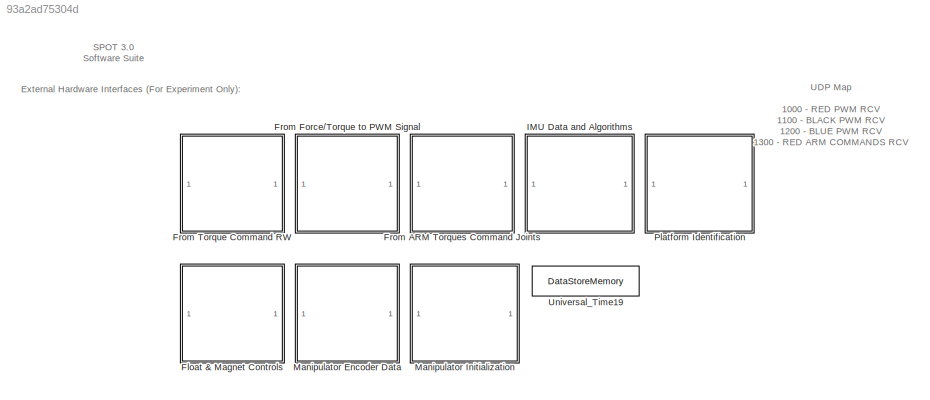
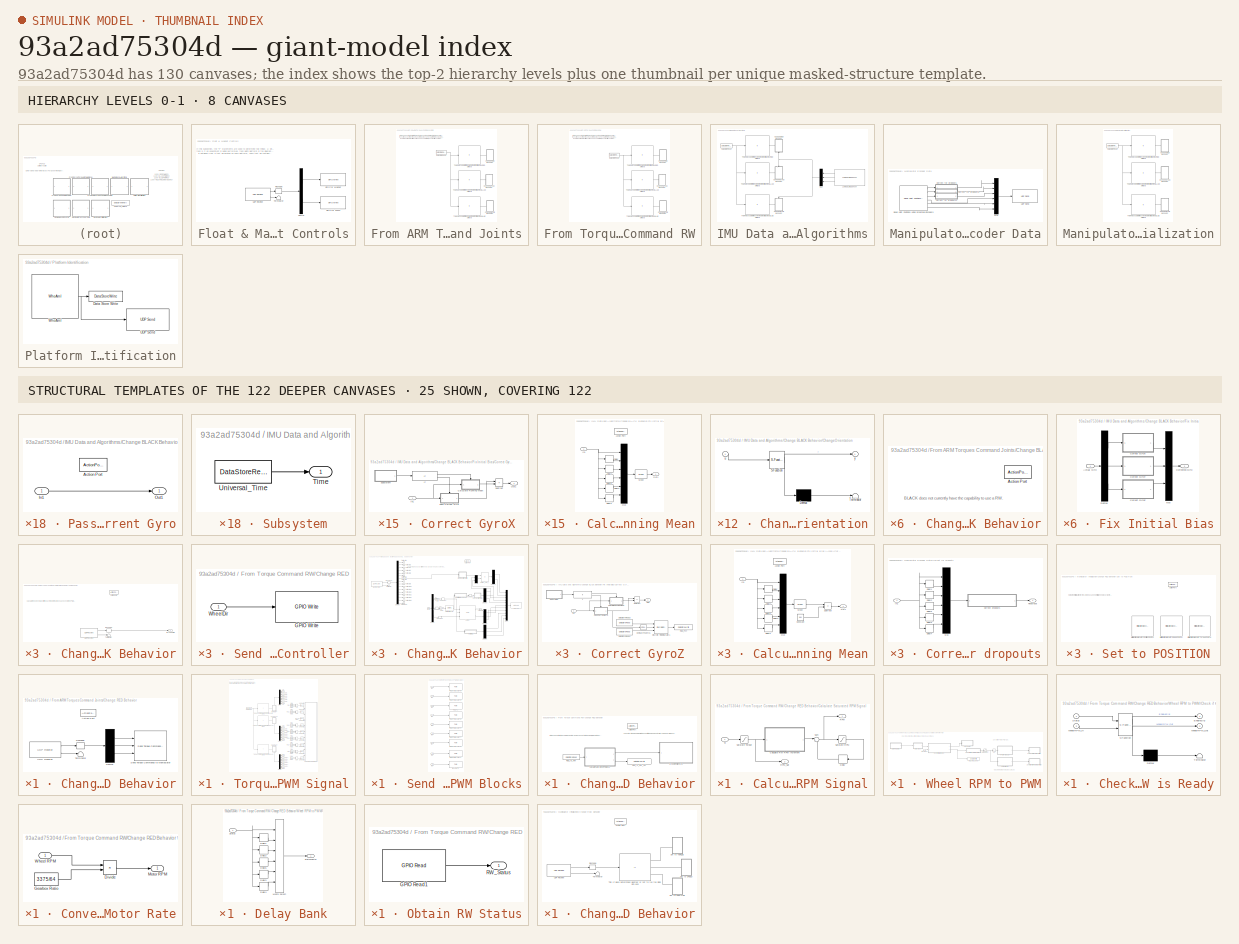
[diagram: thumbnail index - top-2 hierarchy levels (8 canvases) + 25 structural-template representatives of the remaining 122 canvases]
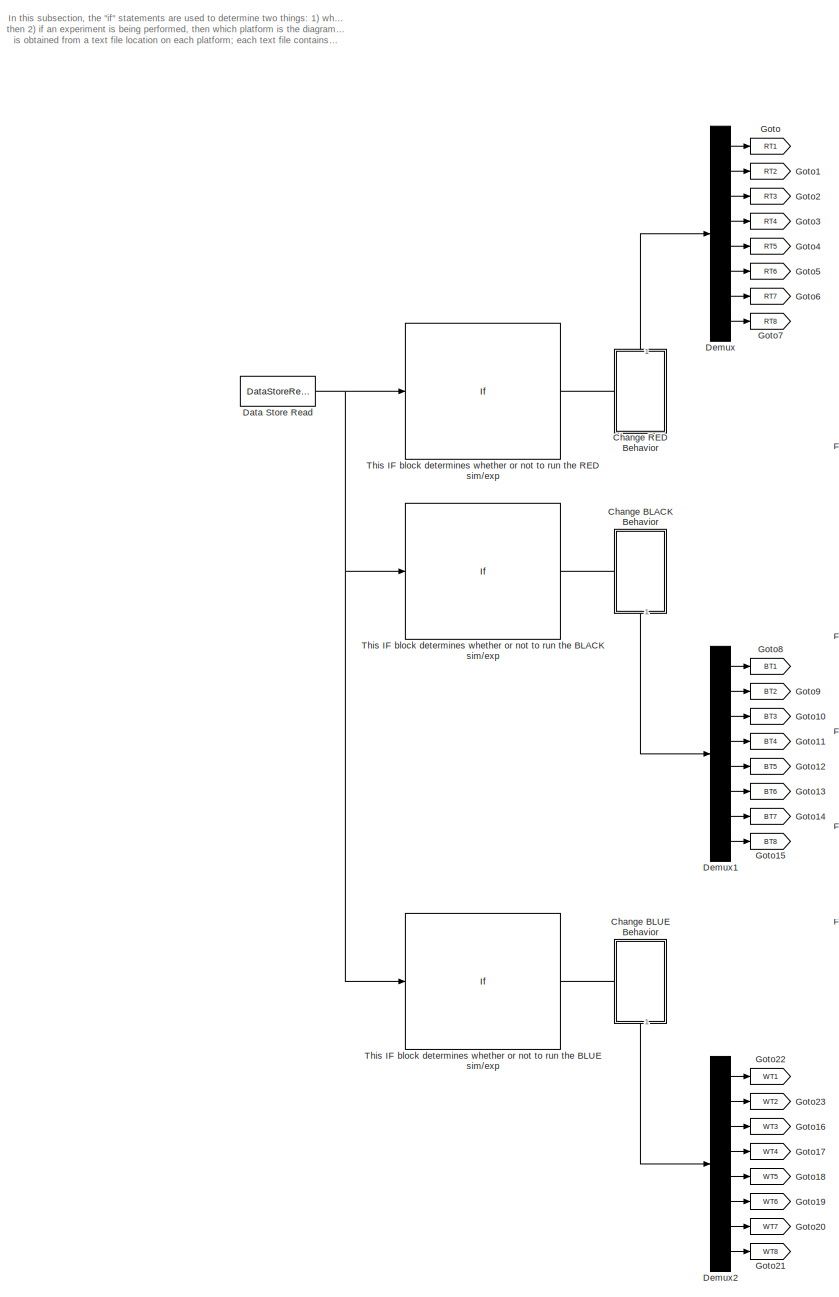
[diagram: From Force/Torque to PWM Signal - part 1/2, left side, full height]
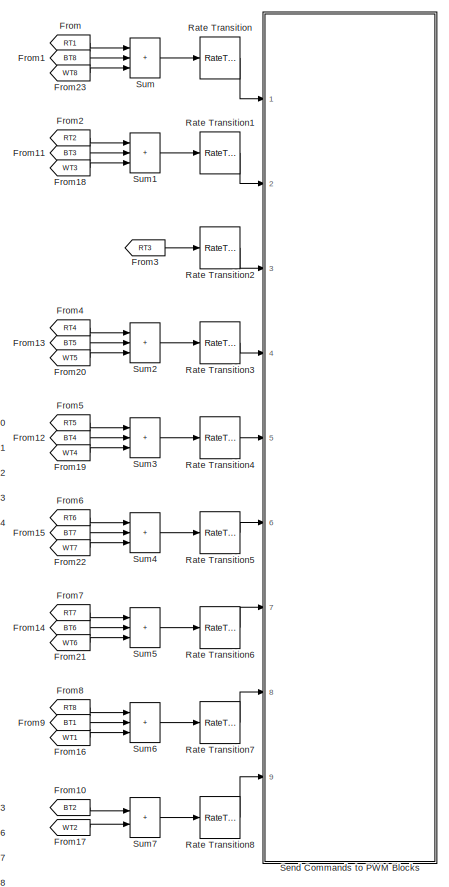
[diagram: From Force/Torque to PWM Signal - part 2/2, middle right region]
MODEL slx_93a2ad75304d
KIND model
CONFIG AbsTol = auto
CONFIG EnableMultiTasking = on
CONFIG FixedStep = baseRate
CONFIG MaxStep = auto
CONFIG MinStep = auto
CONFIG RelTol = 1e-3
CONFIG SampleTimeConstraint = Unconstrained
CONFIG SolverName = FixedStepAuto
CONFIG StartTime = 0.0
CONFIG StopTime = inf
BLOCK [SubSystem] Float & Magnet Controls
  Ports = []
  RequestExecContextInheritance = off
BLOCK [Demux] Float & Magnet Controls/Demux
  Outputs = 2
  Ports = [1, 2]
BLOCK [Reference] Float & Magnet Controls/GPIO for Magnet  REF=embedlinuxBasiclib/GPIO Write
  Ports = [1]
  SourceBlock = embedlinuxBasiclib/GPIO Write
  SourceProductBaseCode = SC_BEAGLEBONE_BLUE,EMBEDDEDLINUX,NVIDIA,RASPPIIO
  SourceType = GPIO Write
BLOCK [Reference] Float & Magnet Controls/GPIO for Pucks  REF=embedlinuxBasiclib/GPIO Write
  Ports = [1]
  SourceBlock = embedlinuxBasiclib/GPIO Write
  SourceProductBaseCode = SC_BEAGLEBONE_BLUE,EMBEDDEDLINUX,NVIDIA,RASPPIIO
  SourceType = GPIO Write
BLOCK [Reshape] Float & Magnet Controls/Reshape
  OutputDimensionality = Customize
  OutputDimensions = [2,1]
  Ports = [1, 1]
BLOCK [Terminator] Float & Magnet Controls/Terminator
BLOCK [Reference] Float & Magnet Controls/UDP Receive  REF=raspberrypiNetworklib/UDP Receive
  Ports = [0, 2]
  SourceBlock = raspberrypiNetworklib/UDP Receive
  SourceProductBaseCode = RASPPI
  SourceType = UDP Receive
BLOCK [SubSystem] From ARM Torques Command Joints
  Ports = []
  RequestExecContextInheritance = off
BLOCK [SubSystem] From ARM Torques Command Joints/Change BLACK Behavior
  NameLocation = right
  Ports = [0, 0, 0, 0, 0, 0, 0, 1]
  RequestExecContextInheritance = off
  TreatAsAtomicUnit = on
BLOCK [ActionPort] From ARM Torques Command Joints/Change BLACK Behavior/Action Port
  ActionPortLabel = if(u1 == 2 )
BLOCK [SubSystem] From ARM Torques Command Joints/Change BLUE Behavior
  NameLocation = right
  Ports = [0, 0, 0, 0, 0, 0, 0, 1]
  RequestExecContextInheritance = off
  TreatAsAtomicUnit = on
BLOCK [ActionPort] From ARM Torques Command Joints/Change BLUE Behavior/Action Port
  ActionPortLabel = if(u1 == 3 )
BLOCK [SubSystem] From ARM Torques Command Joints/Change RED Behavior
  NameLocation = right
  Ports = [0, 0, 0, 0, 0, 0, 0, 1]
  RequestExecContextInheritance = off
  TreatAsAtomicUnit = on
BLOCK [ActionPort] From ARM Torques Command Joints/Change RED Behavior/Action Port
  ActionPortLabel = if(u1 == 1 )
BLOCK [Demux] From ARM Torques Command Joints/Change RED Behavior/Demux
  Outputs = 3
  Ports = [1, 3]
BLOCK [Reshape] From ARM Torques Command Joints/Change RED Behavior/Reshape
  OutputDimensionality = Customize
  OutputDimensions = [3,1]
  Ports = [1, 1]
BLOCK [Reference] From ARM Torques Command Joints/Change RED Behavior/Send Torque Commands to Manipulator  REF=MainLibrary/Dynamixel Functions/Send Torque Commands
to Manipulator
  Ports = [3]
  SourceBlock = MainLibrary/Dynamixel Functions/Send Torque Commands\nto Manipulator
  SourceProductName = SPOT Custom Library
  SourceType = MoveArm_Torque
BLOCK [Terminator] From ARM Torques Command Joints/Change RED Behavior/Terminator
BLOCK [Reference] From ARM Torques Command Joints/Change RED Behavior/UDP Receive  REF=embedlinuxNetworklib/UDP Receive
  Ports = [0, 2]
  SourceBlock = embedlinuxNetworklib/UDP Receive
  SourceProductBaseCode = SC_BEAGLEBONE_BLUE,EMBEDDEDLINUX,NVIDIA,RASPPIIO
  SourceType = UDP Receive
BLOCK [DataStoreRead] From ARM Torques Command Joints/Data Store Read
  DataStoreName = WhoAmI
  IndexOptions = Index vector (dialog)
  Indices = 1
  OutputSizes = 1
  Ports = [0, 1]
BLOCK [If] From ARM Torques Command Joints/This IF block determines whether or not to run the BLACK sim//exp
  IfExpression = u1 == 2
  Ports = [1, 1]
  ShowElse = off
BLOCK [If] From ARM Torques Command Joints/This IF block determines whether or not to run the BLUE sim//exp
  IfExpression = u1 == 3
  Ports = [1, 1]
  ShowElse = off
BLOCK [If] From ARM Torques Command Joints/This IF block determines whether or not to run the RED sim//exp 
  IfExpression = u1 == 1
  Ports = [1, 1]
  ShowElse = off
BLOCK [SubSystem] From Force//Torque to PWM Signal
  Ports = []
  RequestExecContextInheritance = off
  SystemSampleTime = 0.1
BLOCK [SubSystem] From Force//Torque to PWM Signal/Change BLACK Behavior
  NameLocation = right
  Ports = [0, 1, 0, 0, 0, 0, 0, 1]
  RequestExecContextInheritance = off
  TreatAsAtomicUnit = on
BLOCK [ActionPort] From Force//Torque to PWM Signal/Change BLACK Behavior/Action Port
  ActionPortLabel = if(u1 == 2 )
BLOCK [Outport] From Force//Torque to PWM Signal/Change BLACK Behavior/BLACK PWM
  VectorParamsAs1DForOutWhenUnconnected = off
BLOCK [Reshape] From Force//Torque to PWM Signal/Change BLACK Behavior/Reshape
  OutputDimensionality = Customize
  Ports = [1, 1]
BLOCK [Terminator] From Force//Torque to PWM Signal/Change BLACK Behavior/Terminator
BLOCK [Reference] From Force//Torque to PWM Signal/Change BLACK Behavior/UDP Receive  REF=embedlinuxNetworklib/UDP Receive
  Ports = [0, 2]
  SourceBlock = embedlinuxNetworklib/UDP Receive
  SourceProductBaseCode = SC_BEAGLEBONE_BLUE,EMBEDDEDLINUX,NVIDIA,RASPPIIO
  SourceType = UDP Receive
BLOCK [SubSystem] From Force//Torque to PWM Signal/Change BLUE Behavior
  NameLocation = right
  Ports = [0, 1, 0, 0, 0, 0, 0, 1]
  RequestExecContextInheritance = off
  TreatAsAtomicUnit = on
BLOCK [ActionPort] From Force//Torque to PWM Signal/Change BLUE Behavior/Action Port
  ActionPortLabel = if(u1 == 3 )
BLOCK [Outport] From Force//Torque to PWM Signal/Change BLUE Behavior/BLUE PWM
  VectorParamsAs1DForOutWhenUnconnected = off
BLOCK [Reshape] From Force//Torque to PWM Signal/Change BLUE Behavior/Reshape
  OutputDimensionality = Customize
  Ports = [1, 1]
BLOCK [Terminator] From Force//Torque to PWM Signal/Change BLUE Behavior/Terminator
BLOCK [Reference] From Force//Torque to PWM Signal/Change BLUE Behavior/UDP Receive  REF=embedlinuxNetworklib/UDP Receive
  Ports = [0, 2]
  SourceBlock = embedlinuxNetworklib/UDP Receive
  SourceProductBaseCode = SC_BEAGLEBONE_BLUE,EMBEDDEDLINUX,NVIDIA,RASPPIIO
  SourceType = UDP Receive
BLOCK [SubSystem] From Force//Torque to PWM Signal/Change RED Behavior
  NameLocation = right
  Ports = [0, 1, 0, 0, 0, 0, 0, 1]
  RequestExecContextInheritance = off
  TreatAsAtomicUnit = on
BLOCK [ActionPort] From Force//Torque to PWM Signal/Change RED Behavior/Action Port
  ActionPortLabel = if(u1 == 1 )
BLOCK [Outport] From Force//Torque to PWM Signal/Change RED Behavior/RED PWM
  VectorParamsAs1DForOutWhenUnconnected = off
BLOCK [Reshape] From Force//Torque to PWM Signal/Change RED Behavior/Reshape
  OutputDimensionality = Customize
  Ports = [1, 1]
BLOCK [Terminator] From Force//Torque to PWM Signal/Change RED Behavior/Terminator
BLOCK [Reference] From Force//Torque to PWM Signal/Change RED Behavior/UDP Receive  REF=embedlinuxNetworklib/UDP Receive
  Ports = [0, 2]
  SourceBlock = embedlinuxNetworklib/UDP Receive
  SourceProductBaseCode = SC_BEAGLEBONE_BLUE,EMBEDDEDLINUX,NVIDIA,RASPPIIO
  SourceType = UDP Receive
BLOCK [DataStoreRead] From Force//Torque to PWM Signal/Data Store Read
  DataStoreName = WhoAmI
  IndexOptions = Index vector (dialog)
  Indices = 1
  OutputSizes = 1
  Ports = [0, 1]
BLOCK [Demux] From Force//Torque to PWM Signal/Demux
  Outputs = 8
  Ports = [1, 8]
BLOCK [Demux] From Force//Torque to PWM Signal/Demux1
  Outputs = 8
  Ports = [1, 8]
BLOCK [Demux] From Force//Torque to PWM Signal/Demux2
  Outputs = 8
  Ports = [1, 8]
BLOCK [From] From Force//Torque to PWM Signal/From
  GotoTag = RT1
BLOCK [From] From Force//Torque to PWM Signal/From1
  GotoTag = BT8
BLOCK [From] From Force//Torque to PWM Signal/From10
  GotoTag = BT2
BLOCK [From] From Force//Torque to PWM Signal/From11
  GotoTag = BT3
BLOCK [From] From Force//Torque to PWM Signal/From12
  GotoTag = BT4
BLOCK [From] From Force//Torque to PWM Signal/From13
  GotoTag = BT5
BLOCK [From] From Force//Torque to PWM Signal/From14
  GotoTag = BT6
BLOCK [From] From Force//Torque to PWM Signal/From15
  GotoTag = BT7
BLOCK [From] From Force//Torque to PWM Signal/From16
  GotoTag = WT1
BLOCK [From] From Force//Torque to PWM Signal/From17
  GotoTag = WT2
BLOCK [From] From Force//Torque to PWM Signal/From18
  GotoTag = WT3
BLOCK [From] From Force//Torque to PWM Signal/From19
  GotoTag = WT4
BLOCK [From] From Force//Torque to PWM Signal/From2
  GotoTag = RT2
BLOCK [From] From Force//Torque to PWM Signal/From20
  GotoTag = WT5
BLOCK [From] From Force//Torque to PWM Signal/From21
  GotoTag = WT6
BLOCK [From] From Force//Torque to PWM Signal/From22
  GotoTag = WT7
BLOCK [From] From Force//Torque to PWM Signal/From23
  GotoTag = WT8
BLOCK [From] From Force//Torque to PWM Signal/From3
  GotoTag = RT3
BLOCK [From] From Force//Torque to PWM Signal/From4
  GotoTag = RT4
BLOCK [From] From Force//Torque to PWM Signal/From5
  GotoTag = RT5
BLOCK [From] From Force//Torque to PWM Signal/From6
  GotoTag = RT6
BLOCK [From] From Force//Torque to PWM Signal/From7
  GotoTag = RT7
BLOCK [From] From Force//Torque to PWM Signal/From8
  GotoTag = RT8
BLOCK [From] From Force//Torque to PWM Signal/From9
  GotoTag = BT1
BLOCK [Goto] From Force//Torque to PWM Signal/Goto
  GotoTag = RT1
BLOCK [Goto] From Force//Torque to PWM Signal/Goto1
  GotoTag = RT2
BLOCK [Goto] From Force//Torque to PWM Signal/Goto10
  GotoTag = BT3
BLOCK [Goto] From Force//Torque to PWM Signal/Goto11
  GotoTag = BT4
BLOCK [Goto] From Force//Torque to PWM Signal/Goto12
  GotoTag = BT5
BLOCK [Goto] From Force//Torque to PWM Signal/Goto13
  GotoTag = BT6
BLOCK [Goto] From Force//Torque to PWM Signal/Goto14
  GotoTag = BT7
BLOCK [Goto] From Force//Torque to PWM Signal/Goto15
  GotoTag = BT8
BLOCK [Goto] From Force//Torque to PWM Signal/Goto16
  GotoTag = WT3
BLOCK [Goto] From Force//Torque to PWM Signal/Goto17
  GotoTag = WT4
BLOCK [Goto] From Force//Torque to PWM Signal/Goto18
  GotoTag = WT5
BLOCK [Goto] From Force//Torque to PWM Signal/Goto19
  GotoTag = WT6
BLOCK [Goto] From Force//Torque to PWM Signal/Goto2
  GotoTag = RT3
BLOCK [Goto] From Force//Torque to PWM Signal/Goto20
  GotoTag = WT7
BLOCK [Goto] From Force//Torque to PWM Signal/Goto21
  GotoTag = WT8
BLOCK [Goto] From Force//Torque to PWM Signal/Goto22
  GotoTag = WT1
BLOCK [Goto] From Force//Torque to PWM Signal/Goto23
  GotoTag = WT2
BLOCK [Goto] From Force//Torque to PWM Signal/Goto3
  GotoTag = RT4
BLOCK [Goto] From Force//Torque to PWM Signal/Goto4
  GotoTag = RT5
BLOCK [Goto] From Force//Torque to PWM Signal/Goto5
  GotoTag = RT6
BLOCK [Goto] From Force//Torque to PWM Signal/Goto6
  GotoTag = RT7
BLOCK [Goto] From Force//Torque to PWM Signal/Goto7
  GotoTag = RT8
BLOCK [Goto] From Force//Torque to PWM Signal/Goto8
  GotoTag = BT1
BLOCK [Goto] From Force//Torque to PWM Signal/Goto9
  GotoTag = BT2
BLOCK [RateTransition] From Force//Torque to PWM Signal/Rate Transition
  OutPortSampleTime = 0.1
BLOCK [RateTransition] From Force//Torque to PWM Signal/Rate Transition1
  OutPortSampleTime = 0.1
BLOCK [RateTransition] From Force//Torque to PWM Signal/Rate Transition2
  OutPortSampleTime = 0.1
BLOCK [RateTransition] From Force//Torque to PWM Signal/Rate Transition3
  OutPortSampleTime = 0.1
BLOCK [RateTransition] From Force//Torque to PWM Signal/Rate Transition4
  OutPortSampleTime = 0.1
BLOCK [RateTransition] From Force//Torque to PWM Signal/Rate Transition5
  OutPortSampleTime = 0.1
BLOCK [RateTransition] From Force//Torque to PWM Signal/Rate Transition6
  OutPortSampleTime = 0.1
BLOCK [RateTransition] From Force//Torque to PWM Signal/Rate Transition7
  OutPortSampleTime = 0.1
BLOCK [RateTransition] From Force//Torque to PWM Signal/Rate Transition8
  OutPortSampleTime = 0.1
BLOCK [SubSystem] From Force//Torque to PWM Signal/Send Commands to PWM Blocks
  Ports = [9]
  RequestExecContextInheritance = off
  SystemSampleTime = 0.1
  TreatAsAtomicUnit = on
BLOCK [Reference] From Force//Torque to PWM Signal/Send Commands to PWM Blocks/BLACK T2  REF=raspberrypiBasiclib/PWM
  Ports = [1]
  SourceBlock = raspberrypiBasiclib/PWM
  SourceProductBaseCode = RASPPI
  SourceType = raspi.internal.PWMBlock
BLOCK [Inport] From Force//Torque to PWM Signal/Send Commands to PWM Blocks/In1
BLOCK [Inport] From Force//Torque to PWM Signal/Send Commands to PWM Blocks/In2
  Port = 2
BLOCK [Inport] From Force//Torque to PWM Signal/Send Commands to PWM Blocks/In3
  Port = 3
BLOCK [Inport] From Force//Torque to PWM Signal/Send Commands to PWM Blocks/In4
  Port = 4
BLOCK [Inport] From Force//Torque to PWM Signal/Send Commands to PWM Blocks/In5
  Port = 5
BLOCK [Inport] From Force//Torque to PWM Signal/Send Commands to PWM Blocks/In6
  Port = 6
BLOCK [Inport] From Force//Torque to PWM Signal/Send Commands to PWM Blocks/In7
  Port = 7
BLOCK [Inport] From Force//Torque to PWM Signal/Send Commands to PWM Blocks/In8
  Port = 8
BLOCK [Inport] From Force//Torque to PWM Signal/Send Commands to PWM Blocks/In9
  Port = 9
BLOCK [Reference] From Force//Torque to PWM Signal/Send Commands to PWM Blocks/RED T1 - BLACK T8  REF=raspberrypiBasiclib/PWM
  Ports = [1]
  SourceBlock = raspberrypiBasiclib/PWM
  SourceProductBaseCode = RASPPI
  SourceType = raspi.internal.PWMBlock
BLOCK [Reference] From Force//Torque to PWM Signal/Send Commands to PWM Blocks/RED T2 - BLACK T3  REF=raspberrypiBasiclib/PWM
  Ports = [1]
  SourceBlock = raspberrypiBasiclib/PWM
  SourceProductBaseCode = RASPPI
  SourceType = raspi.internal.PWMBlock
BLOCK [Reference] From Force//Torque to PWM Signal/Send Commands to PWM Blocks/RED T3  REF=raspberrypiBasiclib/PWM
  Ports = [1]
  SourceBlock = raspberrypiBasiclib/PWM
  SourceProductBaseCode = RASPPI
  SourceType = raspi.internal.PWMBlock
BLOCK [Reference] From Force//Torque to PWM Signal/Send Commands to PWM Blocks/RED T4 - BLACK T5  REF=raspberrypiBasiclib/PWM
  Ports = [1]
  SourceBlock = raspberrypiBasiclib/PWM
  SourceProductBaseCode = RASPPI
  SourceType = raspi.internal.PWMBlock
BLOCK [Reference] From Force//Torque to PWM Signal/Send Commands to PWM Blocks/RED T5 - BLACK T4  REF=raspberrypiBasiclib/PWM
  Ports = [1]
  SourceBlock = raspberrypiBasiclib/PWM
  SourceProductBaseCode = RASPPI
  SourceType = raspi.internal.PWMBlock
BLOCK [Reference] From Force//Torque to PWM Signal/Send Commands to PWM Blocks/RED T6 - BLACK T7  REF=raspberrypiBasiclib/PWM
  Ports = [1]
  SourceBlock = raspberrypiBasiclib/PWM
  SourceProductBaseCode = RASPPI
  SourceType = raspi.internal.PWMBlock
BLOCK [Reference] From Force//Torque to PWM Signal/Send Commands to PWM Blocks/RED T7 - BLACK T6  REF=raspberrypiBasiclib/PWM
  Ports = [1]
  SourceBlock = raspberrypiBasiclib/PWM
  SourceProductBaseCode = RASPPI
  SourceType = raspi.internal.PWMBlock
BLOCK [Reference] From Force//Torque to PWM Signal/Send Commands to PWM Blocks/RED T8 - BLACK T1  REF=raspberrypiBasiclib/PWM
  Ports = [1]
  SourceBlock = raspberrypiBasiclib/PWM
  SourceProductBaseCode = RASPPI
  SourceType = raspi.internal.PWMBlock
BLOCK [Sum] From Force//Torque to PWM Signal/Sum
  IconShape = rectangular
  Inputs = +++
  Ports = [3, 1]
BLOCK [Sum] From Force//Torque to PWM Signal/Sum1
  IconShape = rectangular
  Inputs = +++
  Ports = [3, 1]
BLOCK [Sum] From Force//Torque to PWM Signal/Sum2
  IconShape = rectangular
  Inputs = +++
  Ports = [3, 1]
BLOCK [Sum] From Force//Torque to PWM Signal/Sum3
  IconShape = rectangular
  Inputs = +++
  Ports = [3, 1]
BLOCK [Sum] From Force//Torque to PWM Signal/Sum4
  IconShape = rectangular
  Inputs = +++
  Ports = [3, 1]
BLOCK [Sum] From Force//Torque to PWM Signal/Sum5
  IconShape = rectangular
  Inputs = +++
  Ports = [3, 1]
BLOCK [Sum] From Force//Torque to PWM Signal/Sum6
  IconShape = rectangular
  Inputs = +++
  Ports = [3, 1]
BLOCK [Sum] From Force//Torque to PWM Signal/Sum7
  IconShape = rectangular
  Ports = [2, 1]
BLOCK [If] From Force//Torque to PWM Signal/This IF block determines whether or not to run the BLACK sim//exp
  IfExpression = u1 == 2
  Ports = [1, 1]
  ShowElse = off
BLOCK [If] From Force//Torque to PWM Signal/This IF block determines whether or not to run the BLUE sim//exp
  IfExpression = u1 == 3
  Ports = [1, 1]
  ShowElse = off
BLOCK [If] From Force//Torque to PWM Signal/This IF block determines whether or not to run the RED sim//exp 
  IfExpression = u1 == 1
  Ports = [1, 1]
  ShowElse = off
BLOCK [SubSystem] From Torque Command RW
  Commented = on
  Ports = []
  RequestExecContextInheritance = off
BLOCK [SubSystem] From Torque Command RW/Change BLACK Behavior
  NameLocation = right
  Ports = [0, 0, 0, 0, 0, 0, 0, 1]
  RequestExecContextInheritance = off
  TreatAsAtomicUnit = on
BLOCK [ActionPort] From Torque Command RW/Change BLACK Behavior/Action Port
  ActionPortLabel = if(u1 == 2 )
BLOCK [SubSystem] From Torque Command RW/Change BLUE Behavior
  NameLocation = right
  Ports = [0, 0, 0, 0, 0, 0, 0, 1]
  RequestExecContextInheritance = off
  TreatAsAtomicUnit = on
BLOCK [ActionPort] From Torque Command RW/Change BLUE Behavior/Action Port
  ActionPortLabel = if(u1 == 3 )
BLOCK [SubSystem] From Torque Command RW/Change RED Behavior
  NameLocation = right
  Ports = [0, 0, 0, 0, 0, 0, 0, 1]
  RequestExecContextInheritance = off
  TreatAsAtomicUnit = on
BLOCK [ActionPort] From Torque Command RW/Change RED Behavior/Action Port
  ActionPortLabel = if(u1 == 1 )
BLOCK [SubSystem] From Torque Command RW/Change RED Behavior/Calculate Saturated RPM Signal
  Ports = [1, 2]
  RequestExecContextInheritance = off
BLOCK [SubSystem] From Torque Command RW/Change RED Behavior/Calculate Saturated RPM Signal/Calculate RW RPM Increment
  ErrorFcn = Stateflow.Translate.translate
  PermitHierarchicalResolution = ExplicitOnly
  Ports = [1, 1]
  RequestExecContextInheritance = off
  SFBlockType = MATLAB Function
  TreatAsAtomicUnit = on
BLOCK [Demux] From Torque Command RW/Change RED Behavior/Calculate Saturated RPM Signal/Calculate RW RPM Increment/ Demux 
  Outputs = 1
  Ports = [1, 1]
BLOCK [S-Function] From Torque Command RW/Change RED Behavior/Calculate Saturated RPM Signal/Calculate RW RPM Increment/ SFunction 
  EnableBusSupport = on
  FunctionName = sf_sfun
  PortCounts = [1 2]
  Ports = [1, 2]
  SFcnIsStateOwnerBlock = off
  SFunctionDeploymentMode = off
  Tag = Stateflow S-Function 68
BLOCK [Terminator] From Torque Command RW/Change RED Behavior/Calculate Saturated RPM Signal/Calculate RW RPM Increment/ Terminator 
BLOCK [Inport] From Torque Command RW/Change RED Behavior/Calculate Saturated RPM Signal/Calculate RW RPM Increment/Tz_Sat
BLOCK [Outport] From Torque Command RW/Change RED Behavior/Calculate Saturated RPM Signal/Calculate RW RPM Increment/dRPM_RW
  VectorParamsAs1DForOutWhenUnconnected = off
BLOCK [Delay] From Torque Command RW/Change RED Behavior/Calculate Saturated RPM Signal/Delay
  DelayLength = 1
  InputPortMap = u0
  Ports = [1, 1]
BLOCK [Outport] From Torque Command RW/Change RED Behavior/Calculate Saturated RPM Signal/RPM
  VectorParamsAs1DForOutWhenUnconnected = off
BLOCK [Outport] From Torque Command RW/Change RED Behavior/Calculate Saturated RPM Signal/RPM_Sat
  Port = 2
  VectorParamsAs1DForOutWhenUnconnected = off
BLOCK [Saturate] From Torque Command RW/Change RED Behavior/Calculate Saturated RPM Signal/Saturate RPM
  LowerLimit = -(7000*64/3375)
  UpperLimit = (7000*64/3375)
BLOCK [Saturate] From Torque Command RW/Change RED Behavior/Calculate Saturated RPM Signal/Saturate Torque
  LowerLimit = -0.1
  UpperLimit = 0.1
BLOCK [Sum] From Torque Command RW/Change RED Behavior/Calculate Saturated RPM Signal/Sum
  Inputs = |++
  Ports = [2, 1]
BLOCK [Inport] From Torque Command RW/Change RED Behavior/Calculate Saturated RPM Signal/Tz
BLOCK [DataStoreRead] From Torque Command RW/Change RED Behavior/RED_Tz_RW
  DataStoreName = RED_Tz_RW
  IndexOptions = Index vector (dialog)
  Indices = 1
  OutputSizes = 1
  Ports = [0, 1]
BLOCK [DataStoreWrite] From Torque Command RW/Change RED Behavior/RED_Tz_RW_Sat
  DataStoreName = RED_Tz_RW_Sat
  IndexOptions = Index vector (dialog)
  Indices = 1
  OutputSizes = 1
  Ports = [1]
BLOCK [SubSystem] From Torque Command RW/Change RED Behavior/Wheel RPM to PWM
  Ports = [1]
  RequestExecContextInheritance = off
BLOCK [Abs] From Torque Command RW/Change RED Behavior/Wheel RPM to PWM/Abs
  SaturateOnIntegerOverflow = off
BLOCK [SubSystem] From Torque Command RW/Change RED Behavior/Wheel RPM to PWM/Check if RW is Ready
  ErrorFcn = Stateflow.Translate.translate
  PermitHierarchicalResolution = ExplicitOnly
  Ports = [2, 2]
  RequestExecContextInheritance = off
  SFBlockType = MATLAB Function
  TreatAsAtomicUnit = on
BLOCK [Demux] From Torque Command RW/Change RED Behavior/Wheel RPM to PWM/Check if RW is Ready/ Demux 
  Outputs = 1
  Ports = [1, 1]
BLOCK [S-Function] From Torque Command RW/Change RED Behavior/Wheel RPM to PWM/Check if RW is Ready/ SFunction 
  EnableBusSupport = on
  FunctionName = sf_sfun
  PortCounts = [2 3]
  Ports = [2, 3]
  SFcnIsStateOwnerBlock = off
  SFunctionDeploymentMode = off
  Tag = Stateflow S-Function 69
BLOCK [Terminator] From Torque Command RW/Change RED Behavior/Wheel RPM to PWM/Check if RW is Ready/ Terminator 
BLOCK [Outport] From Torque Command RW/Change RED Behavior/Wheel RPM to PWM/Check if RW is Ready/EnableSig
  VectorParamsAs1DForOutWhenUnconnected = off
BLOCK [Inport] From Torque Command RW/Change RED Behavior/Wheel RPM to PWM/Check if RW is Ready/Status
BLOCK [Inport] From Torque Command RW/Change RED Behavior/Wheel RPM to PWM/Check if RW is Ready/WheelRPM_In
  Port = 2
BLOCK [Outport] From Torque Command RW/Change RED Behavior/Wheel RPM to PWM/Check if RW is Ready/WheelRPM_Out
  Port = 2
  VectorParamsAs1DForOutWhenUnconnected = off
BLOCK [SubSystem] From Torque Command RW/Change RED Behavior/Wheel RPM to PWM/Convert Wheel Rate to Motor Rate
  Ports = [1, 1]
  RequestExecContextInheritance = off
BLOCK [Product] From Torque Command RW/Change RED Behavior/Wheel RPM to PWM/Convert Wheel Rate to Motor Rate/Divide
  Inputs = **
  Ports = [2, 1]
BLOCK [Constant] From Torque Command RW/Change RED Behavior/Wheel RPM to PWM/Convert Wheel Rate to Motor Rate/Gearbox Ratio
  Value = 3375/64
BLOCK [Outport] From Torque Command RW/Change RED Behavior/Wheel RPM to PWM/Convert Wheel Rate to Motor Rate/Motor RPM
  VectorParamsAs1DForOutWhenUnconnected = off
BLOCK [Inport] From Torque Command RW/Change RED Behavior/Wheel RPM to PWM/Convert Wheel Rate to Motor Rate/Wheel RPM
BLOCK [SubSystem] From Torque Command RW/Change RED Behavior/Wheel RPM to PWM/Delay Bank
  Ports = [1, 1]
  RequestExecContextInheritance = off
BLOCK [Delay] From Torque Command RW/Change RED Behavior/Wheel RPM to PWM/Delay Bank/Delay1
  DelayLength = 1
  InitialCondition = 0
  InputPortMap = u0
  Ports = [1, 1]
BLOCK [Delay] From Torque Command RW/Change RED Behavior/Wheel RPM to PWM/Delay Bank/Delay2
  InitialCondition = 0
  InputPortMap = u0
  Ports = [1, 1]
BLOCK [Delay] From Torque Command RW/Change RED Behavior/Wheel RPM to PWM/Delay Bank/Delay3
  DelayLength = 4
  InitialCondition = 0
  InputPortMap = u0
  Ports = [1, 1]
BLOCK [Delay] From Torque Command RW/Change RED Behavior/Wheel RPM to PWM/Delay Bank/Delay4
  DelayLength = 5
  InitialCondition = 0
  InputPortMap = u0
  Ports = [1, 1]
BLOCK [Delay] From Torque Command RW/Change RED Behavior/Wheel RPM to PWM/Delay Bank/Delay5
  DelayLength = 3
  InitialCondition = 0
  InputPortMap = u0
  Ports = [1, 1]
BLOCK [MinMax] From Torque Command RW/Change RED Behavior/Wheel RPM to PWM/Delay Bank/Mostly zeros?
  Inputs = 6
  Ports = [6, 1]
BLOCK [Inport] From Torque Command RW/Change RED Behavior/Wheel RPM to PWM/Delay Bank/Status
BLOCK [Outport] From Torque Command RW/Change RED Behavior/Wheel RPM to PWM/Delay Bank/StatusVector
  VectorParamsAs1DForOutWhenUnconnected = off
BLOCK [SubSystem] From Torque Command RW/Change RED Behavior/Wheel RPM to PWM/Get RW Direction
  ErrorFcn = Stateflow.Translate.translate
  PermitHierarchicalResolution = ExplicitOnly
  Ports = [1, 1]
  RequestExecContextInheritance = off
  SFBlockType = MATLAB Function
  TreatAsAtomicUnit = on
BLOCK [Demux] From Torque Command RW/Change RED Behavior/Wheel RPM to PWM/Get RW Direction/ Demux 
  Outputs = 1
  Ports = [1, 1]
BLOCK [S-Function] From Torque Command RW/Change RED Behavior/Wheel RPM to PWM/Get RW Direction/ SFunction 
  EnableBusSupport = on
  FunctionName = sf_sfun
  PortCounts = [1 2]
  Ports = [1, 2]
  SFcnIsStateOwnerBlock = off
  SFunctionDeploymentMode = off
  Tag = Stateflow S-Function 70
BLOCK [Terminator] From Torque Command RW/Change RED Behavior/Wheel RPM to PWM/Get RW Direction/ Terminator 
BLOCK [Inport] From Torque Command RW/Change RED Behavior/Wheel RPM to PWM/Get RW Direction/MotorRPM_Sat
BLOCK [Outport] From Torque Command RW/Change RED Behavior/Wheel RPM to PWM/Get RW Direction/WheelDirection
  VectorParamsAs1DForOutWhenUnconnected = off
BLOCK [SubSystem] From Torque Command RW/Change RED Behavior/Wheel RPM to PWM/Obtain RW Status
  Ports = [0, 1]
  RequestExecContextInheritance = off
  TreatAsAtomicUnit = on
BLOCK [Reference] From Torque Command RW/Change RED Behavior/Wheel RPM to PWM/Obtain RW Status/GPIO Read1  REF=embedlinuxBasiclib/GPIO Read
  Ports = [0, 1]
  SourceBlock = embedlinuxBasiclib/GPIO Read
  SourceProductBaseCode = SC_BEAGLEBONE_BLUE,EMBEDDEDLINUX,NVIDIA,RASPPIIO
  SourceType = GPIO Read
BLOCK [Outport] From Torque Command RW/Change RED Behavior/Wheel RPM to PWM/Obtain RW Status/RW_Status
  VectorParamsAs1DForOutWhenUnconnected = off
BLOCK [DataStoreWrite] From Torque Command RW/Change RED Behavior/Wheel RPM to PWM/RED_RW_Speed
  DataStoreName = RED_dRz_RW_Sat
  IndexOptions = Index vector (dialog)
  Indices = 1
  OutputSizes = 1
  Ports = [1]
BLOCK [SubSystem] From Torque Command RW/Change RED Behavior/Wheel RPM to PWM/RPM to PWM Value
  ErrorFcn = Stateflow.Translate.translate
  PermitHierarchicalResolution = ExplicitOnly
  Ports = [1, 1]
  RequestExecContextInheritance = off
  SFBlockType = MATLAB Function
  TreatAsAtomicUnit = on
BLOCK [Demux] From Torque Command RW/Change RED Behavior/Wheel RPM to PWM/RPM to PWM Value/ Demux 
  Outputs = 1
  Ports = [1, 1]
BLOCK [S-Function] From Torque Command RW/Change RED Behavior/Wheel RPM to PWM/RPM to PWM Value/ SFunction 
  EnableBusSupport = on
  FunctionName = sf_sfun
  PortCounts = [1 2]
  Ports = [1, 2]
  SFcnIsStateOwnerBlock = off
  SFunctionDeploymentMode = off
  Tag = Stateflow S-Function 71
BLOCK [Terminator] From Torque Command RW/Change RED Behavior/Wheel RPM to PWM/RPM to PWM Value/ Terminator 
BLOCK [Outport] From Torque Command RW/Change RED Behavior/Wheel RPM to PWM/RPM to PWM Value/MotorPWM
  VectorParamsAs1DForOutWhenUnconnected = off
BLOCK [Inport] From Torque Command RW/Change RED Behavior/Wheel RPM to PWM/RPM to PWM Value/MotorRPM_Sat
BLOCK [Saturate] From Torque Command RW/Change RED Behavior/Wheel RPM to PWM/Saturate Motor
  LowerLimit = -7000
  UpperLimit = 7000
BLOCK [SubSystem] From Torque Command RW/Change RED Behavior/Wheel RPM to PWM/Send Direction to Motor Controller
  Ports = [1]
  RequestExecContextInheritance = off
  TreatAsAtomicUnit = on
BLOCK [Reference] From Torque Command RW/Change RED Behavior/Wheel RPM to PWM/Send Direction to Motor Controller/GPIO Write  REF=embedlinuxBasiclib/GPIO Write
  Ports = [1]
  SourceBlock = embedlinuxBasiclib/GPIO Write
  SourceProductBaseCode = SC_BEAGLEBONE_BLUE,EMBEDDEDLINUX,NVIDIA,RASPPIIO
  SourceType = GPIO Write
BLOCK [Inport] From Torque Command RW/Change RED Behavior/Wheel RPM to PWM/Send Direction to Motor Controller/WheelDir
BLOCK [SubSystem] From Torque Command RW/Change RED Behavior/Wheel RPM to PWM/Send PWM to Motor Controller
  Ports = [1]
  RequestExecContextInheritance = off
  TreatAsAtomicUnit = on
BLOCK [Inport] From Torque Command RW/Change RED Behavior/Wheel RPM to PWM/Send PWM to Motor Controller/MotorPWM
BLOCK [Reference] From Torque Command RW/Change RED Behavior/Wheel RPM to PWM/Send PWM to Motor Controller/PWM1  REF=raspberrypiBasiclib/PWM
  Ports = [1]
  SourceBlock = raspberrypiBasiclib/PWM
  SourceProductBaseCode = RASPPI
  SourceType = raspi.internal.PWMBlock
BLOCK [SubSystem] From Torque Command RW/Change RED Behavior/Wheel RPM to PWM/Turn on Motor
  Ports = [1]
  RequestExecContextInheritance = off
  TreatAsAtomicUnit = on
BLOCK [Inport] From Torque Command RW/Change RED Behavior/Wheel RPM to PWM/Turn on Motor/EnableSig
BLOCK [Reference] From Torque Command RW/Change RED Behavior/Wheel RPM to PWM/Turn on Motor/GPIO Write1  REF=embedlinuxBasiclib/GPIO Write
  Ports = [1]
  SourceBlock = embedlinuxBasiclib/GPIO Write
  SourceProductBaseCode = SC_BEAGLEBONE_BLUE,EMBEDDEDLINUX,NVIDIA,RASPPIIO
  SourceType = GPIO Write
BLOCK [Inport] From Torque Command RW/Change RED Behavior/Wheel RPM to PWM/WheelRPM
BLOCK [DataStoreRead] From Torque Command RW/Data Store Read
  DataStoreName = WhoAmI
  IndexOptions = Index vector (dialog)
  Indices = 1
  OutputSizes = 1
  Ports = [0, 1]
BLOCK [If] From Torque Command RW/This IF block determines whether or not to run the BLACK sim//exp
  IfExpression = u1 == 2
  Ports = [1, 1]
  ShowElse = off
BLOCK [If] From Torque Command RW/This IF block determines whether or not to run the BLUE sim//exp
  IfExpression = u1 == 3
  Ports = [1, 1]
  ShowElse = off
BLOCK [If] From Torque Command RW/This IF block determines whether or not to run the RED sim//exp 
  IfExpression = u1 == 1
  Ports = [1, 1]
  ShowElse = off
BLOCK [SubSystem] IMU Data and Algorithms
  Ports = []
  RequestExecContextInheritance = off
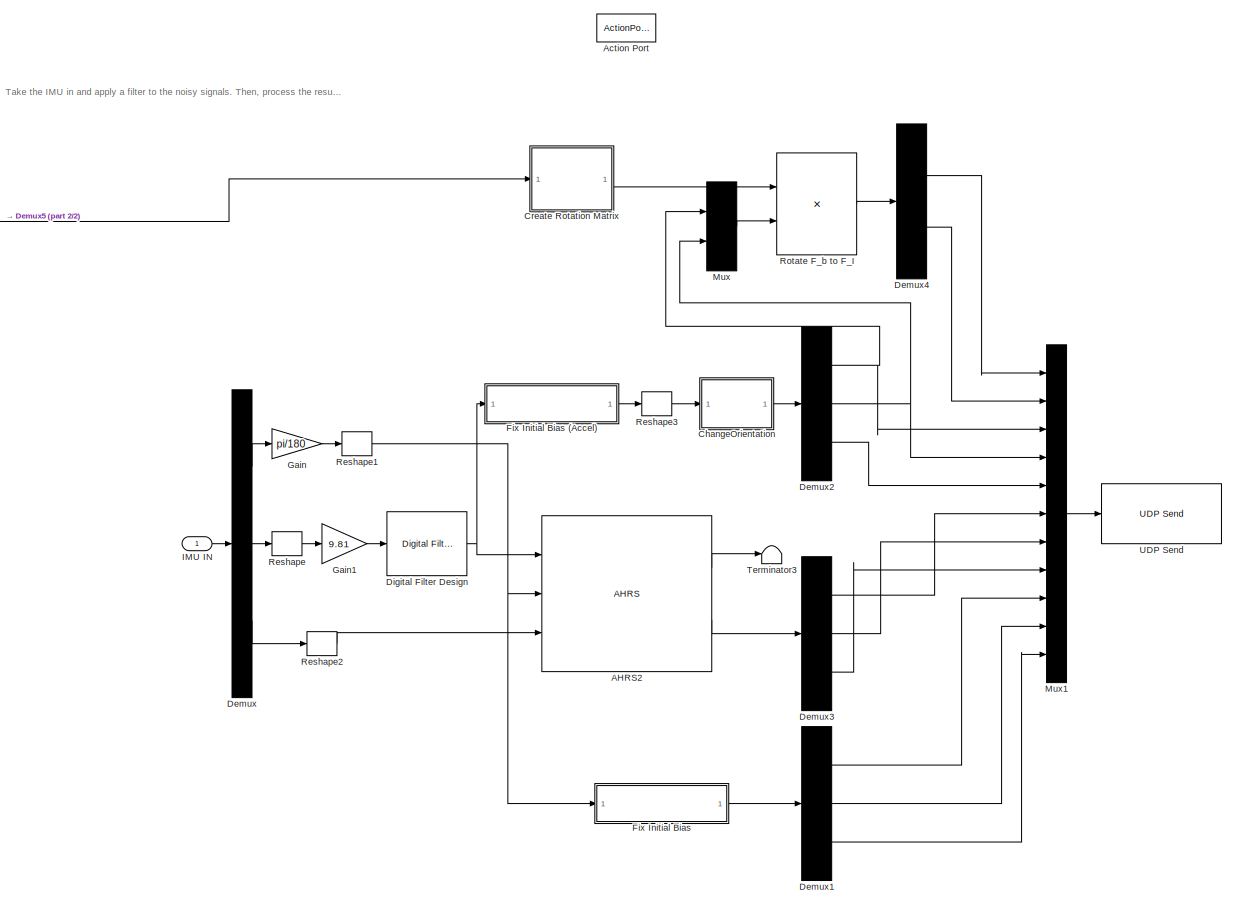
[diagram: IMU Data and Algorithms/Change BLACK Behavior - part 1/2, most of the canvas]
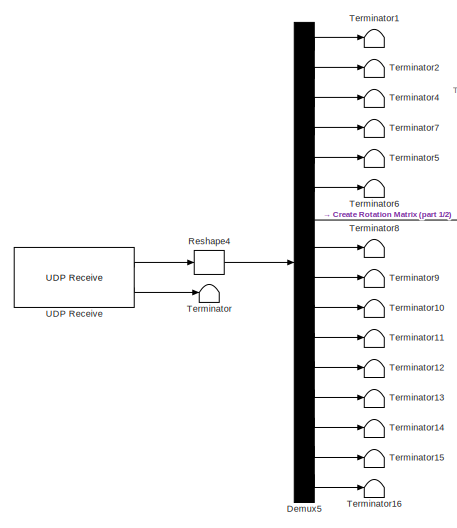
[diagram: IMU Data and Algorithms/Change BLACK Behavior - part 2/2, top left region]
BLOCK [SubSystem] IMU Data and Algorithms/Change BLACK Behavior
  NameLocation = right
  Ports = [1, 0, 0, 0, 0, 0, 0, 1]
  RequestExecContextInheritance = off
  TreatAsAtomicUnit = on
BLOCK [Reference] IMU Data and Algorithms/Change BLACK Behavior/AHRS2  REF=mspfiltlib/AHRS
  Ports = [3, 2]
  SourceBlock = mspfiltlib/AHRS
  SourceProductBaseCode = NV,TF,NV
  SourceType = fusion.simulink.ahrsfilter
BLOCK [ActionPort] IMU Data and Algorithms/Change BLACK Behavior/Action Port
  ActionPortLabel = if(u1 == 2 )
BLOCK [SubSystem] IMU Data and Algorithms/Change BLACK Behavior/ChangeOrientation
  ErrorFcn = Stateflow.Translate.translate
  PermitHierarchicalResolution = ExplicitOnly
  Ports = [1, 1]
  RequestExecContextInheritance = off
  SFBlockType = MATLAB Function
  TreatAsAtomicUnit = on
BLOCK [Demux] IMU Data and Algorithms/Change BLACK Behavior/ChangeOrientation/ Demux 
  Outputs = 1
  Ports = [1, 1]
BLOCK [S-Function] IMU Data and Algorithms/Change BLACK Behavior/ChangeOrientation/ SFunction 
  EnableBusSupport = on
  FunctionName = sf_sfun
  PortCounts = [1 2]
  Ports = [1, 2]
  SFcnIsStateOwnerBlock = off
  SFunctionDeploymentMode = off
  Tag = Stateflow S-Function 78
BLOCK [Terminator] IMU Data and Algorithms/Change BLACK Behavior/ChangeOrientation/ Terminator 
BLOCK [Inport] IMU Data and Algorithms/Change BLACK Behavior/ChangeOrientation/u
BLOCK [Outport] IMU Data and Algorithms/Change BLACK Behavior/ChangeOrientation/y
BLOCK [SubSystem] IMU Data and Algorithms/Change BLACK Behavior/Create Rotation Matrix
  ErrorFcn = Stateflow.Translate.translate
  PermitHierarchicalResolution = ExplicitOnly
  Ports = [1, 1]
  RequestExecContextInheritance = off
  SFBlockType = MATLAB Function
  TreatAsAtomicUnit = on
BLOCK [Demux] IMU Data and Algorithms/Change BLACK Behavior/Create Rotation Matrix/ Demux 
  Outputs = 1
  Ports = [1, 1]
BLOCK [S-Function] IMU Data and Algorithms/Change BLACK Behavior/Create Rotation Matrix/ SFunction 
  EnableBusSupport = on
  FunctionName = sf_sfun
  PortCounts = [1 2]
  Ports = [1, 2]
  SFcnIsStateOwnerBlock = off
  SFunctionDeploymentMode = off
  Tag = Stateflow S-Function 76
BLOCK [Terminator] IMU Data and Algorithms/Change BLACK Behavior/Create Rotation Matrix/ Terminator 
BLOCK [Outport] IMU Data and Algorithms/Change BLACK Behavior/Create Rotation Matrix/C_Ib
  VectorParamsAs1DForOutWhenUnconnected = off
BLOCK [Inport] IMU Data and Algorithms/Change BLACK Behavior/Create Rotation Matrix/Rz
BLOCK [Demux] IMU Data and Algorithms/Change BLACK Behavior/Demux
  Outputs = [3,3,3]
  Ports = [1, 3]
BLOCK [Demux] IMU Data and Algorithms/Change BLACK Behavior/Demux1
  Outputs = 3
  Ports = [1, 3]
BLOCK [Demux] IMU Data and Algorithms/Change BLACK Behavior/Demux2
  Outputs = 3
  Ports = [1, 3]
BLOCK [Demux] IMU Data and Algorithms/Change BLACK Behavior/Demux3
  Outputs = 3
  Ports = [1, 3]
BLOCK [Demux] IMU Data and Algorithms/Change BLACK Behavior/Demux4
  Outputs = 2
  Ports = [1, 2]
BLOCK [Demux] IMU Data and Algorithms/Change BLACK Behavior/Demux5
  Outputs = 16
  Ports = [1, 16]
BLOCK [Reference] IMU Data and Algorithms/Change BLACK Behavior/Digital Filter Design  REF=dsparch4/Digital
Filter Design
  Ports = [1, 1]
  SourceBlock = dsparch4/Digital\nFilter Design
  SourceProductBaseCode = DS
  SourceType = Digital Filter Design
  UserDataPersistent = on
BLOCK [SubSystem] IMU Data and Algorithms/Change BLACK Behavior/Fix Initial Bias
  Ports = [1, 1]
  RequestExecContextInheritance = off
BLOCK [SubSystem] IMU Data and Algorithms/Change BLACK Behavior/Fix Initial Bias (Accel)
  Ports = [1, 1]
  RequestExecContextInheritance = off
BLOCK [Inport] IMU Data and Algorithms/Change BLACK Behavior/Fix Initial Bias (Accel)/Actual Accel
BLOCK [SubSystem] IMU Data and Algorithms/Change BLACK Behavior/Fix Initial Bias (Accel)/Correct AccelX
  Ports = [1, 1]
  RequestExecContextInheritance = off
BLOCK [SubSystem] IMU Data and Algorithms/Change BLACK Behavior/Fix Initial Bias (Accel)/Correct AccelX/Calculate Running Mean
  Ports = [1, 1, 0, 0, 0, 0, 0, 1]
  RequestExecContextInheritance = off
  TreatAsAtomicUnit = on
BLOCK [ActionPort] IMU Data and Algorithms/Change BLACK Behavior/Fix Initial Bias (Accel)/Correct AccelX/Calculate Running Mean/Action Port
  ActionPortLabel = if(u1 < 5)
BLOCK [Delay] IMU Data and Algorithms/Change BLACK Behavior/Fix Initial Bias (Accel)/Correct AccelX/Calculate Running Mean/Delay
  DelayLength = 1
  InputPortMap = u0
  Ports = [1, 1]
BLOCK [Delay] IMU Data and Algorithms/Change BLACK Behavior/Fix Initial Bias (Accel)/Correct AccelX/Calculate Running Mean/Delay1
  InputPortMap = u0
  Ports = [1, 1]
BLOCK [Delay] IMU Data and Algorithms/Change BLACK Behavior/Fix Initial Bias (Accel)/Correct AccelX/Calculate Running Mean/Delay2
  DelayLength = 4
  InputPortMap = u0
  Ports = [1, 1]
BLOCK [Delay] IMU Data and Algorithms/Change BLACK Behavior/Fix Initial Bias (Accel)/Correct AccelX/Calculate Running Mean/Delay3
  DelayLength = 5
  InputPortMap = u0
  Ports = [1, 1]
BLOCK [Delay] IMU Data and Algorithms/Change BLACK Behavior/Fix Initial Bias (Accel)/Correct AccelX/Calculate Running Mean/Delay4
  DelayLength = 3
  InputPortMap = u0
  Ports = [1, 1]
BLOCK [Inport] IMU Data and Algorithms/Change BLACK Behavior/Fix Initial Bias (Accel)/Correct AccelX/Calculate Running Mean/In1
BLOCK [Reference] IMU Data and Algorithms/Change BLACK Behavior/Fix Initial Bias (Accel)/Correct AccelX/Calculate Running Mean/Mean  REF=dspstat3/Mean
  Ports = [1, 1]
  SourceBlock = dspstat3/Mean
  SourceProductBaseCode = DS
  SourceType = Mean
  UserDataPersistent = on
BLOCK [Mux] IMU Data and Algorithms/Change BLACK Behavior/Fix Initial Bias (Accel)/Correct AccelX/Calculate Running Mean/Mux
  DisplayOption = bar
  Inputs = 6
  Ports = [6, 1]
BLOCK [Outport] IMU Data and Algorithms/Change BLACK Behavior/Fix Initial Bias (Accel)/Correct AccelX/Calculate Running Mean/Out1
BLOCK [If] IMU Data and Algorithms/Change BLACK Behavior/Fix Initial Bias (Accel)/Correct AccelX/If
  IfExpression = u1 < 5
  Ports = [1, 2]
BLOCK [Inport] IMU Data and Algorithms/Change BLACK Behavior/Fix Initial Bias (Accel)/Correct AccelX/In1
BLOCK [Outport] IMU Data and Algorithms/Change BLACK Behavior/Fix Initial Bias (Accel)/Correct AccelX/Out1
BLOCK [SubSystem] IMU Data and Algorithms/Change BLACK Behavior/Fix Initial Bias (Accel)/Correct AccelX/Pass Current Accel
  Ports = [1, 1, 0, 0, 0, 0, 0, 1]
  RequestExecContextInheritance = off
  TreatAsAtomicUnit = on
BLOCK [ActionPort] IMU Data and Algorithms/Change BLACK Behavior/Fix Initial Bias (Accel)/Correct AccelX/Pass Current Accel/Action Port
  ActionPortLabel = else
BLOCK [Inport] IMU Data and Algorithms/Change BLACK Behavior/Fix Initial Bias (Accel)/Correct AccelX/Pass Current Accel/In1
BLOCK [Outport] IMU Data and Algorithms/Change BLACK Behavior/Fix Initial Bias (Accel)/Correct AccelX/Pass Current Accel/Out1
BLOCK [SubSystem] IMU Data and Algorithms/Change BLACK Behavior/Fix Initial Bias (Accel)/Correct AccelX/Subsystem
  Ports = [0, 1]
  RequestExecContextInheritance = off
BLOCK [Outport] IMU Data and Algorithms/Change BLACK Behavior/Fix Initial Bias (Accel)/Correct AccelX/Subsystem/Time
  VectorParamsAs1DForOutWhenUnconnected = off
BLOCK [DataStoreRead] IMU Data and Algorithms/Change BLACK Behavior/Fix Initial Bias (Accel)/Correct AccelX/Subsystem/Universal_Time
  DataStoreName = Univ_Time
  IndexOptions = Index vector (dialog)
  Indices = 1
  OutputSizes = 1
  Ports = [0, 1]
BLOCK [Sum] IMU Data and Algorithms/Change BLACK Behavior/Fix Initial Bias (Accel)/Correct AccelX/Subtract
  IconShape = rectangular
  Inputs = +-
  Ports = [2, 1]
BLOCK [SubSystem] IMU Data and Algorithms/Change BLACK Behavior/Fix Initial Bias (Accel)/Correct AccelY
  Ports = [1, 1]
  RequestExecContextInheritance = off
BLOCK [SubSystem] IMU Data and Algorithms/Change BLACK Behavior/Fix Initial Bias (Accel)/Correct AccelY/Calculate Running Mean
  Ports = [1, 1, 0, 0, 0, 0, 0, 1]
  RequestExecContextInheritance = off
  TreatAsAtomicUnit = on
BLOCK [ActionPort] IMU Data and Algorithms/Change BLACK Behavior/Fix Initial Bias (Accel)/Correct AccelY/Calculate Running Mean/Action Port
  ActionPortLabel = if(u1 < 5)
BLOCK [Delay] IMU Data and Algorithms/Change BLACK Behavior/Fix Initial Bias (Accel)/Correct AccelY/Calculate Running Mean/Delay
  DelayLength = 1
  InputPortMap = u0
  Ports = [1, 1]
BLOCK [Delay] IMU Data and Algorithms/Change BLACK Behavior/Fix Initial Bias (Accel)/Correct AccelY/Calculate Running Mean/Delay1
  InputPortMap = u0
  Ports = [1, 1]
BLOCK [Delay] IMU Data and Algorithms/Change BLACK Behavior/Fix Initial Bias (Accel)/Correct AccelY/Calculate Running Mean/Delay2
  DelayLength = 4
  InputPortMap = u0
  Ports = [1, 1]
BLOCK [Delay] IMU Data and Algorithms/Change BLACK Behavior/Fix Initial Bias (Accel)/Correct AccelY/Calculate Running Mean/Delay3
  DelayLength = 5
  InputPortMap = u0
  Ports = [1, 1]
BLOCK [Delay] IMU Data and Algorithms/Change BLACK Behavior/Fix Initial Bias (Accel)/Correct AccelY/Calculate Running Mean/Delay4
  DelayLength = 3
  InputPortMap = u0
  Ports = [1, 1]
BLOCK [Inport] IMU Data and Algorithms/Change BLACK Behavior/Fix Initial Bias (Accel)/Correct AccelY/Calculate Running Mean/In1
BLOCK [Reference] IMU Data and Algorithms/Change BLACK Behavior/Fix Initial Bias (Accel)/Correct AccelY/Calculate Running Mean/Mean  REF=dspstat3/Mean
  Ports = [1, 1]
  SourceBlock = dspstat3/Mean
  SourceProductBaseCode = DS
  SourceType = Mean
  UserDataPersistent = on
BLOCK [Mux] IMU Data and Algorithms/Change BLACK Behavior/Fix Initial Bias (Accel)/Correct AccelY/Calculate Running Mean/Mux
  DisplayOption = bar
  Inputs = 6
  Ports = [6, 1]
BLOCK [Outport] IMU Data and Algorithms/Change BLACK Behavior/Fix Initial Bias (Accel)/Correct AccelY/Calculate Running Mean/Out1
BLOCK [If] IMU Data and Algorithms/Change BLACK Behavior/Fix Initial Bias (Accel)/Correct AccelY/If
  IfExpression = u1 < 5
  Ports = [1, 2]
BLOCK [Inport] IMU Data and Algorithms/Change BLACK Behavior/Fix Initial Bias (Accel)/Correct AccelY/In1
BLOCK [Outport] IMU Data and Algorithms/Change BLACK Behavior/Fix Initial Bias (Accel)/Correct AccelY/Out1
BLOCK [SubSystem] IMU Data and Algorithms/Change BLACK Behavior/Fix Initial Bias (Accel)/Correct AccelY/Pass Current Accel
  Ports = [1, 1, 0, 0, 0, 0, 0, 1]
  RequestExecContextInheritance = off
  TreatAsAtomicUnit = on
BLOCK [ActionPort] IMU Data and Algorithms/Change BLACK Behavior/Fix Initial Bias (Accel)/Correct AccelY/Pass Current Accel/Action Port
  ActionPortLabel = else
BLOCK [Inport] IMU Data and Algorithms/Change BLACK Behavior/Fix Initial Bias (Accel)/Correct AccelY/Pass Current Accel/In1
BLOCK [Outport] IMU Data and Algorithms/Change BLACK Behavior/Fix Initial Bias (Accel)/Correct AccelY/Pass Current Accel/Out1
BLOCK [SubSystem] IMU Data and Algorithms/Change BLACK Behavior/Fix Initial Bias (Accel)/Correct AccelY/Subsystem
  Ports = [0, 1]
  RequestExecContextInheritance = off
BLOCK [Outport] IMU Data and Algorithms/Change BLACK Behavior/Fix Initial Bias (Accel)/Correct AccelY/Subsystem/Time
  VectorParamsAs1DForOutWhenUnconnected = off
BLOCK [DataStoreRead] IMU Data and Algorithms/Change BLACK Behavior/Fix Initial Bias (Accel)/Correct AccelY/Subsystem/Universal_Time
  DataStoreName = Univ_Time
  IndexOptions = Index vector (dialog)
  Indices = 1
  OutputSizes = 1
  Ports = [0, 1]
BLOCK [Sum] IMU Data and Algorithms/Change BLACK Behavior/Fix Initial Bias (Accel)/Correct AccelY/Subtract
  IconShape = rectangular
  Inputs = +-
  Ports = [2, 1]
BLOCK [SubSystem] IMU Data and Algorithms/Change BLACK Behavior/Fix Initial Bias (Accel)/Correct AccelZ
  Ports = [1, 1]
  RequestExecContextInheritance = off
BLOCK [SubSystem] IMU Data and Algorithms/Change BLACK Behavior/Fix Initial Bias (Accel)/Correct AccelZ/Calculate Running Mean
  Ports = [1, 1, 0, 0, 0, 0, 0, 1]
  RequestExecContextInheritance = off
  TreatAsAtomicUnit = on
BLOCK [ActionPort] IMU Data and Algorithms/Change BLACK Behavior/Fix Initial Bias (Accel)/Correct AccelZ/Calculate Running Mean/Action Port
  ActionPortLabel = if(u1 < 5)
BLOCK [Constant] IMU Data and Algorithms/Change BLACK Behavior/Fix Initial Bias (Accel)/Correct AccelZ/Calculate Running Mean/Constant
  Value = 9.81
BLOCK [Delay] IMU Data and Algorithms/Change BLACK Behavior/Fix Initial Bias (Accel)/Correct AccelZ/Calculate Running Mean/Delay
  DelayLength = 1
  InputPortMap = u0
  Ports = [1, 1]
BLOCK [Delay] IMU Data and Algorithms/Change BLACK Behavior/Fix Initial Bias (Accel)/Correct AccelZ/Calculate Running Mean/Delay1
  InputPortMap = u0
  Ports = [1, 1]
BLOCK [Delay] IMU Data and Algorithms/Change BLACK Behavior/Fix Initial Bias (Accel)/Correct AccelZ/Calculate Running Mean/Delay2
  DelayLength = 4
  InputPortMap = u0
  Ports = [1, 1]
BLOCK [Delay] IMU Data and Algorithms/Change BLACK Behavior/Fix Initial Bias (Accel)/Correct AccelZ/Calculate Running Mean/Delay3
  DelayLength = 5
  InputPortMap = u0
  Ports = [1, 1]
BLOCK [Delay] IMU Data and Algorithms/Change BLACK Behavior/Fix Initial Bias (Accel)/Correct AccelZ/Calculate Running Mean/Delay4
  DelayLength = 3
  InputPortMap = u0
  Ports = [1, 1]
BLOCK [Inport] IMU Data and Algorithms/Change BLACK Behavior/Fix Initial Bias (Accel)/Correct AccelZ/Calculate Running Mean/In1
BLOCK [Reference] IMU Data and Algorithms/Change BLACK Behavior/Fix Initial Bias (Accel)/Correct AccelZ/Calculate Running Mean/Mean  REF=dspstat3/Mean
  Ports = [1, 1]
  SourceBlock = dspstat3/Mean
  SourceProductBaseCode = DS
  SourceType = Mean
  UserDataPersistent = on
BLOCK [Mux] IMU Data and Algorithms/Change BLACK Behavior/Fix Initial Bias (Accel)/Correct AccelZ/Calculate Running Mean/Mux
  DisplayOption = bar
  Inputs = 6
  Ports = [6, 1]
BLOCK [Outport] IMU Data and Algorithms/Change BLACK Behavior/Fix Initial Bias (Accel)/Correct AccelZ/Calculate Running Mean/Out1
BLOCK [Sum] IMU Data and Algorithms/Change BLACK Behavior/Fix Initial Bias (Accel)/Correct AccelZ/Calculate Running Mean/Subtract
  IconShape = rectangular
  Inputs = +-
  Ports = [2, 1]
BLOCK [If] IMU Data and Algorithms/Change BLACK Behavior/Fix Initial Bias (Accel)/Correct AccelZ/If
  IfExpression = u1 < 5
  Ports = [1, 2]
BLOCK [Inport] IMU Data and Algorithms/Change BLACK Behavior/Fix Initial Bias (Accel)/Correct AccelZ/In1
BLOCK [Outport] IMU Data and Algorithms/Change BLACK Behavior/Fix Initial Bias (Accel)/Correct AccelZ/Out1
BLOCK [SubSystem] IMU Data and Algorithms/Change BLACK Behavior/Fix Initial Bias (Accel)/Correct AccelZ/Pass Current Accel
  Ports = [1, 1, 0, 0, 0, 0, 0, 1]
  RequestExecContextInheritance = off
  TreatAsAtomicUnit = on
BLOCK [ActionPort] IMU Data and Algorithms/Change BLACK Behavior/Fix Initial Bias (Accel)/Correct AccelZ/Pass Current Accel/Action Port
  ActionPortLabel = else
BLOCK [Inport] IMU Data and Algorithms/Change BLACK Behavior/Fix Initial Bias (Accel)/Correct AccelZ/Pass Current Accel/In1
BLOCK [Outport] IMU Data and Algorithms/Change BLACK Behavior/Fix Initial Bias (Accel)/Correct AccelZ/Pass Current Accel/Out1
BLOCK [SubSystem] IMU Data and Algorithms/Change BLACK Behavior/Fix Initial Bias (Accel)/Correct AccelZ/Subsystem
  Ports = [0, 1]
  RequestExecContextInheritance = off
BLOCK [Outport] IMU Data and Algorithms/Change BLACK Behavior/Fix Initial Bias (Accel)/Correct AccelZ/Subsystem/Time
  VectorParamsAs1DForOutWhenUnconnected = off
BLOCK [DataStoreRead] IMU Data and Algorithms/Change BLACK Behavior/Fix Initial Bias (Accel)/Correct AccelZ/Subsystem/Universal_Time
  DataStoreName = Univ_Time
  IndexOptions = Index vector (dialog)
  Indices = 1
  OutputSizes = 1
  Ports = [0, 1]
BLOCK [Sum] IMU Data and Algorithms/Change BLACK Behavior/Fix Initial Bias (Accel)/Correct AccelZ/Subtract
  IconShape = rectangular
  Inputs = +-
  Ports = [2, 1]
BLOCK [Outport] IMU Data and Algorithms/Change BLACK Behavior/Fix Initial Bias (Accel)/Corrected Accel
  VectorParamsAs1DForOutWhenUnconnected = off
BLOCK [Demux] IMU Data and Algorithms/Change BLACK Behavior/Fix Initial Bias (Accel)/Demux
  Outputs = 3
  Ports = [1, 3]
BLOCK [Mux] IMU Data and Algorithms/Change BLACK Behavior/Fix Initial Bias (Accel)/Mux
  DisplayOption = bar
  Inputs = 3
  Ports = [3, 1]
BLOCK [Inport] IMU Data and Algorithms/Change BLACK Behavior/Fix Initial Bias/Actual Gyro
BLOCK [SubSystem] IMU Data and Algorithms/Change BLACK Behavior/Fix Initial Bias/Correct GyroX
  Ports = [1, 1]
  RequestExecContextInheritance = off
BLOCK [SubSystem] IMU Data and Algorithms/Change BLACK Behavior/Fix Initial Bias/Correct GyroX/Calculate Running Mean
  Ports = [1, 1, 0, 0, 0, 0, 0, 1]
  RequestExecContextInheritance = off
  TreatAsAtomicUnit = on
BLOCK [ActionPort] IMU Data and Algorithms/Change BLACK Behavior/Fix Initial Bias/Correct GyroX/Calculate Running Mean/Action Port
  ActionPortLabel = if(u1 < 5)
BLOCK [Delay] IMU Data and Algorithms/Change BLACK Behavior/Fix Initial Bias/Correct GyroX/Calculate Running Mean/Delay
  DelayLength = 1
  InputPortMap = u0
  Ports = [1, 1]
BLOCK [Delay] IMU Data and Algorithms/Change BLACK Behavior/Fix Initial Bias/Correct GyroX/Calculate Running Mean/Delay1
  InputPortMap = u0
  Ports = [1, 1]
BLOCK [Delay] IMU Data and Algorithms/Change BLACK Behavior/Fix Initial Bias/Correct GyroX/Calculate Running Mean/Delay2
  DelayLength = 4
  InputPortMap = u0
  Ports = [1, 1]
BLOCK [Delay] IMU Data and Algorithms/Change BLACK Behavior/Fix Initial Bias/Correct GyroX/Calculate Running Mean/Delay3
  DelayLength = 5
  InputPortMap = u0
  Ports = [1, 1]
BLOCK [Delay] IMU Data and Algorithms/Change BLACK Behavior/Fix Initial Bias/Correct GyroX/Calculate Running Mean/Delay4
  DelayLength = 3
  InputPortMap = u0
  Ports = [1, 1]
BLOCK [Inport] IMU Data and Algorithms/Change BLACK Behavior/Fix Initial Bias/Correct GyroX/Calculate Running Mean/In1
BLOCK [Reference] IMU Data and Algorithms/Change BLACK Behavior/Fix Initial Bias/Correct GyroX/Calculate Running Mean/Mean  REF=dspstat3/Mean
  Ports = [1, 1]
  SourceBlock = dspstat3/Mean
  SourceProductBaseCode = DS
  SourceType = Mean
  UserDataPersistent = on
BLOCK [Mux] IMU Data and Algorithms/Change BLACK Behavior/Fix Initial Bias/Correct GyroX/Calculate Running Mean/Mux
  DisplayOption = bar
  Inputs = 6
  Ports = [6, 1]
BLOCK [Outport] IMU Data and Algorithms/Change BLACK Behavior/Fix Initial Bias/Correct GyroX/Calculate Running Mean/Out1
BLOCK [If] IMU Data and Algorithms/Change BLACK Behavior/Fix Initial Bias/Correct GyroX/If
  IfExpression = u1 < 5
  Ports = [1, 2]
BLOCK [Inport] IMU Data and Algorithms/Change BLACK Behavior/Fix Initial Bias/Correct GyroX/In1
BLOCK [Outport] IMU Data and Algorithms/Change BLACK Behavior/Fix Initial Bias/Correct GyroX/Out1
BLOCK [SubSystem] IMU Data and Algorithms/Change BLACK Behavior/Fix Initial Bias/Correct GyroX/Pass Current Gyro
  Ports = [1, 1, 0, 0, 0, 0, 0, 1]
  RequestExecContextInheritance = off
  TreatAsAtomicUnit = on
BLOCK [ActionPort] IMU Data and Algorithms/Change BLACK Behavior/Fix Initial Bias/Correct GyroX/Pass Current Gyro/Action Port
  ActionPortLabel = else
BLOCK [Inport] IMU Data and Algorithms/Change BLACK Behavior/Fix Initial Bias/Correct GyroX/Pass Current Gyro/In1
BLOCK [Outport] IMU Data and Algorithms/Change BLACK Behavior/Fix Initial Bias/Correct GyroX/Pass Current Gyro/Out1
BLOCK [SubSystem] IMU Data and Algorithms/Change BLACK Behavior/Fix Initial Bias/Correct GyroX/Subsystem
  Ports = [0, 1]
  RequestExecContextInheritance = off
BLOCK [Outport] IMU Data and Algorithms/Change BLACK Behavior/Fix Initial Bias/Correct GyroX/Subsystem/Time
  VectorParamsAs1DForOutWhenUnconnected = off
BLOCK [DataStoreRead] IMU Data and Algorithms/Change BLACK Behavior/Fix Initial Bias/Correct GyroX/Subsystem/Universal_Time
  DataStoreName = Univ_Time
  IndexOptions = Index vector (dialog)
  Indices = 1
  OutputSizes = 1
  Ports = [0, 1]
BLOCK [Sum] IMU Data and Algorithms/Change BLACK Behavior/Fix Initial Bias/Correct GyroX/Subtract
  IconShape = rectangular
  Inputs = +-
  Ports = [2, 1]
BLOCK [SubSystem] IMU Data and Algorithms/Change BLACK Behavior/Fix Initial Bias/Correct GyroY
  Ports = [1, 1]
  RequestExecContextInheritance = off
BLOCK [SubSystem] IMU Data and Algorithms/Change BLACK Behavior/Fix Initial Bias/Correct GyroY/Calculate Running Mean
  Ports = [1, 1, 0, 0, 0, 0, 0, 1]
  RequestExecContextInheritance = off
  TreatAsAtomicUnit = on
BLOCK [ActionPort] IMU Data and Algorithms/Change BLACK Behavior/Fix Initial Bias/Correct GyroY/Calculate Running Mean/Action Port
  ActionPortLabel = if(u1 < 5)
BLOCK [Delay] IMU Data and Algorithms/Change BLACK Behavior/Fix Initial Bias/Correct GyroY/Calculate Running Mean/Delay
  DelayLength = 1
  InputPortMap = u0
  Ports = [1, 1]
BLOCK [Delay] IMU Data and Algorithms/Change BLACK Behavior/Fix Initial Bias/Correct GyroY/Calculate Running Mean/Delay1
  InputPortMap = u0
  Ports = [1, 1]
BLOCK [Delay] IMU Data and Algorithms/Change BLACK Behavior/Fix Initial Bias/Correct GyroY/Calculate Running Mean/Delay2
  DelayLength = 4
  InputPortMap = u0
  Ports = [1, 1]
BLOCK [Delay] IMU Data and Algorithms/Change BLACK Behavior/Fix Initial Bias/Correct GyroY/Calculate Running Mean/Delay3
  DelayLength = 5
  InputPortMap = u0
  Ports = [1, 1]
BLOCK [Delay] IMU Data and Algorithms/Change BLACK Behavior/Fix Initial Bias/Correct GyroY/Calculate Running Mean/Delay4
  DelayLength = 3
  InputPortMap = u0
  Ports = [1, 1]
BLOCK [Inport] IMU Data and Algorithms/Change BLACK Behavior/Fix Initial Bias/Correct GyroY/Calculate Running Mean/In1
BLOCK [Reference] IMU Data and Algorithms/Change BLACK Behavior/Fix Initial Bias/Correct GyroY/Calculate Running Mean/Mean  REF=dspstat3/Mean
  Ports = [1, 1]
  SourceBlock = dspstat3/Mean
  SourceProductBaseCode = DS
  SourceType = Mean
  UserDataPersistent = on
BLOCK [Mux] IMU Data and Algorithms/Change BLACK Behavior/Fix Initial Bias/Correct GyroY/Calculate Running Mean/Mux
  DisplayOption = bar
  Inputs = 6
  Ports = [6, 1]
BLOCK [Outport] IMU Data and Algorithms/Change BLACK Behavior/Fix Initial Bias/Correct GyroY/Calculate Running Mean/Out1
BLOCK [If] IMU Data and Algorithms/Change BLACK Behavior/Fix Initial Bias/Correct GyroY/If
  IfExpression = u1 < 5
  Ports = [1, 2]
BLOCK [Inport] IMU Data and Algorithms/Change BLACK Behavior/Fix Initial Bias/Correct GyroY/In1
BLOCK [Outport] IMU Data and Algorithms/Change BLACK Behavior/Fix Initial Bias/Correct GyroY/Out1
BLOCK [SubSystem] IMU Data and Algorithms/Change BLACK Behavior/Fix Initial Bias/Correct GyroY/Pass Current Gyro
  Ports = [1, 1, 0, 0, 0, 0, 0, 1]
  RequestExecContextInheritance = off
  TreatAsAtomicUnit = on
BLOCK [ActionPort] IMU Data and Algorithms/Change BLACK Behavior/Fix Initial Bias/Correct GyroY/Pass Current Gyro/Action Port
  ActionPortLabel = else
BLOCK [Inport] IMU Data and Algorithms/Change BLACK Behavior/Fix Initial Bias/Correct GyroY/Pass Current Gyro/In1
BLOCK [Outport] IMU Data and Algorithms/Change BLACK Behavior/Fix Initial Bias/Correct GyroY/Pass Current Gyro/Out1
BLOCK [SubSystem] IMU Data and Algorithms/Change BLACK Behavior/Fix Initial Bias/Correct GyroY/Subsystem
  Ports = [0, 1]
  RequestExecContextInheritance = off
BLOCK [Outport] IMU Data and Algorithms/Change BLACK Behavior/Fix Initial Bias/Correct GyroY/Subsystem/Time
  VectorParamsAs1DForOutWhenUnconnected = off
BLOCK [DataStoreRead] IMU Data and Algorithms/Change BLACK Behavior/Fix Initial Bias/Correct GyroY/Subsystem/Universal_Time
  DataStoreName = Univ_Time
  IndexOptions = Index vector (dialog)
  Indices = 1
  OutputSizes = 1
  Ports = [0, 1]
BLOCK [Sum] IMU Data and Algorithms/Change BLACK Behavior/Fix Initial Bias/Correct GyroY/Subtract
  IconShape = rectangular
  Inputs = +-
  Ports = [2, 1]
BLOCK [SubSystem] IMU Data and Algorithms/Change BLACK Behavior/Fix Initial Bias/Correct GyroZ
  Ports = [1, 1]
  RequestExecContextInheritance = off
BLOCK [SubSystem] IMU Data and Algorithms/Change BLACK Behavior/Fix Initial Bias/Correct GyroZ/Calculate Running Mean
  Ports = [1, 1, 0, 0, 0, 0, 0, 1]
  RequestExecContextInheritance = off
  TreatAsAtomicUnit = on
BLOCK [ActionPort] IMU Data and Algorithms/Change BLACK Behavior/Fix Initial Bias/Correct GyroZ/Calculate Running Mean/Action Port
  ActionPortLabel = if(u1 < 5)
BLOCK [Delay] IMU Data and Algorithms/Change BLACK Behavior/Fix Initial Bias/Correct GyroZ/Calculate Running Mean/Delay
  DelayLength = 1
  InputPortMap = u0
  Ports = [1, 1]
BLOCK [Delay] IMU Data and Algorithms/Change BLACK Behavior/Fix Initial Bias/Correct GyroZ/Calculate Running Mean/Delay1
  InputPortMap = u0
  Ports = [1, 1]
BLOCK [Delay] IMU Data and Algorithms/Change BLACK Behavior/Fix Initial Bias/Correct GyroZ/Calculate Running Mean/Delay2
  DelayLength = 4
  InputPortMap = u0
  Ports = [1, 1]
BLOCK [Delay] IMU Data and Algorithms/Change BLACK Behavior/Fix Initial Bias/Correct GyroZ/Calculate Running Mean/Delay3
  DelayLength = 5
  InputPortMap = u0
  Ports = [1, 1]
BLOCK [Delay] IMU Data and Algorithms/Change BLACK Behavior/Fix Initial Bias/Correct GyroZ/Calculate Running Mean/Delay4
  DelayLength = 3
  InputPortMap = u0
  Ports = [1, 1]
BLOCK [Inport] IMU Data and Algorithms/Change BLACK Behavior/Fix Initial Bias/Correct GyroZ/Calculate Running Mean/In1
BLOCK [Reference] IMU Data and Algorithms/Change BLACK Behavior/Fix Initial Bias/Correct GyroZ/Calculate Running Mean/Mean  REF=dspstat3/Mean
  Ports = [1, 1]
  SourceBlock = dspstat3/Mean
  SourceProductBaseCode = DS
  SourceType = Mean
  UserDataPersistent = on
BLOCK [Mux] IMU Data and Algorithms/Change BLACK Behavior/Fix Initial Bias/Correct GyroZ/Calculate Running Mean/Mux
  DisplayOption = bar
  Inputs = 6
  Ports = [6, 1]
BLOCK [Outport] IMU Data and Algorithms/Change BLACK Behavior/Fix Initial Bias/Correct GyroZ/Calculate Running Mean/Out1
BLOCK [Reference] IMU Data and Algorithms/Change BLACK Behavior/Fix Initial Bias/Correct GyroZ/Compare To Zero1  REF=simulink/Logic and Bit
Operations/Compare
To Zero
  Ports = [1, 1]
  SourceBlock = simulink/Logic and Bit\nOperations/Compare\nTo Zero
  SourceProductBaseCode = SL
  SourceType = Compare To Zero
BLOCK [DataStoreRead] IMU Data and Algorithms/Change BLACK Behavior/Fix Initial Bias/Correct GyroZ/Data Store Read1
  DataStoreName = BLACK_Rz
  IndexOptions = Index vector (dialog)
  Indices = 1
  OutputSizes = 1
  Ports = [0, 1]
BLOCK [DataStoreRead] IMU Data and Algorithms/Change BLACK Behavior/Fix Initial Bias/Correct GyroZ/Data Store Read3
  DataStoreName = BLACK_IMU_R
  IndexOptions = Index vector (dialog)
  Indices = 1
  OutputSizes = 1
  Ports = [0, 1]
BLOCK [DiscreteIntegrator] IMU Data and Algorithms/Change BLACK Behavior/Fix Initial Bias/Correct GyroZ/Discrete-Time Integrator1
  ExternalReset = either
  ICPrevOutput = DiscIntNeverNeededParam
  ICPrevScaledInput = DiscIntNeverNeededParam
  InitialConditionSetting = Auto
  InitialConditionSource = external
  IntegratorMethod = Integration: Backward Euler
  Ports = [3, 1]
  SampleTime = -1
BLOCK [If] IMU Data and Algorithms/Change BLACK Behavior/Fix Initial Bias/Correct GyroZ/If
  IfExpression = u1 < 5
  Ports = [1, 2]
BLOCK [Inport] IMU Data and Algorithms/Change BLACK Behavior/Fix Initial Bias/Correct GyroZ/In1
BLOCK [Outport] IMU Data and Algorithms/Change BLACK Behavior/Fix Initial Bias/Correct GyroZ/Out1
BLOCK [SubSystem] IMU Data and Algorithms/Change BLACK Behavior/Fix Initial Bias/Correct GyroZ/Pass Current Gyro
  Ports = [1, 1, 0, 0, 0, 0, 0, 1]
  RequestExecContextInheritance = off
  TreatAsAtomicUnit = on
BLOCK [ActionPort] IMU Data and Algorithms/Change BLACK Behavior/Fix Initial Bias/Correct GyroZ/Pass Current Gyro/Action Port
  ActionPortLabel = else
BLOCK [Inport] IMU Data and Algorithms/Change BLACK Behavior/Fix Initial Bias/Correct GyroZ/Pass Current Gyro/In1
BLOCK [Outport] IMU Data and Algorithms/Change BLACK Behavior/Fix Initial Bias/Correct GyroZ/Pass Current Gyro/Out1
BLOCK [DataStoreWrite] IMU Data and Algorithms/Change BLACK Behavior/Fix Initial Bias/Correct GyroZ/RED_Px4
  DataStoreName = BLACK_IMU_Psi
  IndexOptions = Index vector (dialog)
  Indices = 1
  OutputSizes = 1
  Ports = [1]
BLOCK [SubSystem] IMU Data and Algorithms/Change BLACK Behavior/Fix Initial Bias/Correct GyroZ/Subsystem
  Ports = [0, 1]
  RequestExecContextInheritance = off
BLOCK [Outport] IMU Data and Algorithms/Change BLACK Behavior/Fix Initial Bias/Correct GyroZ/Subsystem/Time
  VectorParamsAs1DForOutWhenUnconnected = off
BLOCK [DataStoreRead] IMU Data and Algorithms/Change BLACK Behavior/Fix Initial Bias/Correct GyroZ/Subsystem/Universal_Time
  DataStoreName = Univ_Time
  IndexOptions = Index vector (dialog)
  Indices = 1
  OutputSizes = 1
  Ports = [0, 1]
BLOCK [Sum] IMU Data and Algorithms/Change BLACK Behavior/Fix Initial Bias/Correct GyroZ/Subtract
  IconShape = rectangular
  Inputs = +-
  Ports = [2, 1]
BLOCK [Outport] IMU Data and Algorithms/Change BLACK Behavior/Fix Initial Bias/Corrected Gyro
  VectorParamsAs1DForOutWhenUnconnected = off
BLOCK [Demux] IMU Data and Algorithms/Change BLACK Behavior/Fix Initial Bias/Demux
  Outputs = 3
  Ports = [1, 3]
BLOCK [Mux] IMU Data and Algorithms/Change BLACK Behavior/Fix Initial Bias/Mux
  DisplayOption = bar
  Inputs = 3
  Ports = [3, 1]
BLOCK [Gain] IMU Data and Algorithms/Change BLACK Behavior/Gain
  Gain = pi/180
BLOCK [Gain] IMU Data and Algorithms/Change BLACK Behavior/Gain1
  Gain = 9.81
BLOCK [Inport] IMU Data and Algorithms/Change BLACK Behavior/IMU IN
BLOCK [Mux] IMU Data and Algorithms/Change BLACK Behavior/Mux
  DisplayOption = bar
  Inputs = 2
  Ports = [2, 1]
BLOCK [Mux] IMU Data and Algorithms/Change BLACK Behavior/Mux1
  DisplayOption = bar
  Inputs = 11
  Ports = [11, 1]
BLOCK [Reshape] IMU Data and Algorithms/Change BLACK Behavior/Reshape
  OutputDimensionality = Row vector (2-D)
  Ports = [1, 1]
BLOCK [Reshape] IMU Data and Algorithms/Change BLACK Behavior/Reshape1
  OutputDimensionality = Row vector (2-D)
  Ports = [1, 1]
BLOCK [Reshape] IMU Data and Algorithms/Change BLACK Behavior/Reshape2
  OutputDimensionality = Row vector (2-D)
  Ports = [1, 1]
BLOCK [Reshape] IMU Data and Algorithms/Change BLACK Behavior/Reshape3
  OutputDimensionality = Row vector (2-D)
  Ports = [1, 1]
BLOCK [Reshape] IMU Data and Algorithms/Change BLACK Behavior/Reshape4
  OutputDimensionality = Customize
  OutputDimensions = [16,1]
  Ports = [1, 1]
BLOCK [Product] IMU Data and Algorithms/Change BLACK Behavior/Rotate F_b to F_I
  Multiplication = Matrix(*)
  Ports = [2, 1]
BLOCK [Terminator] IMU Data and Algorithms/Change BLACK Behavior/Terminator
BLOCK [Terminator] IMU Data and Algorithms/Change BLACK Behavior/Terminator1
BLOCK [Terminator] IMU Data and Algorithms/Change BLACK Behavior/Terminator10
BLOCK [Terminator] IMU Data and Algorithms/Change BLACK Behavior/Terminator11
BLOCK [Terminator] IMU Data and Algorithms/Change BLACK Behavior/Terminator12
BLOCK [Terminator] IMU Data and Algorithms/Change BLACK Behavior/Terminator13
BLOCK [Terminator] IMU Data and Algorithms/Change BLACK Behavior/Terminator14
BLOCK [Terminator] IMU Data and Algorithms/Change BLACK Behavior/Terminator15
BLOCK [Terminator] IMU Data and Algorithms/Change BLACK Behavior/Terminator16
BLOCK [Terminator] IMU Data and Algorithms/Change BLACK Behavior/Terminator2
BLOCK [Terminator] IMU Data and Algorithms/Change BLACK Behavior/Terminator3
BLOCK [Terminator] IMU Data and Algorithms/Change BLACK Behavior/Terminator4
BLOCK [Terminator] IMU Data and Algorithms/Change BLACK Behavior/Terminator5
BLOCK [Terminator] IMU Data and Algorithms/Change BLACK Behavior/Terminator6
BLOCK [Terminator] IMU Data and Algorithms/Change BLACK Behavior/Terminator7
BLOCK [Terminator] IMU Data and Algorithms/Change BLACK Behavior/Terminator8
BLOCK [Terminator] IMU Data and Algorithms/Change BLACK Behavior/Terminator9
BLOCK [Reference] IMU Data and Algorithms/Change BLACK Behavior/UDP Receive  REF=raspberrypiNetworklib/UDP Receive
  Ports = [0, 2]
  SourceBlock = raspberrypiNetworklib/UDP Receive
  SourceProductBaseCode = RASPPI
  SourceType = UDP Receive
BLOCK [Reference] IMU Data and Algorithms/Change BLACK Behavior/UDP Send  REF=raspberrypiNetworklib/UDP Send
  Ports = [1]
  SourceBlock = raspberrypiNetworklib/UDP Send
  SourceProductBaseCode = RASPPI
  SourceType = UDP Send
BLOCK [SubSystem] IMU Data and Algorithms/Change BLUE Behavior
  NameLocation = right
  Ports = [1, 0, 0, 0, 0, 0, 0, 1]
  RequestExecContextInheritance = off
  TreatAsAtomicUnit = on
BLOCK [Reference] IMU Data and Algorithms/Change BLUE Behavior/AHRS2  REF=mspfiltlib/AHRS
  Ports = [3, 2]
  SourceBlock = mspfiltlib/AHRS
  SourceProductBaseCode = NV,TF,NV
  SourceType = fusion.simulink.ahrsfilter
BLOCK [ActionPort] IMU Data and Algorithms/Change BLUE Behavior/Action Port
  ActionPortLabel = if(u1 == 3 )
BLOCK [SubSystem] IMU Data and Algorithms/Change BLUE Behavior/ChangeOrientation
  ErrorFcn = Stateflow.Translate.translate
  PermitHierarchicalResolution = ExplicitOnly
  Ports = [1, 1]
  RequestExecContextInheritance = off
  SFBlockType = MATLAB Function
  TreatAsAtomicUnit = on
BLOCK [Demux] IMU Data and Algorithms/Change BLUE Behavior/ChangeOrientation/ Demux 
  Outputs = 1
  Ports = [1, 1]
BLOCK [S-Function] IMU Data and Algorithms/Change BLUE Behavior/ChangeOrientation/ SFunction 
  EnableBusSupport = on
  FunctionName = sf_sfun
  PortCounts = [1 2]
  Ports = [1, 2]
  SFcnIsStateOwnerBlock = off
  SFunctionDeploymentMode = off
  Tag = Stateflow S-Function 79
BLOCK [Terminator] IMU Data and Algorithms/Change BLUE Behavior/ChangeOrientation/ Terminator 
BLOCK [Inport] IMU Data and Algorithms/Change BLUE Behavior/ChangeOrientation/u
BLOCK [Outport] IMU Data and Algorithms/Change BLUE Behavior/ChangeOrientation/y
BLOCK [SubSystem] IMU Data and Algorithms/Change BLUE Behavior/Create Rotation Matrix
  ErrorFcn = Stateflow.Translate.translate
  PermitHierarchicalResolution = ExplicitOnly
  Ports = [1, 1]
  RequestExecContextInheritance = off
  SFBlockType = MATLAB Function
  TreatAsAtomicUnit = on
BLOCK [Demux] IMU Data and Algorithms/Change BLUE Behavior/Create Rotation Matrix/ Demux 
  Outputs = 1
  Ports = [1, 1]
BLOCK [S-Function] IMU Data and Algorithms/Change BLUE Behavior/Create Rotation Matrix/ SFunction 
  EnableBusSupport = on
  FunctionName = sf_sfun
  PortCounts = [1 2]
  Ports = [1, 2]
  SFcnIsStateOwnerBlock = off
  SFunctionDeploymentMode = off
  Tag = Stateflow S-Function 80
BLOCK [Terminator] IMU Data and Algorithms/Change BLUE Behavior/Create Rotation Matrix/ Terminator 
BLOCK [Outport] IMU Data and Algorithms/Change BLUE Behavior/Create Rotation Matrix/C_Ib
  VectorParamsAs1DForOutWhenUnconnected = off
BLOCK [Inport] IMU Data and Algorithms/Change BLUE Behavior/Create Rotation Matrix/Rz
BLOCK [Demux] IMU Data and Algorithms/Change BLUE Behavior/Demux
  Outputs = [3,3,3]
  Ports = [1, 3]
BLOCK [Demux] IMU Data and Algorithms/Change BLUE Behavior/Demux1
  Outputs = 3
  Ports = [1, 3]
BLOCK [Demux] IMU Data and Algorithms/Change BLUE Behavior/Demux2
  Outputs = 3
  Ports = [1, 3]
BLOCK [Demux] IMU Data and Algorithms/Change BLUE Behavior/Demux3
  Outputs = 3
  Ports = [1, 3]
BLOCK [Demux] IMU Data and Algorithms/Change BLUE Behavior/Demux4
  Outputs = 2
  Ports = [1, 2]
BLOCK [Demux] IMU Data and Algorithms/Change BLUE Behavior/Demux5
  Outputs = 16
  Ports = [1, 16]
BLOCK [Reference] IMU Data and Algorithms/Change BLUE Behavior/Digital Filter Design  REF=dsparch4/Digital
Filter Design
  Ports = [1, 1]
  SourceBlock = dsparch4/Digital\nFilter Design
  SourceProductBaseCode = DS
  SourceType = Digital Filter Design
  UserDataPersistent = on
BLOCK [SubSystem] IMU Data and Algorithms/Change BLUE Behavior/Fix Initial Bias
  Ports = [1, 1]
  RequestExecContextInheritance = off
BLOCK [SubSystem] IMU Data and Algorithms/Change BLUE Behavior/Fix Initial Bias (Accel)
  Ports = [1, 1]
  RequestExecContextInheritance = off
BLOCK [Inport] IMU Data and Algorithms/Change BLUE Behavior/Fix Initial Bias (Accel)/Actual Accel
BLOCK [SubSystem] IMU Data and Algorithms/Change BLUE Behavior/Fix Initial Bias (Accel)/Correct AccelX
  Ports = [1, 1]
  RequestExecContextInheritance = off
BLOCK [SubSystem] IMU Data and Algorithms/Change BLUE Behavior/Fix Initial Bias (Accel)/Correct AccelX/Calculate Running Mean
  Ports = [1, 1, 0, 0, 0, 0, 0, 1]
  RequestExecContextInheritance = off
  TreatAsAtomicUnit = on
BLOCK [ActionPort] IMU Data and Algorithms/Change BLUE Behavior/Fix Initial Bias (Accel)/Correct AccelX/Calculate Running Mean/Action Port
  ActionPortLabel = if(u1 < 5)
BLOCK [Delay] IMU Data and Algorithms/Change BLUE Behavior/Fix Initial Bias (Accel)/Correct AccelX/Calculate Running Mean/Delay
  DelayLength = 1
  InputPortMap = u0
  Ports = [1, 1]
BLOCK [Delay] IMU Data and Algorithms/Change BLUE Behavior/Fix Initial Bias (Accel)/Correct AccelX/Calculate Running Mean/Delay1
  InputPortMap = u0
  Ports = [1, 1]
BLOCK [Delay] IMU Data and Algorithms/Change BLUE Behavior/Fix Initial Bias (Accel)/Correct AccelX/Calculate Running Mean/Delay2
  DelayLength = 4
  InputPortMap = u0
  Ports = [1, 1]
BLOCK [Delay] IMU Data and Algorithms/Change BLUE Behavior/Fix Initial Bias (Accel)/Correct AccelX/Calculate Running Mean/Delay3
  DelayLength = 5
  InputPortMap = u0
  Ports = [1, 1]
BLOCK [Delay] IMU Data and Algorithms/Change BLUE Behavior/Fix Initial Bias (Accel)/Correct AccelX/Calculate Running Mean/Delay4
  DelayLength = 3
  InputPortMap = u0
  Ports = [1, 1]
BLOCK [Inport] IMU Data and Algorithms/Change BLUE Behavior/Fix Initial Bias (Accel)/Correct AccelX/Calculate Running Mean/In1
BLOCK [Reference] IMU Data and Algorithms/Change BLUE Behavior/Fix Initial Bias (Accel)/Correct AccelX/Calculate Running Mean/Mean  REF=dspstat3/Mean
  Ports = [1, 1]
  SourceBlock = dspstat3/Mean
  SourceProductBaseCode = DS
  SourceType = Mean
  UserDataPersistent = on
BLOCK [Mux] IMU Data and Algorithms/Change BLUE Behavior/Fix Initial Bias (Accel)/Correct AccelX/Calculate Running Mean/Mux
  DisplayOption = bar
  Inputs = 6
  Ports = [6, 1]
BLOCK [Outport] IMU Data and Algorithms/Change BLUE Behavior/Fix Initial Bias (Accel)/Correct AccelX/Calculate Running Mean/Out1
BLOCK [If] IMU Data and Algorithms/Change BLUE Behavior/Fix Initial Bias (Accel)/Correct AccelX/If
  IfExpression = u1 < 5
  Ports = [1, 2]
BLOCK [Inport] IMU Data and Algorithms/Change BLUE Behavior/Fix Initial Bias (Accel)/Correct AccelX/In1
BLOCK [Outport] IMU Data and Algorithms/Change BLUE Behavior/Fix Initial Bias (Accel)/Correct AccelX/Out1
BLOCK [SubSystem] IMU Data and Algorithms/Change BLUE Behavior/Fix Initial Bias (Accel)/Correct AccelX/Pass Current Accel
  Ports = [1, 1, 0, 0, 0, 0, 0, 1]
  RequestExecContextInheritance = off
  TreatAsAtomicUnit = on
BLOCK [ActionPort] IMU Data and Algorithms/Change BLUE Behavior/Fix Initial Bias (Accel)/Correct AccelX/Pass Current Accel/Action Port
  ActionPortLabel = else
BLOCK [Inport] IMU Data and Algorithms/Change BLUE Behavior/Fix Initial Bias (Accel)/Correct AccelX/Pass Current Accel/In1
BLOCK [Outport] IMU Data and Algorithms/Change BLUE Behavior/Fix Initial Bias (Accel)/Correct AccelX/Pass Current Accel/Out1
BLOCK [SubSystem] IMU Data and Algorithms/Change BLUE Behavior/Fix Initial Bias (Accel)/Correct AccelX/Subsystem
  Ports = [0, 1]
  RequestExecContextInheritance = off
BLOCK [Outport] IMU Data and Algorithms/Change BLUE Behavior/Fix Initial Bias (Accel)/Correct AccelX/Subsystem/Time
  VectorParamsAs1DForOutWhenUnconnected = off
BLOCK [DataStoreRead] IMU Data and Algorithms/Change BLUE Behavior/Fix Initial Bias (Accel)/Correct AccelX/Subsystem/Universal_Time
  DataStoreName = Univ_Time
  IndexOptions = Index vector (dialog)
  Indices = 1
  OutputSizes = 1
  Ports = [0, 1]
BLOCK [Sum] IMU Data and Algorithms/Change BLUE Behavior/Fix Initial Bias (Accel)/Correct AccelX/Subtract
  IconShape = rectangular
  Inputs = +-
  Ports = [2, 1]
BLOCK [SubSystem] IMU Data and Algorithms/Change BLUE Behavior/Fix Initial Bias (Accel)/Correct AccelY
  Ports = [1, 1]
  RequestExecContextInheritance = off
BLOCK [SubSystem] IMU Data and Algorithms/Change BLUE Behavior/Fix Initial Bias (Accel)/Correct AccelY/Calculate Running Mean
  Ports = [1, 1, 0, 0, 0, 0, 0, 1]
  RequestExecContextInheritance = off
  TreatAsAtomicUnit = on
BLOCK [ActionPort] IMU Data and Algorithms/Change BLUE Behavior/Fix Initial Bias (Accel)/Correct AccelY/Calculate Running Mean/Action Port
  ActionPortLabel = if(u1 < 5)
BLOCK [Delay] IMU Data and Algorithms/Change BLUE Behavior/Fix Initial Bias (Accel)/Correct AccelY/Calculate Running Mean/Delay
  DelayLength = 1
  InputPortMap = u0
  Ports = [1, 1]
BLOCK [Delay] IMU Data and Algorithms/Change BLUE Behavior/Fix Initial Bias (Accel)/Correct AccelY/Calculate Running Mean/Delay1
  InputPortMap = u0
  Ports = [1, 1]
BLOCK [Delay] IMU Data and Algorithms/Change BLUE Behavior/Fix Initial Bias (Accel)/Correct AccelY/Calculate Running Mean/Delay2
  DelayLength = 4
  InputPortMap = u0
  Ports = [1, 1]
BLOCK [Delay] IMU Data and Algorithms/Change BLUE Behavior/Fix Initial Bias (Accel)/Correct AccelY/Calculate Running Mean/Delay3
  DelayLength = 5
  InputPortMap = u0
  Ports = [1, 1]
BLOCK [Delay] IMU Data and Algorithms/Change BLUE Behavior/Fix Initial Bias (Accel)/Correct AccelY/Calculate Running Mean/Delay4
  DelayLength = 3
  InputPortMap = u0
  Ports = [1, 1]
BLOCK [Inport] IMU Data and Algorithms/Change BLUE Behavior/Fix Initial Bias (Accel)/Correct AccelY/Calculate Running Mean/In1
BLOCK [Reference] IMU Data and Algorithms/Change BLUE Behavior/Fix Initial Bias (Accel)/Correct AccelY/Calculate Running Mean/Mean  REF=dspstat3/Mean
  Ports = [1, 1]
  SourceBlock = dspstat3/Mean
  SourceProductBaseCode = DS
  SourceType = Mean
  UserDataPersistent = on
BLOCK [Mux] IMU Data and Algorithms/Change BLUE Behavior/Fix Initial Bias (Accel)/Correct AccelY/Calculate Running Mean/Mux
  DisplayOption = bar
  Inputs = 6
  Ports = [6, 1]
BLOCK [Outport] IMU Data and Algorithms/Change BLUE Behavior/Fix Initial Bias (Accel)/Correct AccelY/Calculate Running Mean/Out1
BLOCK [If] IMU Data and Algorithms/Change BLUE Behavior/Fix Initial Bias (Accel)/Correct AccelY/If
  IfExpression = u1 < 5
  Ports = [1, 2]
BLOCK [Inport] IMU Data and Algorithms/Change BLUE Behavior/Fix Initial Bias (Accel)/Correct AccelY/In1
BLOCK [Outport] IMU Data and Algorithms/Change BLUE Behavior/Fix Initial Bias (Accel)/Correct AccelY/Out1
BLOCK [SubSystem] IMU Data and Algorithms/Change BLUE Behavior/Fix Initial Bias (Accel)/Correct AccelY/Pass Current Accel
  Ports = [1, 1, 0, 0, 0, 0, 0, 1]
  RequestExecContextInheritance = off
  TreatAsAtomicUnit = on
BLOCK [ActionPort] IMU Data and Algorithms/Change BLUE Behavior/Fix Initial Bias (Accel)/Correct AccelY/Pass Current Accel/Action Port
  ActionPortLabel = else
BLOCK [Inport] IMU Data and Algorithms/Change BLUE Behavior/Fix Initial Bias (Accel)/Correct AccelY/Pass Current Accel/In1
BLOCK [Outport] IMU Data and Algorithms/Change BLUE Behavior/Fix Initial Bias (Accel)/Correct AccelY/Pass Current Accel/Out1
BLOCK [SubSystem] IMU Data and Algorithms/Change BLUE Behavior/Fix Initial Bias (Accel)/Correct AccelY/Subsystem
  Ports = [0, 1]
  RequestExecContextInheritance = off
BLOCK [Outport] IMU Data and Algorithms/Change BLUE Behavior/Fix Initial Bias (Accel)/Correct AccelY/Subsystem/Time
  VectorParamsAs1DForOutWhenUnconnected = off
BLOCK [DataStoreRead] IMU Data and Algorithms/Change BLUE Behavior/Fix Initial Bias (Accel)/Correct AccelY/Subsystem/Universal_Time
  DataStoreName = Univ_Time
  IndexOptions = Index vector (dialog)
  Indices = 1
  OutputSizes = 1
  Ports = [0, 1]
BLOCK [Sum] IMU Data and Algorithms/Change BLUE Behavior/Fix Initial Bias (Accel)/Correct AccelY/Subtract
  IconShape = rectangular
  Inputs = +-
  Ports = [2, 1]
BLOCK [SubSystem] IMU Data and Algorithms/Change BLUE Behavior/Fix Initial Bias (Accel)/Correct AccelZ
  Ports = [1, 1]
  RequestExecContextInheritance = off
BLOCK [SubSystem] IMU Data and Algorithms/Change BLUE Behavior/Fix Initial Bias (Accel)/Correct AccelZ/Calculate Running Mean
  Ports = [1, 1, 0, 0, 0, 0, 0, 1]
  RequestExecContextInheritance = off
  TreatAsAtomicUnit = on
BLOCK [ActionPort] IMU Data and Algorithms/Change BLUE Behavior/Fix Initial Bias (Accel)/Correct AccelZ/Calculate Running Mean/Action Port
  ActionPortLabel = if(u1 < 5)
BLOCK [Constant] IMU Data and Algorithms/Change BLUE Behavior/Fix Initial Bias (Accel)/Correct AccelZ/Calculate Running Mean/Constant
  Value = 9.81
BLOCK [Delay] IMU Data and Algorithms/Change BLUE Behavior/Fix Initial Bias (Accel)/Correct AccelZ/Calculate Running Mean/Delay
  DelayLength = 1
  InputPortMap = u0
  Ports = [1, 1]
BLOCK [Delay] IMU Data and Algorithms/Change BLUE Behavior/Fix Initial Bias (Accel)/Correct AccelZ/Calculate Running Mean/Delay1
  InputPortMap = u0
  Ports = [1, 1]
BLOCK [Delay] IMU Data and Algorithms/Change BLUE Behavior/Fix Initial Bias (Accel)/Correct AccelZ/Calculate Running Mean/Delay2
  DelayLength = 4
  InputPortMap = u0
  Ports = [1, 1]
BLOCK [Delay] IMU Data and Algorithms/Change BLUE Behavior/Fix Initial Bias (Accel)/Correct AccelZ/Calculate Running Mean/Delay3
  DelayLength = 5
  InputPortMap = u0
  Ports = [1, 1]
BLOCK [Delay] IMU Data and Algorithms/Change BLUE Behavior/Fix Initial Bias (Accel)/Correct AccelZ/Calculate Running Mean/Delay4
  DelayLength = 3
  InputPortMap = u0
  Ports = [1, 1]
BLOCK [Inport] IMU Data and Algorithms/Change BLUE Behavior/Fix Initial Bias (Accel)/Correct AccelZ/Calculate Running Mean/In1
BLOCK [Reference] IMU Data and Algorithms/Change BLUE Behavior/Fix Initial Bias (Accel)/Correct AccelZ/Calculate Running Mean/Mean  REF=dspstat3/Mean
  Ports = [1, 1]
  SourceBlock = dspstat3/Mean
  SourceProductBaseCode = DS
  SourceType = Mean
  UserDataPersistent = on
BLOCK [Mux] IMU Data and Algorithms/Change BLUE Behavior/Fix Initial Bias (Accel)/Correct AccelZ/Calculate Running Mean/Mux
  DisplayOption = bar
  Inputs = 6
  Ports = [6, 1]
BLOCK [Outport] IMU Data and Algorithms/Change BLUE Behavior/Fix Initial Bias (Accel)/Correct AccelZ/Calculate Running Mean/Out1
BLOCK [Sum] IMU Data and Algorithms/Change BLUE Behavior/Fix Initial Bias (Accel)/Correct AccelZ/Calculate Running Mean/Subtract
  IconShape = rectangular
  Inputs = +-
  Ports = [2, 1]
BLOCK [If] IMU Data and Algorithms/Change BLUE Behavior/Fix Initial Bias (Accel)/Correct AccelZ/If
  IfExpression = u1 < 5
  Ports = [1, 2]
BLOCK [Inport] IMU Data and Algorithms/Change BLUE Behavior/Fix Initial Bias (Accel)/Correct AccelZ/In1
BLOCK [Outport] IMU Data and Algorithms/Change BLUE Behavior/Fix Initial Bias (Accel)/Correct AccelZ/Out1
BLOCK [SubSystem] IMU Data and Algorithms/Change BLUE Behavior/Fix Initial Bias (Accel)/Correct AccelZ/Pass Current Accel
  Ports = [1, 1, 0, 0, 0, 0, 0, 1]
  RequestExecContextInheritance = off
  TreatAsAtomicUnit = on
BLOCK [ActionPort] IMU Data and Algorithms/Change BLUE Behavior/Fix Initial Bias (Accel)/Correct AccelZ/Pass Current Accel/Action Port
  ActionPortLabel = else
BLOCK [Inport] IMU Data and Algorithms/Change BLUE Behavior/Fix Initial Bias (Accel)/Correct AccelZ/Pass Current Accel/In1
BLOCK [Outport] IMU Data and Algorithms/Change BLUE Behavior/Fix Initial Bias (Accel)/Correct AccelZ/Pass Current Accel/Out1
BLOCK [SubSystem] IMU Data and Algorithms/Change BLUE Behavior/Fix Initial Bias (Accel)/Correct AccelZ/Subsystem
  Ports = [0, 1]
  RequestExecContextInheritance = off
BLOCK [Outport] IMU Data and Algorithms/Change BLUE Behavior/Fix Initial Bias (Accel)/Correct AccelZ/Subsystem/Time
  VectorParamsAs1DForOutWhenUnconnected = off
BLOCK [DataStoreRead] IMU Data and Algorithms/Change BLUE Behavior/Fix Initial Bias (Accel)/Correct AccelZ/Subsystem/Universal_Time
  DataStoreName = Univ_Time
  IndexOptions = Index vector (dialog)
  Indices = 1
  OutputSizes = 1
  Ports = [0, 1]
BLOCK [Sum] IMU Data and Algorithms/Change BLUE Behavior/Fix Initial Bias (Accel)/Correct AccelZ/Subtract
  IconShape = rectangular
  Inputs = +-
  Ports = [2, 1]
BLOCK [Outport] IMU Data and Algorithms/Change BLUE Behavior/Fix Initial Bias (Accel)/Corrected Accel
  VectorParamsAs1DForOutWhenUnconnected = off
BLOCK [Demux] IMU Data and Algorithms/Change BLUE Behavior/Fix Initial Bias (Accel)/Demux
  Outputs = 3
  Ports = [1, 3]
BLOCK [Mux] IMU Data and Algorithms/Change BLUE Behavior/Fix Initial Bias (Accel)/Mux
  DisplayOption = bar
  Inputs = 3
  Ports = [3, 1]
BLOCK [Inport] IMU Data and Algorithms/Change BLUE Behavior/Fix Initial Bias/Actual Gyro
BLOCK [SubSystem] IMU Data and Algorithms/Change BLUE Behavior/Fix Initial Bias/Correct GyroX
  Ports = [1, 1]
  RequestExecContextInheritance = off
BLOCK [SubSystem] IMU Data and Algorithms/Change BLUE Behavior/Fix Initial Bias/Correct GyroX/Calculate Running Mean
  Ports = [1, 1, 0, 0, 0, 0, 0, 1]
  RequestExecContextInheritance = off
  TreatAsAtomicUnit = on
BLOCK [ActionPort] IMU Data and Algorithms/Change BLUE Behavior/Fix Initial Bias/Correct GyroX/Calculate Running Mean/Action Port
  ActionPortLabel = if(u1 < 5)
BLOCK [Delay] IMU Data and Algorithms/Change BLUE Behavior/Fix Initial Bias/Correct GyroX/Calculate Running Mean/Delay
  DelayLength = 1
  InputPortMap = u0
  Ports = [1, 1]
BLOCK [Delay] IMU Data and Algorithms/Change BLUE Behavior/Fix Initial Bias/Correct GyroX/Calculate Running Mean/Delay1
  InputPortMap = u0
  Ports = [1, 1]
BLOCK [Delay] IMU Data and Algorithms/Change BLUE Behavior/Fix Initial Bias/Correct GyroX/Calculate Running Mean/Delay2
  DelayLength = 4
  InputPortMap = u0
  Ports = [1, 1]
BLOCK [Delay] IMU Data and Algorithms/Change BLUE Behavior/Fix Initial Bias/Correct GyroX/Calculate Running Mean/Delay3
  DelayLength = 5
  InputPortMap = u0
  Ports = [1, 1]
BLOCK [Delay] IMU Data and Algorithms/Change BLUE Behavior/Fix Initial Bias/Correct GyroX/Calculate Running Mean/Delay4
  DelayLength = 3
  InputPortMap = u0
  Ports = [1, 1]
BLOCK [Inport] IMU Data and Algorithms/Change BLUE Behavior/Fix Initial Bias/Correct GyroX/Calculate Running Mean/In1
BLOCK [Reference] IMU Data and Algorithms/Change BLUE Behavior/Fix Initial Bias/Correct GyroX/Calculate Running Mean/Mean  REF=dspstat3/Mean
  Ports = [1, 1]
  SourceBlock = dspstat3/Mean
  SourceProductBaseCode = DS
  SourceType = Mean
  UserDataPersistent = on
BLOCK [Mux] IMU Data and Algorithms/Change BLUE Behavior/Fix Initial Bias/Correct GyroX/Calculate Running Mean/Mux
  DisplayOption = bar
  Inputs = 6
  Ports = [6, 1]
BLOCK [Outport] IMU Data and Algorithms/Change BLUE Behavior/Fix Initial Bias/Correct GyroX/Calculate Running Mean/Out1
BLOCK [If] IMU Data and Algorithms/Change BLUE Behavior/Fix Initial Bias/Correct GyroX/If
  IfExpression = u1 < 5
  Ports = [1, 2]
BLOCK [Inport] IMU Data and Algorithms/Change BLUE Behavior/Fix Initial Bias/Correct GyroX/In1
BLOCK [Outport] IMU Data and Algorithms/Change BLUE Behavior/Fix Initial Bias/Correct GyroX/Out1
BLOCK [SubSystem] IMU Data and Algorithms/Change BLUE Behavior/Fix Initial Bias/Correct GyroX/Pass Current Gyro
  Ports = [1, 1, 0, 0, 0, 0, 0, 1]
  RequestExecContextInheritance = off
  TreatAsAtomicUnit = on
BLOCK [ActionPort] IMU Data and Algorithms/Change BLUE Behavior/Fix Initial Bias/Correct GyroX/Pass Current Gyro/Action Port
  ActionPortLabel = else
BLOCK [Inport] IMU Data and Algorithms/Change BLUE Behavior/Fix Initial Bias/Correct GyroX/Pass Current Gyro/In1
BLOCK [Outport] IMU Data and Algorithms/Change BLUE Behavior/Fix Initial Bias/Correct GyroX/Pass Current Gyro/Out1
BLOCK [SubSystem] IMU Data and Algorithms/Change BLUE Behavior/Fix Initial Bias/Correct GyroX/Subsystem
  Ports = [0, 1]
  RequestExecContextInheritance = off
BLOCK [Outport] IMU Data and Algorithms/Change BLUE Behavior/Fix Initial Bias/Correct GyroX/Subsystem/Time
  VectorParamsAs1DForOutWhenUnconnected = off
BLOCK [DataStoreRead] IMU Data and Algorithms/Change BLUE Behavior/Fix Initial Bias/Correct GyroX/Subsystem/Universal_Time
  DataStoreName = Univ_Time
  IndexOptions = Index vector (dialog)
  Indices = 1
  OutputSizes = 1
  Ports = [0, 1]
BLOCK [Sum] IMU Data and Algorithms/Change BLUE Behavior/Fix Initial Bias/Correct GyroX/Subtract
  IconShape = rectangular
  Inputs = +-
  Ports = [2, 1]
BLOCK [SubSystem] IMU Data and Algorithms/Change BLUE Behavior/Fix Initial Bias/Correct GyroY
  Ports = [1, 1]
  RequestExecContextInheritance = off
BLOCK [SubSystem] IMU Data and Algorithms/Change BLUE Behavior/Fix Initial Bias/Correct GyroY/Calculate Running Mean
  Ports = [1, 1, 0, 0, 0, 0, 0, 1]
  RequestExecContextInheritance = off
  TreatAsAtomicUnit = on
BLOCK [ActionPort] IMU Data and Algorithms/Change BLUE Behavior/Fix Initial Bias/Correct GyroY/Calculate Running Mean/Action Port
  ActionPortLabel = if(u1 < 5)
BLOCK [Delay] IMU Data and Algorithms/Change BLUE Behavior/Fix Initial Bias/Correct GyroY/Calculate Running Mean/Delay
  DelayLength = 1
  InputPortMap = u0
  Ports = [1, 1]
BLOCK [Delay] IMU Data and Algorithms/Change BLUE Behavior/Fix Initial Bias/Correct GyroY/Calculate Running Mean/Delay1
  InputPortMap = u0
  Ports = [1, 1]
BLOCK [Delay] IMU Data and Algorithms/Change BLUE Behavior/Fix Initial Bias/Correct GyroY/Calculate Running Mean/Delay2
  DelayLength = 4
  InputPortMap = u0
  Ports = [1, 1]
BLOCK [Delay] IMU Data and Algorithms/Change BLUE Behavior/Fix Initial Bias/Correct GyroY/Calculate Running Mean/Delay3
  DelayLength = 5
  InputPortMap = u0
  Ports = [1, 1]
BLOCK [Delay] IMU Data and Algorithms/Change BLUE Behavior/Fix Initial Bias/Correct GyroY/Calculate Running Mean/Delay4
  DelayLength = 3
  InputPortMap = u0
  Ports = [1, 1]
BLOCK [Inport] IMU Data and Algorithms/Change BLUE Behavior/Fix Initial Bias/Correct GyroY/Calculate Running Mean/In1
BLOCK [Reference] IMU Data and Algorithms/Change BLUE Behavior/Fix Initial Bias/Correct GyroY/Calculate Running Mean/Mean  REF=dspstat3/Mean
  Ports = [1, 1]
  SourceBlock = dspstat3/Mean
  SourceProductBaseCode = DS
  SourceType = Mean
  UserDataPersistent = on
BLOCK [Mux] IMU Data and Algorithms/Change BLUE Behavior/Fix Initial Bias/Correct GyroY/Calculate Running Mean/Mux
  DisplayOption = bar
  Inputs = 6
  Ports = [6, 1]
BLOCK [Outport] IMU Data and Algorithms/Change BLUE Behavior/Fix Initial Bias/Correct GyroY/Calculate Running Mean/Out1
BLOCK [If] IMU Data and Algorithms/Change BLUE Behavior/Fix Initial Bias/Correct GyroY/If
  IfExpression = u1 < 5
  Ports = [1, 2]
BLOCK [Inport] IMU Data and Algorithms/Change BLUE Behavior/Fix Initial Bias/Correct GyroY/In1
BLOCK [Outport] IMU Data and Algorithms/Change BLUE Behavior/Fix Initial Bias/Correct GyroY/Out1
BLOCK [SubSystem] IMU Data and Algorithms/Change BLUE Behavior/Fix Initial Bias/Correct GyroY/Pass Current Gyro
  Ports = [1, 1, 0, 0, 0, 0, 0, 1]
  RequestExecContextInheritance = off
  TreatAsAtomicUnit = on
BLOCK [ActionPort] IMU Data and Algorithms/Change BLUE Behavior/Fix Initial Bias/Correct GyroY/Pass Current Gyro/Action Port
  ActionPortLabel = else
BLOCK [Inport] IMU Data and Algorithms/Change BLUE Behavior/Fix Initial Bias/Correct GyroY/Pass Current Gyro/In1
BLOCK [Outport] IMU Data and Algorithms/Change BLUE Behavior/Fix Initial Bias/Correct GyroY/Pass Current Gyro/Out1
BLOCK [SubSystem] IMU Data and Algorithms/Change BLUE Behavior/Fix Initial Bias/Correct GyroY/Subsystem
  Ports = [0, 1]
  RequestExecContextInheritance = off
BLOCK [Outport] IMU Data and Algorithms/Change BLUE Behavior/Fix Initial Bias/Correct GyroY/Subsystem/Time
  VectorParamsAs1DForOutWhenUnconnected = off
BLOCK [DataStoreRead] IMU Data and Algorithms/Change BLUE Behavior/Fix Initial Bias/Correct GyroY/Subsystem/Universal_Time
  DataStoreName = Univ_Time
  IndexOptions = Index vector (dialog)
  Indices = 1
  OutputSizes = 1
  Ports = [0, 1]
BLOCK [Sum] IMU Data and Algorithms/Change BLUE Behavior/Fix Initial Bias/Correct GyroY/Subtract
  IconShape = rectangular
  Inputs = +-
  Ports = [2, 1]
BLOCK [SubSystem] IMU Data and Algorithms/Change BLUE Behavior/Fix Initial Bias/Correct GyroZ
  Ports = [1, 1]
  RequestExecContextInheritance = off
BLOCK [SubSystem] IMU Data and Algorithms/Change BLUE Behavior/Fix Initial Bias/Correct GyroZ/Calculate Running Mean
  Ports = [1, 1, 0, 0, 0, 0, 0, 1]
  RequestExecContextInheritance = off
  TreatAsAtomicUnit = on
BLOCK [ActionPort] IMU Data and Algorithms/Change BLUE Behavior/Fix Initial Bias/Correct GyroZ/Calculate Running Mean/Action Port
  ActionPortLabel = if(u1 < 5)
BLOCK [Delay] IMU Data and Algorithms/Change BLUE Behavior/Fix Initial Bias/Correct GyroZ/Calculate Running Mean/Delay
  DelayLength = 1
  InputPortMap = u0
  Ports = [1, 1]
BLOCK [Delay] IMU Data and Algorithms/Change BLUE Behavior/Fix Initial Bias/Correct GyroZ/Calculate Running Mean/Delay1
  InputPortMap = u0
  Ports = [1, 1]
BLOCK [Delay] IMU Data and Algorithms/Change BLUE Behavior/Fix Initial Bias/Correct GyroZ/Calculate Running Mean/Delay2
  DelayLength = 4
  InputPortMap = u0
  Ports = [1, 1]
BLOCK [Delay] IMU Data and Algorithms/Change BLUE Behavior/Fix Initial Bias/Correct GyroZ/Calculate Running Mean/Delay3
  DelayLength = 5
  InputPortMap = u0
  Ports = [1, 1]
BLOCK [Delay] IMU Data and Algorithms/Change BLUE Behavior/Fix Initial Bias/Correct GyroZ/Calculate Running Mean/Delay4
  DelayLength = 3
  InputPortMap = u0
  Ports = [1, 1]
BLOCK [Inport] IMU Data and Algorithms/Change BLUE Behavior/Fix Initial Bias/Correct GyroZ/Calculate Running Mean/In1
BLOCK [Reference] IMU Data and Algorithms/Change BLUE Behavior/Fix Initial Bias/Correct GyroZ/Calculate Running Mean/Mean  REF=dspstat3/Mean
  Ports = [1, 1]
  SourceBlock = dspstat3/Mean
  SourceProductBaseCode = DS
  SourceType = Mean
  UserDataPersistent = on
BLOCK [Mux] IMU Data and Algorithms/Change BLUE Behavior/Fix Initial Bias/Correct GyroZ/Calculate Running Mean/Mux
  DisplayOption = bar
  Inputs = 6
  Ports = [6, 1]
BLOCK [Outport] IMU Data and Algorithms/Change BLUE Behavior/Fix Initial Bias/Correct GyroZ/Calculate Running Mean/Out1
BLOCK [Reference] IMU Data and Algorithms/Change BLUE Behavior/Fix Initial Bias/Correct GyroZ/Compare To Zero1  REF=simulink/Logic and Bit
Operations/Compare
To Zero
  Ports = [1, 1]
  SourceBlock = simulink/Logic and Bit\nOperations/Compare\nTo Zero
  SourceProductBaseCode = SL
  SourceType = Compare To Zero
BLOCK [DataStoreRead] IMU Data and Algorithms/Change BLUE Behavior/Fix Initial Bias/Correct GyroZ/Data Store Read1
  DataStoreName = BLUE_Rz
  IndexOptions = Index vector (dialog)
  Indices = 1
  OutputSizes = 1
  Ports = [0, 1]
BLOCK [DataStoreRead] IMU Data and Algorithms/Change BLUE Behavior/Fix Initial Bias/Correct GyroZ/Data Store Read3
  DataStoreName = BLUE_IMU_R
  IndexOptions = Index vector (dialog)
  Indices = 1
  OutputSizes = 1
  Ports = [0, 1]
BLOCK [DiscreteIntegrator] IMU Data and Algorithms/Change BLUE Behavior/Fix Initial Bias/Correct GyroZ/Discrete-Time Integrator1
  ExternalReset = either
  ICPrevOutput = DiscIntNeverNeededParam
  ICPrevScaledInput = DiscIntNeverNeededParam
  InitialConditionSetting = Auto
  InitialConditionSource = external
  IntegratorMethod = Integration: Backward Euler
  Ports = [3, 1]
  SampleTime = -1
BLOCK [If] IMU Data and Algorithms/Change BLUE Behavior/Fix Initial Bias/Correct GyroZ/If
  IfExpression = u1 < 5
  Ports = [1, 2]
BLOCK [Inport] IMU Data and Algorithms/Change BLUE Behavior/Fix Initial Bias/Correct GyroZ/In1
BLOCK [Outport] IMU Data and Algorithms/Change BLUE Behavior/Fix Initial Bias/Correct GyroZ/Out1
BLOCK [SubSystem] IMU Data and Algorithms/Change BLUE Behavior/Fix Initial Bias/Correct GyroZ/Pass Current Gyro
  Ports = [1, 1, 0, 0, 0, 0, 0, 1]
  RequestExecContextInheritance = off
  TreatAsAtomicUnit = on
BLOCK [ActionPort] IMU Data and Algorithms/Change BLUE Behavior/Fix Initial Bias/Correct GyroZ/Pass Current Gyro/Action Port
  ActionPortLabel = else
BLOCK [Inport] IMU Data and Algorithms/Change BLUE Behavior/Fix Initial Bias/Correct GyroZ/Pass Current Gyro/In1
BLOCK [Outport] IMU Data and Algorithms/Change BLUE Behavior/Fix Initial Bias/Correct GyroZ/Pass Current Gyro/Out1
BLOCK [DataStoreWrite] IMU Data and Algorithms/Change BLUE Behavior/Fix Initial Bias/Correct GyroZ/RED_Px4
  DataStoreName = BLUE_IMU_Psi
  IndexOptions = Index vector (dialog)
  Indices = 1
  OutputSizes = 1
  Ports = [1]
BLOCK [SubSystem] IMU Data and Algorithms/Change BLUE Behavior/Fix Initial Bias/Correct GyroZ/Subsystem
  Ports = [0, 1]
  RequestExecContextInheritance = off
BLOCK [Outport] IMU Data and Algorithms/Change BLUE Behavior/Fix Initial Bias/Correct GyroZ/Subsystem/Time
  VectorParamsAs1DForOutWhenUnconnected = off
BLOCK [DataStoreRead] IMU Data and Algorithms/Change BLUE Behavior/Fix Initial Bias/Correct GyroZ/Subsystem/Universal_Time
  DataStoreName = Univ_Time
  IndexOptions = Index vector (dialog)
  Indices = 1
  OutputSizes = 1
  Ports = [0, 1]
BLOCK [Sum] IMU Data and Algorithms/Change BLUE Behavior/Fix Initial Bias/Correct GyroZ/Subtract
  IconShape = rectangular
  Inputs = +-
  Ports = [2, 1]
BLOCK [Outport] IMU Data and Algorithms/Change BLUE Behavior/Fix Initial Bias/Corrected Gyro
  VectorParamsAs1DForOutWhenUnconnected = off
BLOCK [Demux] IMU Data and Algorithms/Change BLUE Behavior/Fix Initial Bias/Demux
  Outputs = 3
  Ports = [1, 3]
BLOCK [Mux] IMU Data and Algorithms/Change BLUE Behavior/Fix Initial Bias/Mux
  DisplayOption = bar
  Inputs = 3
  Ports = [3, 1]
BLOCK [Gain] IMU Data and Algorithms/Change BLUE Behavior/Gain
  Gain = pi/180
BLOCK [Gain] IMU Data and Algorithms/Change BLUE Behavior/Gain1
  Gain = 9.81
BLOCK [Inport] IMU Data and Algorithms/Change BLUE Behavior/IMU IN
BLOCK [Mux] IMU Data and Algorithms/Change BLUE Behavior/Mux
  DisplayOption = bar
  Inputs = 2
  Ports = [2, 1]
BLOCK [Mux] IMU Data and Algorithms/Change BLUE Behavior/Mux1
  DisplayOption = bar
  Inputs = 11
  Ports = [11, 1]
BLOCK [Reshape] IMU Data and Algorithms/Change BLUE Behavior/Reshape
  OutputDimensionality = Row vector (2-D)
  Ports = [1, 1]
BLOCK [Reshape] IMU Data and Algorithms/Change BLUE Behavior/Reshape1
  OutputDimensionality = Row vector (2-D)
  Ports = [1, 1]
BLOCK [Reshape] IMU Data and Algorithms/Change BLUE Behavior/Reshape2
  OutputDimensionality = Row vector (2-D)
  Ports = [1, 1]
BLOCK [Reshape] IMU Data and Algorithms/Change BLUE Behavior/Reshape3
  OutputDimensionality = Row vector (2-D)
  Ports = [1, 1]
BLOCK [Reshape] IMU Data and Algorithms/Change BLUE Behavior/Reshape4
  OutputDimensionality = Customize
  OutputDimensions = [16,1]
  Ports = [1, 1]
BLOCK [Product] IMU Data and Algorithms/Change BLUE Behavior/Rotate F_b to F_I
  Multiplication = Matrix(*)
  Ports = [2, 1]
BLOCK [Terminator] IMU Data and Algorithms/Change BLUE Behavior/Terminator
BLOCK [Terminator] IMU Data and Algorithms/Change BLUE Behavior/Terminator1
BLOCK [Terminator] IMU Data and Algorithms/Change BLUE Behavior/Terminator10
BLOCK [Terminator] IMU Data and Algorithms/Change BLUE Behavior/Terminator11
BLOCK [Terminator] IMU Data and Algorithms/Change BLUE Behavior/Terminator12
BLOCK [Terminator] IMU Data and Algorithms/Change BLUE Behavior/Terminator13
BLOCK [Terminator] IMU Data and Algorithms/Change BLUE Behavior/Terminator14
BLOCK [Terminator] IMU Data and Algorithms/Change BLUE Behavior/Terminator15
BLOCK [Terminator] IMU Data and Algorithms/Change BLUE Behavior/Terminator16
BLOCK [Terminator] IMU Data and Algorithms/Change BLUE Behavior/Terminator2
BLOCK [Terminator] IMU Data and Algorithms/Change BLUE Behavior/Terminator3
BLOCK [Terminator] IMU Data and Algorithms/Change BLUE Behavior/Terminator4
BLOCK [Terminator] IMU Data and Algorithms/Change BLUE Behavior/Terminator5
BLOCK [Terminator] IMU Data and Algorithms/Change BLUE Behavior/Terminator6
BLOCK [Terminator] IMU Data and Algorithms/Change BLUE Behavior/Terminator7
BLOCK [Terminator] IMU Data and Algorithms/Change BLUE Behavior/Terminator8
BLOCK [Terminator] IMU Data and Algorithms/Change BLUE Behavior/Terminator9
BLOCK [Reference] IMU Data and Algorithms/Change BLUE Behavior/UDP Receive  REF=raspberrypiNetworklib/UDP Receive
  Ports = [0, 2]
  SourceBlock = raspberrypiNetworklib/UDP Receive
  SourceProductBaseCode = RASPPI
  SourceType = UDP Receive
BLOCK [Reference] IMU Data and Algorithms/Change BLUE Behavior/UDP Send  REF=raspberrypiNetworklib/UDP Send
  Ports = [1]
  SourceBlock = raspberrypiNetworklib/UDP Send
  SourceProductBaseCode = RASPPI
  SourceType = UDP Send
BLOCK [SubSystem] IMU Data and Algorithms/Change RED Behavior
  NameLocation = right
  Ports = [1, 0, 0, 0, 0, 0, 0, 1]
  RequestExecContextInheritance = off
  TreatAsAtomicUnit = on
BLOCK [Reference] IMU Data and Algorithms/Change RED Behavior/AHRS2  REF=mspfiltlib/AHRS
  Ports = [3, 2]
  SourceBlock = mspfiltlib/AHRS
  SourceProductBaseCode = NV,TF,NV
  SourceType = fusion.simulink.ahrsfilter
BLOCK [ActionPort] IMU Data and Algorithms/Change RED Behavior/Action Port
  ActionPortLabel = if(u1 == 1 )
BLOCK [SubSystem] IMU Data and Algorithms/Change RED Behavior/ChangeOrientation
  ErrorFcn = Stateflow.Translate.translate
  PermitHierarchicalResolution = ExplicitOnly
  Ports = [1, 1]
  RequestExecContextInheritance = off
  SFBlockType = MATLAB Function
  TreatAsAtomicUnit = on
BLOCK [Demux] IMU Data and Algorithms/Change RED Behavior/ChangeOrientation/ Demux 
  Outputs = 1
  Ports = [1, 1]
BLOCK [S-Function] IMU Data and Algorithms/Change RED Behavior/ChangeOrientation/ SFunction 
  EnableBusSupport = on
  FunctionName = sf_sfun
  PortCounts = [1 2]
  Ports = [1, 2]
  SFcnIsStateOwnerBlock = off
  SFunctionDeploymentMode = off
  Tag = Stateflow S-Function 77
BLOCK [Terminator] IMU Data and Algorithms/Change RED Behavior/ChangeOrientation/ Terminator 
BLOCK [Inport] IMU Data and Algorithms/Change RED Behavior/ChangeOrientation/u
BLOCK [Outport] IMU Data and Algorithms/Change RED Behavior/ChangeOrientation/y
BLOCK [SubSystem] IMU Data and Algorithms/Change RED Behavior/Create Rotation Matrix
  ErrorFcn = Stateflow.Translate.translate
  PermitHierarchicalResolution = ExplicitOnly
  Ports = [1, 1]
  RequestExecContextInheritance = off
  SFBlockType = MATLAB Function
  TreatAsAtomicUnit = on
BLOCK [Demux] IMU Data and Algorithms/Change RED Behavior/Create Rotation Matrix/ Demux 
  Outputs = 1
  Ports = [1, 1]
BLOCK [S-Function] IMU Data and Algorithms/Change RED Behavior/Create Rotation Matrix/ SFunction 
  EnableBusSupport = on
  FunctionName = sf_sfun
  PortCounts = [1 2]
  Ports = [1, 2]
  SFcnIsStateOwnerBlock = off
  SFunctionDeploymentMode = off
  Tag = Stateflow S-Function 75
BLOCK [Terminator] IMU Data and Algorithms/Change RED Behavior/Create Rotation Matrix/ Terminator 
BLOCK [Outport] IMU Data and Algorithms/Change RED Behavior/Create Rotation Matrix/C_Ib
  VectorParamsAs1DForOutWhenUnconnected = off
BLOCK [Inport] IMU Data and Algorithms/Change RED Behavior/Create Rotation Matrix/Rz
BLOCK [Demux] IMU Data and Algorithms/Change RED Behavior/Demux
  Outputs = [3,3,3]
  Ports = [1, 3]
BLOCK [Demux] IMU Data and Algorithms/Change RED Behavior/Demux1
  Outputs = 3
  Ports = [1, 3]
BLOCK [Demux] IMU Data and Algorithms/Change RED Behavior/Demux2
  Outputs = 3
  Ports = [1, 3]
BLOCK [Demux] IMU Data and Algorithms/Change RED Behavior/Demux3
  Outputs = 3
  Ports = [1, 3]
BLOCK [Demux] IMU Data and Algorithms/Change RED Behavior/Demux4
  Outputs = 2
  Ports = [1, 2]
BLOCK [Demux] IMU Data and Algorithms/Change RED Behavior/Demux5
  Outputs = 16
  Ports = [1, 16]
BLOCK [Reference] IMU Data and Algorithms/Change RED Behavior/Digital Filter Design1  REF=dsparch4/Digital
Filter Design
  Ports = [1, 1]
  SourceBlock = dsparch4/Digital\nFilter Design
  SourceProductBaseCode = DS
  SourceType = Digital Filter Design
  UserDataPersistent = on
BLOCK [SubSystem] IMU Data and Algorithms/Change RED Behavior/Fix Initial Bias
  Ports = [1, 1]
  RequestExecContextInheritance = off
BLOCK [SubSystem] IMU Data and Algorithms/Change RED Behavior/Fix Initial Bias (Accel)
  Ports = [1, 1]
  RequestExecContextInheritance = off
BLOCK [Inport] IMU Data and Algorithms/Change RED Behavior/Fix Initial Bias (Accel)/Actual Accel
BLOCK [SubSystem] IMU Data and Algorithms/Change RED Behavior/Fix Initial Bias (Accel)/Correct AccelX
  Ports = [1, 1]
  RequestExecContextInheritance = off
BLOCK [SubSystem] IMU Data and Algorithms/Change RED Behavior/Fix Initial Bias (Accel)/Correct AccelX/Calculate Running Mean
  Ports = [1, 1, 0, 0, 0, 0, 0, 1]
  RequestExecContextInheritance = off
  TreatAsAtomicUnit = on
BLOCK [ActionPort] IMU Data and Algorithms/Change RED Behavior/Fix Initial Bias (Accel)/Correct AccelX/Calculate Running Mean/Action Port
  ActionPortLabel = if(u1 < 5)
BLOCK [Delay] IMU Data and Algorithms/Change RED Behavior/Fix Initial Bias (Accel)/Correct AccelX/Calculate Running Mean/Delay
  DelayLength = 1
  InputPortMap = u0
  Ports = [1, 1]
BLOCK [Delay] IMU Data and Algorithms/Change RED Behavior/Fix Initial Bias (Accel)/Correct AccelX/Calculate Running Mean/Delay1
  InputPortMap = u0
  Ports = [1, 1]
BLOCK [Delay] IMU Data and Algorithms/Change RED Behavior/Fix Initial Bias (Accel)/Correct AccelX/Calculate Running Mean/Delay2
  DelayLength = 4
  InputPortMap = u0
  Ports = [1, 1]
BLOCK [Delay] IMU Data and Algorithms/Change RED Behavior/Fix Initial Bias (Accel)/Correct AccelX/Calculate Running Mean/Delay3
  DelayLength = 5
  InputPortMap = u0
  Ports = [1, 1]
BLOCK [Delay] IMU Data and Algorithms/Change RED Behavior/Fix Initial Bias (Accel)/Correct AccelX/Calculate Running Mean/Delay4
  DelayLength = 3
  InputPortMap = u0
  Ports = [1, 1]
BLOCK [Inport] IMU Data and Algorithms/Change RED Behavior/Fix Initial Bias (Accel)/Correct AccelX/Calculate Running Mean/In1
BLOCK [Reference] IMU Data and Algorithms/Change RED Behavior/Fix Initial Bias (Accel)/Correct AccelX/Calculate Running Mean/Mean  REF=dspstat3/Mean
  Ports = [1, 1]
  SourceBlock = dspstat3/Mean
  SourceProductBaseCode = DS
  SourceType = Mean
  UserDataPersistent = on
BLOCK [Mux] IMU Data and Algorithms/Change RED Behavior/Fix Initial Bias (Accel)/Correct AccelX/Calculate Running Mean/Mux
  DisplayOption = bar
  Inputs = 6
  Ports = [6, 1]
BLOCK [Outport] IMU Data and Algorithms/Change RED Behavior/Fix Initial Bias (Accel)/Correct AccelX/Calculate Running Mean/Out1
BLOCK [If] IMU Data and Algorithms/Change RED Behavior/Fix Initial Bias (Accel)/Correct AccelX/If
  IfExpression = u1 < 5
  Ports = [1, 2]
BLOCK [Inport] IMU Data and Algorithms/Change RED Behavior/Fix Initial Bias (Accel)/Correct AccelX/In1
BLOCK [Outport] IMU Data and Algorithms/Change RED Behavior/Fix Initial Bias (Accel)/Correct AccelX/Out1
BLOCK [SubSystem] IMU Data and Algorithms/Change RED Behavior/Fix Initial Bias (Accel)/Correct AccelX/Pass Current Accel
  Ports = [1, 1, 0, 0, 0, 0, 0, 1]
  RequestExecContextInheritance = off
  TreatAsAtomicUnit = on
BLOCK [ActionPort] IMU Data and Algorithms/Change RED Behavior/Fix Initial Bias (Accel)/Correct AccelX/Pass Current Accel/Action Port
  ActionPortLabel = else
BLOCK [Inport] IMU Data and Algorithms/Change RED Behavior/Fix Initial Bias (Accel)/Correct AccelX/Pass Current Accel/In1
BLOCK [Outport] IMU Data and Algorithms/Change RED Behavior/Fix Initial Bias (Accel)/Correct AccelX/Pass Current Accel/Out1
BLOCK [SubSystem] IMU Data and Algorithms/Change RED Behavior/Fix Initial Bias (Accel)/Correct AccelX/Subsystem
  Ports = [0, 1]
  RequestExecContextInheritance = off
BLOCK [Outport] IMU Data and Algorithms/Change RED Behavior/Fix Initial Bias (Accel)/Correct AccelX/Subsystem/Time
  VectorParamsAs1DForOutWhenUnconnected = off
BLOCK [DataStoreRead] IMU Data and Algorithms/Change RED Behavior/Fix Initial Bias (Accel)/Correct AccelX/Subsystem/Universal_Time
  DataStoreName = Univ_Time
  IndexOptions = Index vector (dialog)
  Indices = 1
  OutputSizes = 1
  Ports = [0, 1]
BLOCK [Sum] IMU Data and Algorithms/Change RED Behavior/Fix Initial Bias (Accel)/Correct AccelX/Subtract
  IconShape = rectangular
  Inputs = +-
  Ports = [2, 1]
BLOCK [SubSystem] IMU Data and Algorithms/Change RED Behavior/Fix Initial Bias (Accel)/Correct AccelY
  Ports = [1, 1]
  RequestExecContextInheritance = off
BLOCK [SubSystem] IMU Data and Algorithms/Change RED Behavior/Fix Initial Bias (Accel)/Correct AccelY/Calculate Running Mean
  Ports = [1, 1, 0, 0, 0, 0, 0, 1]
  RequestExecContextInheritance = off
  TreatAsAtomicUnit = on
BLOCK [ActionPort] IMU Data and Algorithms/Change RED Behavior/Fix Initial Bias (Accel)/Correct AccelY/Calculate Running Mean/Action Port
  ActionPortLabel = if(u1 < 5)
BLOCK [Delay] IMU Data and Algorithms/Change RED Behavior/Fix Initial Bias (Accel)/Correct AccelY/Calculate Running Mean/Delay
  DelayLength = 1
  InputPortMap = u0
  Ports = [1, 1]
BLOCK [Delay] IMU Data and Algorithms/Change RED Behavior/Fix Initial Bias (Accel)/Correct AccelY/Calculate Running Mean/Delay1
  InputPortMap = u0
  Ports = [1, 1]
BLOCK [Delay] IMU Data and Algorithms/Change RED Behavior/Fix Initial Bias (Accel)/Correct AccelY/Calculate Running Mean/Delay2
  DelayLength = 4
  InputPortMap = u0
  Ports = [1, 1]
BLOCK [Delay] IMU Data and Algorithms/Change RED Behavior/Fix Initial Bias (Accel)/Correct AccelY/Calculate Running Mean/Delay3
  DelayLength = 5
  InputPortMap = u0
  Ports = [1, 1]
BLOCK [Delay] IMU Data and Algorithms/Change RED Behavior/Fix Initial Bias (Accel)/Correct AccelY/Calculate Running Mean/Delay4
  DelayLength = 3
  InputPortMap = u0
  Ports = [1, 1]
BLOCK [Inport] IMU Data and Algorithms/Change RED Behavior/Fix Initial Bias (Accel)/Correct AccelY/Calculate Running Mean/In1
BLOCK [Reference] IMU Data and Algorithms/Change RED Behavior/Fix Initial Bias (Accel)/Correct AccelY/Calculate Running Mean/Mean  REF=dspstat3/Mean
  Ports = [1, 1]
  SourceBlock = dspstat3/Mean
  SourceProductBaseCode = DS
  SourceType = Mean
  UserDataPersistent = on
BLOCK [Mux] IMU Data and Algorithms/Change RED Behavior/Fix Initial Bias (Accel)/Correct AccelY/Calculate Running Mean/Mux
  DisplayOption = bar
  Inputs = 6
  Ports = [6, 1]
BLOCK [Outport] IMU Data and Algorithms/Change RED Behavior/Fix Initial Bias (Accel)/Correct AccelY/Calculate Running Mean/Out1
BLOCK [If] IMU Data and Algorithms/Change RED Behavior/Fix Initial Bias (Accel)/Correct AccelY/If
  IfExpression = u1 < 5
  Ports = [1, 2]
BLOCK [Inport] IMU Data and Algorithms/Change RED Behavior/Fix Initial Bias (Accel)/Correct AccelY/In1
BLOCK [Outport] IMU Data and Algorithms/Change RED Behavior/Fix Initial Bias (Accel)/Correct AccelY/Out1
BLOCK [SubSystem] IMU Data and Algorithms/Change RED Behavior/Fix Initial Bias (Accel)/Correct AccelY/Pass Current Accel
  Ports = [1, 1, 0, 0, 0, 0, 0, 1]
  RequestExecContextInheritance = off
  TreatAsAtomicUnit = on
BLOCK [ActionPort] IMU Data and Algorithms/Change RED Behavior/Fix Initial Bias (Accel)/Correct AccelY/Pass Current Accel/Action Port
  ActionPortLabel = else
BLOCK [Inport] IMU Data and Algorithms/Change RED Behavior/Fix Initial Bias (Accel)/Correct AccelY/Pass Current Accel/In1
BLOCK [Outport] IMU Data and Algorithms/Change RED Behavior/Fix Initial Bias (Accel)/Correct AccelY/Pass Current Accel/Out1
BLOCK [SubSystem] IMU Data and Algorithms/Change RED Behavior/Fix Initial Bias (Accel)/Correct AccelY/Subsystem
  Ports = [0, 1]
  RequestExecContextInheritance = off
BLOCK [Outport] IMU Data and Algorithms/Change RED Behavior/Fix Initial Bias (Accel)/Correct AccelY/Subsystem/Time
  VectorParamsAs1DForOutWhenUnconnected = off
BLOCK [DataStoreRead] IMU Data and Algorithms/Change RED Behavior/Fix Initial Bias (Accel)/Correct AccelY/Subsystem/Universal_Time
  DataStoreName = Univ_Time
  IndexOptions = Index vector (dialog)
  Indices = 1
  OutputSizes = 1
  Ports = [0, 1]
BLOCK [Sum] IMU Data and Algorithms/Change RED Behavior/Fix Initial Bias (Accel)/Correct AccelY/Subtract
  IconShape = rectangular
  Inputs = +-
  Ports = [2, 1]
BLOCK [SubSystem] IMU Data and Algorithms/Change RED Behavior/Fix Initial Bias (Accel)/Correct AccelZ
  Ports = [1, 1]
  RequestExecContextInheritance = off
BLOCK [SubSystem] IMU Data and Algorithms/Change RED Behavior/Fix Initial Bias (Accel)/Correct AccelZ/Calculate Running Mean
  Ports = [1, 1, 0, 0, 0, 0, 0, 1]
  RequestExecContextInheritance = off
  TreatAsAtomicUnit = on
BLOCK [ActionPort] IMU Data and Algorithms/Change RED Behavior/Fix Initial Bias (Accel)/Correct AccelZ/Calculate Running Mean/Action Port
  ActionPortLabel = if(u1 < 5)
BLOCK [Constant] IMU Data and Algorithms/Change RED Behavior/Fix Initial Bias (Accel)/Correct AccelZ/Calculate Running Mean/Constant
  Value = 9.81
BLOCK [Delay] IMU Data and Algorithms/Change RED Behavior/Fix Initial Bias (Accel)/Correct AccelZ/Calculate Running Mean/Delay
  DelayLength = 1
  InputPortMap = u0
  Ports = [1, 1]
BLOCK [Delay] IMU Data and Algorithms/Change RED Behavior/Fix Initial Bias (Accel)/Correct AccelZ/Calculate Running Mean/Delay1
  InputPortMap = u0
  Ports = [1, 1]
BLOCK [Delay] IMU Data and Algorithms/Change RED Behavior/Fix Initial Bias (Accel)/Correct AccelZ/Calculate Running Mean/Delay2
  DelayLength = 4
  InputPortMap = u0
  Ports = [1, 1]
BLOCK [Delay] IMU Data and Algorithms/Change RED Behavior/Fix Initial Bias (Accel)/Correct AccelZ/Calculate Running Mean/Delay3
  DelayLength = 5
  InputPortMap = u0
  Ports = [1, 1]
BLOCK [Delay] IMU Data and Algorithms/Change RED Behavior/Fix Initial Bias (Accel)/Correct AccelZ/Calculate Running Mean/Delay4
  DelayLength = 3
  InputPortMap = u0
  Ports = [1, 1]
BLOCK [Inport] IMU Data and Algorithms/Change RED Behavior/Fix Initial Bias (Accel)/Correct AccelZ/Calculate Running Mean/In1
BLOCK [Reference] IMU Data and Algorithms/Change RED Behavior/Fix Initial Bias (Accel)/Correct AccelZ/Calculate Running Mean/Mean  REF=dspstat3/Mean
  Ports = [1, 1]
  SourceBlock = dspstat3/Mean
  SourceProductBaseCode = DS
  SourceType = Mean
  UserDataPersistent = on
BLOCK [Mux] IMU Data and Algorithms/Change RED Behavior/Fix Initial Bias (Accel)/Correct AccelZ/Calculate Running Mean/Mux
  DisplayOption = bar
  Inputs = 6
  Ports = [6, 1]
BLOCK [Outport] IMU Data and Algorithms/Change RED Behavior/Fix Initial Bias (Accel)/Correct AccelZ/Calculate Running Mean/Out1
BLOCK [Sum] IMU Data and Algorithms/Change RED Behavior/Fix Initial Bias (Accel)/Correct AccelZ/Calculate Running Mean/Subtract
  IconShape = rectangular
  Inputs = +-
  Ports = [2, 1]
BLOCK [If] IMU Data and Algorithms/Change RED Behavior/Fix Initial Bias (Accel)/Correct AccelZ/If
  IfExpression = u1 < 5
  Ports = [1, 2]
BLOCK [Inport] IMU Data and Algorithms/Change RED Behavior/Fix Initial Bias (Accel)/Correct AccelZ/In1
BLOCK [Outport] IMU Data and Algorithms/Change RED Behavior/Fix Initial Bias (Accel)/Correct AccelZ/Out1
BLOCK [SubSystem] IMU Data and Algorithms/Change RED Behavior/Fix Initial Bias (Accel)/Correct AccelZ/Pass Current Accel
  Ports = [1, 1, 0, 0, 0, 0, 0, 1]
  RequestExecContextInheritance = off
  TreatAsAtomicUnit = on
BLOCK [ActionPort] IMU Data and Algorithms/Change RED Behavior/Fix Initial Bias (Accel)/Correct AccelZ/Pass Current Accel/Action Port
  ActionPortLabel = else
BLOCK [Inport] IMU Data and Algorithms/Change RED Behavior/Fix Initial Bias (Accel)/Correct AccelZ/Pass Current Accel/In1
BLOCK [Outport] IMU Data and Algorithms/Change RED Behavior/Fix Initial Bias (Accel)/Correct AccelZ/Pass Current Accel/Out1
BLOCK [SubSystem] IMU Data and Algorithms/Change RED Behavior/Fix Initial Bias (Accel)/Correct AccelZ/Subsystem
  Ports = [0, 1]
  RequestExecContextInheritance = off
BLOCK [Outport] IMU Data and Algorithms/Change RED Behavior/Fix Initial Bias (Accel)/Correct AccelZ/Subsystem/Time
  VectorParamsAs1DForOutWhenUnconnected = off
BLOCK [DataStoreRead] IMU Data and Algorithms/Change RED Behavior/Fix Initial Bias (Accel)/Correct AccelZ/Subsystem/Universal_Time
  DataStoreName = Univ_Time
  IndexOptions = Index vector (dialog)
  Indices = 1
  OutputSizes = 1
  Ports = [0, 1]
BLOCK [Sum] IMU Data and Algorithms/Change RED Behavior/Fix Initial Bias (Accel)/Correct AccelZ/Subtract
  IconShape = rectangular
  Inputs = +-
  Ports = [2, 1]
BLOCK [Outport] IMU Data and Algorithms/Change RED Behavior/Fix Initial Bias (Accel)/Corrected Accel
  VectorParamsAs1DForOutWhenUnconnected = off
BLOCK [Demux] IMU Data and Algorithms/Change RED Behavior/Fix Initial Bias (Accel)/Demux
  Outputs = 3
  Ports = [1, 3]
BLOCK [Mux] IMU Data and Algorithms/Change RED Behavior/Fix Initial Bias (Accel)/Mux
  DisplayOption = bar
  Inputs = 3
  Ports = [3, 1]
BLOCK [Inport] IMU Data and Algorithms/Change RED Behavior/Fix Initial Bias/Actual Gyro
BLOCK [SubSystem] IMU Data and Algorithms/Change RED Behavior/Fix Initial Bias/Correct GyroX
  Ports = [1, 1]
  RequestExecContextInheritance = off
BLOCK [SubSystem] IMU Data and Algorithms/Change RED Behavior/Fix Initial Bias/Correct GyroX/Calculate Running Mean
  Ports = [1, 1, 0, 0, 0, 0, 0, 1]
  RequestExecContextInheritance = off
  TreatAsAtomicUnit = on
BLOCK [ActionPort] IMU Data and Algorithms/Change RED Behavior/Fix Initial Bias/Correct GyroX/Calculate Running Mean/Action Port
  ActionPortLabel = if(u1 < 5)
BLOCK [Delay] IMU Data and Algorithms/Change RED Behavior/Fix Initial Bias/Correct GyroX/Calculate Running Mean/Delay
  DelayLength = 1
  InputPortMap = u0
  Ports = [1, 1]
BLOCK [Delay] IMU Data and Algorithms/Change RED Behavior/Fix Initial Bias/Correct GyroX/Calculate Running Mean/Delay1
  InputPortMap = u0
  Ports = [1, 1]
BLOCK [Delay] IMU Data and Algorithms/Change RED Behavior/Fix Initial Bias/Correct GyroX/Calculate Running Mean/Delay2
  DelayLength = 4
  InputPortMap = u0
  Ports = [1, 1]
BLOCK [Delay] IMU Data and Algorithms/Change RED Behavior/Fix Initial Bias/Correct GyroX/Calculate Running Mean/Delay3
  DelayLength = 5
  InputPortMap = u0
  Ports = [1, 1]
BLOCK [Delay] IMU Data and Algorithms/Change RED Behavior/Fix Initial Bias/Correct GyroX/Calculate Running Mean/Delay4
  DelayLength = 3
  InputPortMap = u0
  Ports = [1, 1]
BLOCK [Inport] IMU Data and Algorithms/Change RED Behavior/Fix Initial Bias/Correct GyroX/Calculate Running Mean/In1
BLOCK [Reference] IMU Data and Algorithms/Change RED Behavior/Fix Initial Bias/Correct GyroX/Calculate Running Mean/Mean  REF=dspstat3/Mean
  Ports = [1, 1]
  SourceBlock = dspstat3/Mean
  SourceProductBaseCode = DS
  SourceType = Mean
  UserDataPersistent = on
BLOCK [Mux] IMU Data and Algorithms/Change RED Behavior/Fix Initial Bias/Correct GyroX/Calculate Running Mean/Mux
  DisplayOption = bar
  Inputs = 6
  Ports = [6, 1]
BLOCK [Outport] IMU Data and Algorithms/Change RED Behavior/Fix Initial Bias/Correct GyroX/Calculate Running Mean/Out1
BLOCK [If] IMU Data and Algorithms/Change RED Behavior/Fix Initial Bias/Correct GyroX/If
  IfExpression = u1 < 5
  Ports = [1, 2]
BLOCK [Inport] IMU Data and Algorithms/Change RED Behavior/Fix Initial Bias/Correct GyroX/In1
BLOCK [Outport] IMU Data and Algorithms/Change RED Behavior/Fix Initial Bias/Correct GyroX/Out1
BLOCK [SubSystem] IMU Data and Algorithms/Change RED Behavior/Fix Initial Bias/Correct GyroX/Pass Current Gyro
  Ports = [1, 1, 0, 0, 0, 0, 0, 1]
  RequestExecContextInheritance = off
  TreatAsAtomicUnit = on
BLOCK [ActionPort] IMU Data and Algorithms/Change RED Behavior/Fix Initial Bias/Correct GyroX/Pass Current Gyro/Action Port
  ActionPortLabel = else
BLOCK [Inport] IMU Data and Algorithms/Change RED Behavior/Fix Initial Bias/Correct GyroX/Pass Current Gyro/In1
BLOCK [Outport] IMU Data and Algorithms/Change RED Behavior/Fix Initial Bias/Correct GyroX/Pass Current Gyro/Out1
BLOCK [SubSystem] IMU Data and Algorithms/Change RED Behavior/Fix Initial Bias/Correct GyroX/Subsystem
  Ports = [0, 1]
  RequestExecContextInheritance = off
BLOCK [Outport] IMU Data and Algorithms/Change RED Behavior/Fix Initial Bias/Correct GyroX/Subsystem/Time
  VectorParamsAs1DForOutWhenUnconnected = off
BLOCK [DataStoreRead] IMU Data and Algorithms/Change RED Behavior/Fix Initial Bias/Correct GyroX/Subsystem/Universal_Time
  DataStoreName = Univ_Time
  IndexOptions = Index vector (dialog)
  Indices = 1
  OutputSizes = 1
  Ports = [0, 1]
BLOCK [Sum] IMU Data and Algorithms/Change RED Behavior/Fix Initial Bias/Correct GyroX/Subtract
  IconShape = rectangular
  Inputs = +-
  Ports = [2, 1]
BLOCK [SubSystem] IMU Data and Algorithms/Change RED Behavior/Fix Initial Bias/Correct GyroY
  Ports = [1, 1]
  RequestExecContextInheritance = off
BLOCK [SubSystem] IMU Data and Algorithms/Change RED Behavior/Fix Initial Bias/Correct GyroY/Calculate Running Mean
  Ports = [1, 1, 0, 0, 0, 0, 0, 1]
  RequestExecContextInheritance = off
  TreatAsAtomicUnit = on
BLOCK [ActionPort] IMU Data and Algorithms/Change RED Behavior/Fix Initial Bias/Correct GyroY/Calculate Running Mean/Action Port
  ActionPortLabel = if(u1 < 5)
BLOCK [Delay] IMU Data and Algorithms/Change RED Behavior/Fix Initial Bias/Correct GyroY/Calculate Running Mean/Delay
  DelayLength = 1
  InputPortMap = u0
  Ports = [1, 1]
BLOCK [Delay] IMU Data and Algorithms/Change RED Behavior/Fix Initial Bias/Correct GyroY/Calculate Running Mean/Delay1
  InputPortMap = u0
  Ports = [1, 1]
BLOCK [Delay] IMU Data and Algorithms/Change RED Behavior/Fix Initial Bias/Correct GyroY/Calculate Running Mean/Delay2
  DelayLength = 4
  InputPortMap = u0
  Ports = [1, 1]
BLOCK [Delay] IMU Data and Algorithms/Change RED Behavior/Fix Initial Bias/Correct GyroY/Calculate Running Mean/Delay3
  DelayLength = 5
  InputPortMap = u0
  Ports = [1, 1]
BLOCK [Delay] IMU Data and Algorithms/Change RED Behavior/Fix Initial Bias/Correct GyroY/Calculate Running Mean/Delay4
  DelayLength = 3
  InputPortMap = u0
  Ports = [1, 1]
BLOCK [Inport] IMU Data and Algorithms/Change RED Behavior/Fix Initial Bias/Correct GyroY/Calculate Running Mean/In1
BLOCK [Reference] IMU Data and Algorithms/Change RED Behavior/Fix Initial Bias/Correct GyroY/Calculate Running Mean/Mean  REF=dspstat3/Mean
  Ports = [1, 1]
  SourceBlock = dspstat3/Mean
  SourceProductBaseCode = DS
  SourceType = Mean
  UserDataPersistent = on
BLOCK [Mux] IMU Data and Algorithms/Change RED Behavior/Fix Initial Bias/Correct GyroY/Calculate Running Mean/Mux
  DisplayOption = bar
  Inputs = 6
  Ports = [6, 1]
BLOCK [Outport] IMU Data and Algorithms/Change RED Behavior/Fix Initial Bias/Correct GyroY/Calculate Running Mean/Out1
BLOCK [If] IMU Data and Algorithms/Change RED Behavior/Fix Initial Bias/Correct GyroY/If
  IfExpression = u1 < 5
  Ports = [1, 2]
BLOCK [Inport] IMU Data and Algorithms/Change RED Behavior/Fix Initial Bias/Correct GyroY/In1
BLOCK [Outport] IMU Data and Algorithms/Change RED Behavior/Fix Initial Bias/Correct GyroY/Out1
BLOCK [SubSystem] IMU Data and Algorithms/Change RED Behavior/Fix Initial Bias/Correct GyroY/Pass Current Gyro
  Ports = [1, 1, 0, 0, 0, 0, 0, 1]
  RequestExecContextInheritance = off
  TreatAsAtomicUnit = on
BLOCK [ActionPort] IMU Data and Algorithms/Change RED Behavior/Fix Initial Bias/Correct GyroY/Pass Current Gyro/Action Port
  ActionPortLabel = else
BLOCK [Inport] IMU Data and Algorithms/Change RED Behavior/Fix Initial Bias/Correct GyroY/Pass Current Gyro/In1
BLOCK [Outport] IMU Data and Algorithms/Change RED Behavior/Fix Initial Bias/Correct GyroY/Pass Current Gyro/Out1
BLOCK [SubSystem] IMU Data and Algorithms/Change RED Behavior/Fix Initial Bias/Correct GyroY/Subsystem
  Ports = [0, 1]
  RequestExecContextInheritance = off
BLOCK [Outport] IMU Data and Algorithms/Change RED Behavior/Fix Initial Bias/Correct GyroY/Subsystem/Time
  VectorParamsAs1DForOutWhenUnconnected = off
BLOCK [DataStoreRead] IMU Data and Algorithms/Change RED Behavior/Fix Initial Bias/Correct GyroY/Subsystem/Universal_Time
  DataStoreName = Univ_Time
  IndexOptions = Index vector (dialog)
  Indices = 1
  OutputSizes = 1
  Ports = [0, 1]
BLOCK [Sum] IMU Data and Algorithms/Change RED Behavior/Fix Initial Bias/Correct GyroY/Subtract
  IconShape = rectangular
  Inputs = +-
  Ports = [2, 1]
BLOCK [SubSystem] IMU Data and Algorithms/Change RED Behavior/Fix Initial Bias/Correct GyroZ
  Ports = [1, 1]
  RequestExecContextInheritance = off
BLOCK [SubSystem] IMU Data and Algorithms/Change RED Behavior/Fix Initial Bias/Correct GyroZ/Calculate Running Mean
  Ports = [1, 1, 0, 0, 0, 0, 0, 1]
  RequestExecContextInheritance = off
  TreatAsAtomicUnit = on
BLOCK [ActionPort] IMU Data and Algorithms/Change RED Behavior/Fix Initial Bias/Correct GyroZ/Calculate Running Mean/Action Port
  ActionPortLabel = if(u1 < 5)
BLOCK [Delay] IMU Data and Algorithms/Change RED Behavior/Fix Initial Bias/Correct GyroZ/Calculate Running Mean/Delay
  DelayLength = 1
  InputPortMap = u0
  Ports = [1, 1]
BLOCK [Delay] IMU Data and Algorithms/Change RED Behavior/Fix Initial Bias/Correct GyroZ/Calculate Running Mean/Delay1
  InputPortMap = u0
  Ports = [1, 1]
BLOCK [Delay] IMU Data and Algorithms/Change RED Behavior/Fix Initial Bias/Correct GyroZ/Calculate Running Mean/Delay2
  DelayLength = 4
  InputPortMap = u0
  Ports = [1, 1]
BLOCK [Delay] IMU Data and Algorithms/Change RED Behavior/Fix Initial Bias/Correct GyroZ/Calculate Running Mean/Delay3
  DelayLength = 5
  InputPortMap = u0
  Ports = [1, 1]
BLOCK [Delay] IMU Data and Algorithms/Change RED Behavior/Fix Initial Bias/Correct GyroZ/Calculate Running Mean/Delay4
  DelayLength = 3
  InputPortMap = u0
  Ports = [1, 1]
BLOCK [Inport] IMU Data and Algorithms/Change RED Behavior/Fix Initial Bias/Correct GyroZ/Calculate Running Mean/In1
BLOCK [Reference] IMU Data and Algorithms/Change RED Behavior/Fix Initial Bias/Correct GyroZ/Calculate Running Mean/Mean  REF=dspstat3/Mean
  Ports = [1, 1]
  SourceBlock = dspstat3/Mean
  SourceProductBaseCode = DS
  SourceType = Mean
  UserDataPersistent = on
BLOCK [Mux] IMU Data and Algorithms/Change RED Behavior/Fix Initial Bias/Correct GyroZ/Calculate Running Mean/Mux
  DisplayOption = bar
  Inputs = 6
  Ports = [6, 1]
BLOCK [Outport] IMU Data and Algorithms/Change RED Behavior/Fix Initial Bias/Correct GyroZ/Calculate Running Mean/Out1
BLOCK [Reference] IMU Data and Algorithms/Change RED Behavior/Fix Initial Bias/Correct GyroZ/Compare To Zero1  REF=simulink/Logic and Bit
Operations/Compare
To Zero
  Ports = [1, 1]
  SourceBlock = simulink/Logic and Bit\nOperations/Compare\nTo Zero
  SourceProductBaseCode = SL
  SourceType = Compare To Zero
BLOCK [DataStoreRead] IMU Data and Algorithms/Change RED Behavior/Fix Initial Bias/Correct GyroZ/Data Store Read1
  DataStoreName = RED_Rz
  IndexOptions = Index vector (dialog)
  Indices = 1
  OutputSizes = 1
  Ports = [0, 1]
BLOCK [DataStoreRead] IMU Data and Algorithms/Change RED Behavior/Fix Initial Bias/Correct GyroZ/Data Store Read3
  DataStoreName = RED_IMU_R
  IndexOptions = Index vector (dialog)
  Indices = 1
  OutputSizes = 1
  Ports = [0, 1]
BLOCK [DiscreteIntegrator] IMU Data and Algorithms/Change RED Behavior/Fix Initial Bias/Correct GyroZ/Discrete-Time Integrator1
  ExternalReset = either
  ICPrevOutput = DiscIntNeverNeededParam
  ICPrevScaledInput = DiscIntNeverNeededParam
  InitialConditionSetting = Auto
  InitialConditionSource = external
  IntegratorMethod = Integration: Backward Euler
  Ports = [3, 1]
  SampleTime = -1
BLOCK [If] IMU Data and Algorithms/Change RED Behavior/Fix Initial Bias/Correct GyroZ/If
  IfExpression = u1 < 5
  Ports = [1, 2]
BLOCK [Inport] IMU Data and Algorithms/Change RED Behavior/Fix Initial Bias/Correct GyroZ/In1
BLOCK [Outport] IMU Data and Algorithms/Change RED Behavior/Fix Initial Bias/Correct GyroZ/Out1
BLOCK [SubSystem] IMU Data and Algorithms/Change RED Behavior/Fix Initial Bias/Correct GyroZ/Pass Current Gyro
  Ports = [1, 1, 0, 0, 0, 0, 0, 1]
  RequestExecContextInheritance = off
  TreatAsAtomicUnit = on
BLOCK [ActionPort] IMU Data and Algorithms/Change RED Behavior/Fix Initial Bias/Correct GyroZ/Pass Current Gyro/Action Port
  ActionPortLabel = else
BLOCK [Inport] IMU Data and Algorithms/Change RED Behavior/Fix Initial Bias/Correct GyroZ/Pass Current Gyro/In1
BLOCK [Outport] IMU Data and Algorithms/Change RED Behavior/Fix Initial Bias/Correct GyroZ/Pass Current Gyro/Out1
BLOCK [DataStoreWrite] IMU Data and Algorithms/Change RED Behavior/Fix Initial Bias/Correct GyroZ/RED_Px4
  DataStoreName = RED_IMU_Psi
  IndexOptions = Index vector (dialog)
  Indices = 1
  OutputSizes = 1
  Ports = [1]
BLOCK [SubSystem] IMU Data and Algorithms/Change RED Behavior/Fix Initial Bias/Correct GyroZ/Subsystem
  Ports = [0, 1]
  RequestExecContextInheritance = off
BLOCK [Outport] IMU Data and Algorithms/Change RED Behavior/Fix Initial Bias/Correct GyroZ/Subsystem/Time
  VectorParamsAs1DForOutWhenUnconnected = off
BLOCK [DataStoreRead] IMU Data and Algorithms/Change RED Behavior/Fix Initial Bias/Correct GyroZ/Subsystem/Universal_Time
  DataStoreName = Univ_Time
  IndexOptions = Index vector (dialog)
  Indices = 1
  OutputSizes = 1
  Ports = [0, 1]
BLOCK [Sum] IMU Data and Algorithms/Change RED Behavior/Fix Initial Bias/Correct GyroZ/Subtract
  IconShape = rectangular
  Inputs = +-
  Ports = [2, 1]
BLOCK [Outport] IMU Data and Algorithms/Change RED Behavior/Fix Initial Bias/Corrected Gyro
  VectorParamsAs1DForOutWhenUnconnected = off
BLOCK [Demux] IMU Data and Algorithms/Change RED Behavior/Fix Initial Bias/Demux
  Outputs = 3
  Ports = [1, 3]
BLOCK [Mux] IMU Data and Algorithms/Change RED Behavior/Fix Initial Bias/Mux
  DisplayOption = bar
  Inputs = 3
  Ports = [3, 1]
BLOCK [Gain] IMU Data and Algorithms/Change RED Behavior/Gain
  Gain = pi/180
BLOCK [Gain] IMU Data and Algorithms/Change RED Behavior/Gain1
  Gain = 9.81
BLOCK [Inport] IMU Data and Algorithms/Change RED Behavior/IMU IN
BLOCK [Mux] IMU Data and Algorithms/Change RED Behavior/Mux
  DisplayOption = bar
  Inputs = 2
  Ports = [2, 1]
BLOCK [Mux] IMU Data and Algorithms/Change RED Behavior/Mux1
  DisplayOption = bar
  Inputs = 11
  Ports = [11, 1]
BLOCK [Reshape] IMU Data and Algorithms/Change RED Behavior/Reshape
  OutputDimensionality = Row vector (2-D)
  Ports = [1, 1]
BLOCK [Reshape] IMU Data and Algorithms/Change RED Behavior/Reshape1
  OutputDimensionality = Row vector (2-D)
  Ports = [1, 1]
BLOCK [Reshape] IMU Data and Algorithms/Change RED Behavior/Reshape2
  OutputDimensionality = Row vector (2-D)
  Ports = [1, 1]
BLOCK [Reshape] IMU Data and Algorithms/Change RED Behavior/Reshape3
  OutputDimensionality = Row vector (2-D)
  Ports = [1, 1]
BLOCK [Reshape] IMU Data and Algorithms/Change RED Behavior/Reshape4
  OutputDimensionality = Customize
  OutputDimensions = [16,1]
  Ports = [1, 1]
BLOCK [Product] IMU Data and Algorithms/Change RED Behavior/Rotate F_b to F_I
  Multiplication = Matrix(*)
  Ports = [2, 1]
BLOCK [Terminator] IMU Data and Algorithms/Change RED Behavior/Terminator
BLOCK [Terminator] IMU Data and Algorithms/Change RED Behavior/Terminator1
BLOCK [Terminator] IMU Data and Algorithms/Change RED Behavior/Terminator10
BLOCK [Terminator] IMU Data and Algorithms/Change RED Behavior/Terminator11
BLOCK [Terminator] IMU Data and Algorithms/Change RED Behavior/Terminator12
BLOCK [Terminator] IMU Data and Algorithms/Change RED Behavior/Terminator13
BLOCK [Terminator] IMU Data and Algorithms/Change RED Behavior/Terminator14
BLOCK [Terminator] IMU Data and Algorithms/Change RED Behavior/Terminator15
BLOCK [Terminator] IMU Data and Algorithms/Change RED Behavior/Terminator16
BLOCK [Terminator] IMU Data and Algorithms/Change RED Behavior/Terminator2
BLOCK [Terminator] IMU Data and Algorithms/Change RED Behavior/Terminator3
BLOCK [Terminator] IMU Data and Algorithms/Change RED Behavior/Terminator4
BLOCK [Terminator] IMU Data and Algorithms/Change RED Behavior/Terminator5
BLOCK [Terminator] IMU Data and Algorithms/Change RED Behavior/Terminator6
BLOCK [Terminator] IMU Data and Algorithms/Change RED Behavior/Terminator7
BLOCK [Terminator] IMU Data and Algorithms/Change RED Behavior/Terminator8
BLOCK [Terminator] IMU Data and Algorithms/Change RED Behavior/Terminator9
BLOCK [Reference] IMU Data and Algorithms/Change RED Behavior/UDP Receive  REF=raspberrypiNetworklib/UDP Receive
  Ports = [0, 2]
  SourceBlock = raspberrypiNetworklib/UDP Receive
  SourceProductBaseCode = RASPPI
  SourceType = UDP Receive
BLOCK [Reference] IMU Data and Algorithms/Change RED Behavior/UDP Send  REF=raspberrypiNetworklib/UDP Send
  Ports = [1]
  SourceBlock = raspberrypiNetworklib/UDP Send
  SourceProductBaseCode = RASPPI
  SourceType = UDP Send
BLOCK [DataStoreRead] IMU Data and Algorithms/Data Store Read
  DataStoreName = WhoAmI
  IndexOptions = Index vector (dialog)
  Indices = 1
  OutputSizes = 1
  Ports = [0, 1]
BLOCK [Reference] IMU Data and Algorithms/LSM9DS1 IMU Sensor  REF=sensehatlib/LSM9DS1 IMU Sensor
  Ports = [0, 3]
  SourceBlock = sensehatlib/LSM9DS1 IMU Sensor
  SourceProductBaseCode = RASPPI
  SourceType = LSM9DS1 9-DoF IMU Sensor
BLOCK [Mux] IMU Data and Algorithms/Mux
  DisplayOption = bar
  Inputs = [3,3,3]
  Ports = [3, 1]
BLOCK [If] IMU Data and Algorithms/This IF block determines whether or not to run the BLACK sim//exp
  IfExpression = u1 == 2
  Ports = [1, 1]
  ShowElse = off
BLOCK [If] IMU Data and Algorithms/This IF block determines whether or not to run the BLUE sim//exp
  IfExpression = u1 == 3
  Ports = [1, 1]
  ShowElse = off
BLOCK [If] IMU Data and Algorithms/This IF block determines whether or not to run the RED sim//exp 
  IfExpression = u1 == 1
  Ports = [1, 1]
  ShowElse = off
BLOCK [SubSystem] Manipulator Encoder Data
  Ports = []
  RequestExecContextInheritance = off
BLOCK [SubSystem] Manipulator Encoder Data/Correct for dropouts
  Ports = [1, 1]
  RequestExecContextInheritance = off
BLOCK [SubSystem] Manipulator Encoder Data/Correct for dropouts/Correct Dropouts
  ErrorFcn = Stateflow.Translate.translate
  PermitHierarchicalResolution = ExplicitOnly
  Ports = [1, 1]
  RequestExecContextInheritance = off
  SFBlockType = MATLAB Function
  TreatAsAtomicUnit = on
BLOCK [Demux] Manipulator Encoder Data/Correct for dropouts/Correct Dropouts/ Demux 
  Outputs = 1
  Ports = [1, 1]
BLOCK [S-Function] Manipulator Encoder Data/Correct for dropouts/Correct Dropouts/ SFunction 
  EnableBusSupport = on
  FunctionName = sf_sfun
  PortCounts = [1 2]
  Ports = [1, 2]
  SFcnIsStateOwnerBlock = off
  SFunctionDeploymentMode = off
  Tag = Stateflow S-Function 148
BLOCK [Terminator] Manipulator Encoder Data/Correct for dropouts/Correct Dropouts/ Terminator 
BLOCK [Outport] Manipulator Encoder Data/Correct for dropouts/Correct Dropouts/FixedInput
BLOCK [Inport] Manipulator Encoder Data/Correct for dropouts/Correct Dropouts/InputRaw
BLOCK [Delay] Manipulator Encoder Data/Correct for dropouts/Delay1
  DelayLength = 1
  InitialCondition = 0
  InputPortMap = u0
  Ports = [1, 1]
BLOCK [Delay] Manipulator Encoder Data/Correct for dropouts/Delay2
  InitialCondition = 0
  InputPortMap = u0
  Ports = [1, 1]
BLOCK [Delay] Manipulator Encoder Data/Correct for dropouts/Delay3
  DelayLength = 4
  InitialCondition = 0
  InputPortMap = u0
  Ports = [1, 1]
BLOCK [Delay] Manipulator Encoder Data/Correct for dropouts/Delay4
  DelayLength = 5
  InitialCondition = 0
  InputPortMap = u0
  Ports = [1, 1]
BLOCK [Delay] Manipulator Encoder Data/Correct for dropouts/Delay5
  DelayLength = 3
  InitialCondition = 0
  InputPortMap = u0
  Ports = [1, 1]
BLOCK [Outport] Manipulator Encoder Data/Correct for dropouts/FixedInput
BLOCK [Inport] Manipulator Encoder Data/Correct for dropouts/In1
BLOCK [Mux] Manipulator Encoder Data/Correct for dropouts/Mux
  DisplayOption = bar
  Inputs = 6
  Ports = [6, 1]
BLOCK [SubSystem] Manipulator Encoder Data/Correct for dropouts1
  Ports = [1, 1]
  RequestExecContextInheritance = off
BLOCK [SubSystem] Manipulator Encoder Data/Correct for dropouts1/Correct Dropouts
  ErrorFcn = Stateflow.Translate.translate
  PermitHierarchicalResolution = ExplicitOnly
  Ports = [1, 1]
  RequestExecContextInheritance = off
  SFBlockType = MATLAB Function
  TreatAsAtomicUnit = on
BLOCK [Demux] Manipulator Encoder Data/Correct for dropouts1/Correct Dropouts/ Demux 
  Outputs = 1
  Ports = [1, 1]
BLOCK [S-Function] Manipulator Encoder Data/Correct for dropouts1/Correct Dropouts/ SFunction 
  EnableBusSupport = on
  FunctionName = sf_sfun
  PortCounts = [1 2]
  Ports = [1, 2]
  SFcnIsStateOwnerBlock = off
  SFunctionDeploymentMode = off
  Tag = Stateflow S-Function 149
BLOCK [Terminator] Manipulator Encoder Data/Correct for dropouts1/Correct Dropouts/ Terminator 
BLOCK [Outport] Manipulator Encoder Data/Correct for dropouts1/Correct Dropouts/FixedInput
BLOCK [Inport] Manipulator Encoder Data/Correct for dropouts1/Correct Dropouts/InputRaw
BLOCK [Delay] Manipulator Encoder Data/Correct for dropouts1/Delay1
  DelayLength = 1
  InitialCondition = 0
  InputPortMap = u0
  Ports = [1, 1]
BLOCK [Delay] Manipulator Encoder Data/Correct for dropouts1/Delay2
  InitialCondition = 0
  InputPortMap = u0
  Ports = [1, 1]
BLOCK [Delay] Manipulator Encoder Data/Correct for dropouts1/Delay3
  DelayLength = 4
  InitialCondition = 0
  InputPortMap = u0
  Ports = [1, 1]
BLOCK [Delay] Manipulator Encoder Data/Correct for dropouts1/Delay4
  DelayLength = 5
  InitialCondition = 0
  InputPortMap = u0
  Ports = [1, 1]
BLOCK [Delay] Manipulator Encoder Data/Correct for dropouts1/Delay5
  DelayLength = 3
  InitialCondition = 0
  InputPortMap = u0
  Ports = [1, 1]
BLOCK [Outport] Manipulator Encoder Data/Correct for dropouts1/FixedInput
BLOCK [Inport] Manipulator Encoder Data/Correct for dropouts1/In1
BLOCK [Mux] Manipulator Encoder Data/Correct for dropouts1/Mux
  DisplayOption = bar
  Inputs = 6
  Ports = [6, 1]
BLOCK [SubSystem] Manipulator Encoder Data/Correct for dropouts2
  Ports = [1, 1]
  RequestExecContextInheritance = off
BLOCK [SubSystem] Manipulator Encoder Data/Correct for dropouts2/Correct Dropouts
  ErrorFcn = Stateflow.Translate.translate
  PermitHierarchicalResolution = ExplicitOnly
  Ports = [1, 1]
  RequestExecContextInheritance = off
  SFBlockType = MATLAB Function
  TreatAsAtomicUnit = on
BLOCK [Demux] Manipulator Encoder Data/Correct for dropouts2/Correct Dropouts/ Demux 
  Outputs = 1
  Ports = [1, 1]
BLOCK [S-Function] Manipulator Encoder Data/Correct for dropouts2/Correct Dropouts/ SFunction 
  EnableBusSupport = on
  FunctionName = sf_sfun
  PortCounts = [1 2]
  Ports = [1, 2]
  SFcnIsStateOwnerBlock = off
  SFunctionDeploymentMode = off
  Tag = Stateflow S-Function 150
BLOCK [Terminator] Manipulator Encoder Data/Correct for dropouts2/Correct Dropouts/ Terminator 
BLOCK [Outport] Manipulator Encoder Data/Correct for dropouts2/Correct Dropouts/FixedInput
BLOCK [Inport] Manipulator Encoder Data/Correct for dropouts2/Correct Dropouts/InputRaw
BLOCK [Delay] Manipulator Encoder Data/Correct for dropouts2/Delay1
  DelayLength = 1
  InitialCondition = 0
  InputPortMap = u0
  Ports = [1, 1]
BLOCK [Delay] Manipulator Encoder Data/Correct for dropouts2/Delay2
  InitialCondition = 0
  InputPortMap = u0
  Ports = [1, 1]
BLOCK [Delay] Manipulator Encoder Data/Correct for dropouts2/Delay3
  DelayLength = 4
  InitialCondition = 0
  InputPortMap = u0
  Ports = [1, 1]
BLOCK [Delay] Manipulator Encoder Data/Correct for dropouts2/Delay4
  DelayLength = 5
  InitialCondition = 0
  InputPortMap = u0
  Ports = [1, 1]
BLOCK [Delay] Manipulator Encoder Data/Correct for dropouts2/Delay5
  DelayLength = 3
  InitialCondition = 0
  InputPortMap = u0
  Ports = [1, 1]
BLOCK [Outport] Manipulator Encoder Data/Correct for dropouts2/FixedInput
BLOCK [Inport] Manipulator Encoder Data/Correct for dropouts2/In1
BLOCK [Mux] Manipulator Encoder Data/Correct for dropouts2/Mux
  DisplayOption = bar
  Inputs = 6
  Ports = [6, 1]
BLOCK [Mux] Manipulator Encoder Data/Mux
  DisplayOption = bar
  Inputs = 6
  Ports = [6, 1]
BLOCK [Reference] Manipulator Encoder Data/Read Joint Positions using Dynamixel Encoders  REF=MainLibrary/Dynamixel Functions/Read Joint Positions using 
Dynamixel Encoders
  Ports = [0, 6]
  SourceBlock = MainLibrary/Dynamixel Functions/Read Joint Positions using \nDynamixel Encoders
  SourceProductName = SPOT Custom Library
  SourceType = ReadArm_Position_Rates
BLOCK [Reference] Manipulator Encoder Data/UDP Send  REF=raspberrypiNetworklib/UDP Send
  Ports = [1]
  SourceBlock = raspberrypiNetworklib/UDP Send
  SourceProductBaseCode = RASPPI
  SourceType = UDP Send
BLOCK [SubSystem] Manipulator Initialization
  Ports = []
  RequestExecContextInheritance = off
BLOCK [SubSystem] Manipulator Initialization/Change BLACK Behavior
  NameLocation = right
  Ports = [0, 0, 0, 0, 0, 0, 0, 1]
  RequestExecContextInheritance = off
  TreatAsAtomicUnit = on
BLOCK [ActionPort] Manipulator Initialization/Change BLACK Behavior/Action Port
  ActionPortLabel = if(u1 == 2 )
BLOCK [SubSystem] Manipulator Initialization/Change BLUE Behavior
  NameLocation = right
  Ports = [0, 0, 0, 0, 0, 0, 0, 1]
  RequestExecContextInheritance = off
  TreatAsAtomicUnit = on
BLOCK [ActionPort] Manipulator Initialization/Change BLUE Behavior/Action Port
  ActionPortLabel = if(u1 == 3 )
BLOCK [SubSystem] Manipulator Initialization/Change RED Behavior
  NameLocation = right
  Ports = [0, 0, 0, 0, 0, 0, 0, 1]
  RequestExecContextInheritance = off
  TreatAsAtomicUnit = on
BLOCK [ActionPort] Manipulator Initialization/Change RED Behavior/Action Port
  ActionPortLabel = if(u1 == 1 )
BLOCK [Reshape] Manipulator Initialization/Change RED Behavior/Reshape
  OutputDimensionality = Customize
  Ports = [1, 1]
BLOCK [SubSystem] Manipulator Initialization/Change RED Behavior/Set to POSITION
  NameLocation = right
  Ports = [0, 0, 0, 0, 0, 0, 0, 1]
  RequestExecContextInheritance = off
  TreatAsAtomicUnit = on
BLOCK [ActionPort] Manipulator Initialization/Change RED Behavior/Set to POSITION/Action Port
  ActionPortLabel = elseif( u1 == 2)
BLOCK [Reference] Manipulator Initialization/Change RED Behavior/Set to POSITION/Initialization Block for Position Control  REF=MainLibrary/Dynamixel Functions/Initialization Block for
Position Control
  Ports = []
  SourceBlock = MainLibrary/Dynamixel Functions/Initialization Block for\nPosition Control
  SourceProductName = SPOT Custom Library
  SourceType = InitializeForPosition
BLOCK [Reference] Manipulator Initialization/Change RED Behavior/Set to POSITION/Initialization Block for Speed Control  REF=MainLibrary/Dynamixel Functions/Initialization Block for
Speed Control
  Commented = on
  Ports = []
  SourceBlock = MainLibrary/Dynamixel Functions/Initialization Block for\nSpeed Control
  SourceProductName = SPOT Custom Library
  SourceType = InitializeForSpeed
BLOCK [Reference] Manipulator Initialization/Change RED Behavior/Set to POSITION/Initialization Block for Torque Control  REF=MainLibrary/Dynamixel Functions/Initialization Block for
Torque Control
  Commented = on
  Ports = []
  SourceBlock = MainLibrary/Dynamixel Functions/Initialization Block for\nTorque Control
  SourceProductName = SPOT Custom Library
  SourceType = InitializeForTorque
BLOCK [SubSystem] Manipulator Initialization/Change RED Behavior/Set to SPEED
  NameLocation = right
  Ports = [0, 0, 0, 0, 0, 0, 0, 1]
  RequestExecContextInheritance = off
  TreatAsAtomicUnit = on
BLOCK [ActionPort] Manipulator Initialization/Change RED Behavior/Set to SPEED/Action Port
  ActionPortLabel = elseif(u1 == 1)
BLOCK [Reference] Manipulator Initialization/Change RED Behavior/Set to SPEED/Initialization Block for Position Control  REF=MainLibrary/Dynamixel Functions/Initialization Block for
Position Control
  Commented = on
  Ports = []
  SourceBlock = MainLibrary/Dynamixel Functions/Initialization Block for\nPosition Control
  SourceProductName = SPOT Custom Library
  SourceType = InitializeForPosition
BLOCK [Reference] Manipulator Initialization/Change RED Behavior/Set to SPEED/Initialization Block for Speed Control  REF=MainLibrary/Dynamixel Functions/Initialization Block for
Speed Control
  Ports = []
  SourceBlock = MainLibrary/Dynamixel Functions/Initialization Block for\nSpeed Control
  SourceProductName = SPOT Custom Library
  SourceType = InitializeForSpeed
BLOCK [Reference] Manipulator Initialization/Change RED Behavior/Set to SPEED/Initialization Block for Torque Control  REF=MainLibrary/Dynamixel Functions/Initialization Block for
Torque Control
  Commented = on
  Ports = []
  SourceBlock = MainLibrary/Dynamixel Functions/Initialization Block for\nTorque Control
  SourceProductName = SPOT Custom Library
  SourceType = InitializeForTorque
BLOCK [SubSystem] Manipulator Initialization/Change RED Behavior/Set to TORQUE
  NameLocation = right
  Ports = [0, 0, 0, 0, 0, 0, 0, 1]
  RequestExecContextInheritance = off
  TreatAsAtomicUnit = on
BLOCK [ActionPort] Manipulator Initialization/Change RED Behavior/Set to TORQUE/Action Port
  ActionPortLabel = if(u1 == 0)
BLOCK [Reference] Manipulator Initialization/Change RED Behavior/Set to TORQUE/Initialization Block for Position Control  REF=MainLibrary/Dynamixel Functions/Initialization Block for
Position Control
  Commented = on
  Ports = []
  SourceBlock = MainLibrary/Dynamixel Functions/Initialization Block for\nPosition Control
  SourceProductName = SPOT Custom Library
  SourceType = InitializeForPosition
BLOCK [Reference] Manipulator Initialization/Change RED Behavior/Set to TORQUE/Initialization Block for Speed Control  REF=MainLibrary/Dynamixel Functions/Initialization Block for
Speed Control
  Commented = on
  Ports = []
  SourceBlock = MainLibrary/Dynamixel Functions/Initialization Block for\nSpeed Control
  SourceProductName = SPOT Custom Library
  SourceType = InitializeForSpeed
BLOCK [Reference] Manipulator Initialization/Change RED Behavior/Set to TORQUE/Initialization Block for Torque Control  REF=MainLibrary/Dynamixel Functions/Initialization Block for
Torque Control
  Ports = []
  SourceBlock = MainLibrary/Dynamixel Functions/Initialization Block for\nTorque Control
  SourceProductName = SPOT Custom Library
  SourceType = InitializeForTorque
BLOCK [Terminator] Manipulator Initialization/Change RED Behavior/Terminator
BLOCK [If] Manipulator Initialization/Change RED Behavior/This IF block determines whether or not to run the RED sim//exp 
  ElseIfExpressions = u1 == 1, u1 == 2
  IfExpression = u1 == 0
  Ports = [1, 3]
  ShowElse = off
BLOCK [Reference] Manipulator Initialization/Change RED Behavior/UDP Receive  REF=raspberrypiNetworklib/UDP Receive
  Ports = [0, 2]
  SourceBlock = raspberrypiNetworklib/UDP Receive
  SourceProductBaseCode = RASPPI
  SourceType = UDP Receive
BLOCK [DataStoreRead] Manipulator Initialization/Data Store Read
  DataStoreName = WhoAmI
  IndexOptions = Index vector (dialog)
  Indices = 1
  OutputSizes = 1
  Ports = [0, 1]
BLOCK [If] Manipulator Initialization/This IF block determines whether or not to run the BLACK sim//exp
  IfExpression = u1 == 2
  Ports = [1, 1]
  ShowElse = off
BLOCK [If] Manipulator Initialization/This IF block determines whether or not to run the BLUE sim//exp
  IfExpression = u1 == 3
  Ports = [1, 1]
  ShowElse = off
BLOCK [If] Manipulator Initialization/This IF block determines whether or not to run the RED sim//exp 
  IfExpression = u1 == 1
  Ports = [1, 1]
  ShowElse = off
BLOCK [SubSystem] Platform Identification
  Ports = []
  RequestExecContextInheritance = off
BLOCK [DataStoreWrite] Platform Identification/Data Store Write
  DataStoreName = WhoAmI
  IndexOptions = Index vector (dialog)
  Indices = 1
  OutputSizes = 1
  Ports = [1]
BLOCK [Reference] Platform Identification/UDP Send  REF=raspberrypiNetworklib/UDP Send
  Ports = [1]
  SourceBlock = raspberrypiNetworklib/UDP Send
  SourceProductBaseCode = RASPPI
  SourceType = UDP Send
BLOCK [Reference] Platform Identification/WhoAmI  REF=MainLibrary/PhaseSpace Functions/WhoAmI
  Ports = [0, 1]
  SourceBlock = MainLibrary/PhaseSpace Functions/WhoAmI
  SourceProductName = SPOT Custom Library
  SourceType = IdentifyPlatform
BLOCK [DataStoreMemory] Universal_Time19
  DataStoreName = WhoAmI
  ReadBeforeWriteMsg = warning
  ShowAdditionalParam = off
  WriteAfterReadMsg = warning
  WriteAfterWriteMsg = warning
ANNOTATION (root): External Hardware Interfaces (For Experiment Only):
ANNOTATION (root): SPOT 3.0 Software Suite
ANNOTATION (root): UDP Map 1000 - RED PWM RCV 1100 - BLACK PWM RCV 1200 - BLUE PWM RCV 1300 - RED ARM COMMANDS RCV 1400 - RED IMU DATA SND 1500 - BLACK IMU DATA SND 1600 - BLUE IMU DATA SND 1700 - PLATFORM ID SND 1800 - MAGNET & FLOAT STATE RCV 1900 - MANIPULATOR ENCODERS SND 2000 - MANIPULATOR INIT RCV 25000 - PHASESPACE DATA RCV
ANNOTATION Float & Magnet Controls: In this subsection, the "if" statements are used to determine two things: 1) whether or not a simulation is begin performed, then 2) if an experiment is being performed, then which platform is the diagram compiled on. The "IdentifyPlatform" variable is obtained from a text file location on each platform; each text file contains a unique identifier for each platform.
ANNOTATION From ARM Torques Command Joints: In this subsection, the "if" statements are used to determine two things: 1) whether or not a simulation is begin performed, then 2) if an experiment is being performed, then which platform is the diagram compiled on. The "IdentifyPlatform" variable is obtained from a text file location on each platform; each text file contains a unique identifier for each platform.
ANNOTATION From ARM Torques Command Joints/Change BLACK Behavior: BLACK does not currently have the capability to use a RW.
ANNOTATION From ARM Torques Command Joints/Change BLUE Behavior: BLUE does not currently have the capability to use a RW.
ANNOTATION From Force//Torque to PWM Signal: In this subsection, the "if" statements are used to determine two things: 1) whether or not a simulation is begin performed, then 2) if an experiment is being performed, then which platform is the diagram compiled on. The "IdentifyPlatform" variable is obtained from a text file location on each platform; each text file contains a unique identifier for each platform.
ANNOTATION From Force//Torque to PWM Signal/Change BLACK Behavior: Calculate the percentage of time each thruster must be on, and send to the PWM blocks.
ANNOTATION From Force//Torque to PWM Signal/Change BLUE Behavior: Calculate the percentage of time each thruster must be on, and send to the PWM blocks.
ANNOTATION From Force//Torque to PWM Signal/Change RED Behavior: Calculate the percentage of time each thruster must be on, and send to the PWM blocks.
ANNOTATION From Torque Command RW: In this subsection, the "if" statements are used to determine two things: 1) whether or not a simulation is begin performed, then 2) if an experiment is being performed, then which platform is the diagram compiled on. The "IdentifyPlatform" variable is obtained from a text file location on each platform; each text file contains a unique identifier for each platform.
ANNOTATION From Torque Command RW/Change BLACK Behavior: BLACK does not currently have the capability to use a RW.
ANNOTATION From Torque Command RW/Change BLUE Behavior: BLUE does not currently have the capability to use a RW.
ANNOTATION From Torque Command RW/Change RED Behavior: In this subsection, the commanded torque is converted to an RPM, which is then saturated based on the known limits of the RW
ANNOTATION From Torque Command RW/Change RED Behavior: The saturated wheel RPM is then sent to the wheel controller using PWM blocks.
ANNOTATION From Torque Command RW/Change RED Behavior/Wheel RPM to PWM: Check the GPIO pin to see if the RW is ready to receive a command.
ANNOTATION From Torque Command RW/Change RED Behavior/Wheel RPM to PWM: Convert the RPM to a PWM value.
ANNOTATION From Torque Command RW/Change RED Behavior/Wheel RPM to PWM: Indicate Motor direction (0 for CW and 1 for CCW)
ANNOTATION IMU Data and Algorithms/Change BLACK Behavior: Take the IMU in and apply a filter to the noisy signals. Then, process the results through AHRS.
ANNOTATION IMU Data and Algorithms/Change BLUE Behavior: Take the IMU in and apply a filter to the noisy signals. Then, process the results through AHRS.
ANNOTATION IMU Data and Algorithms/Change RED Behavior: Take the IMU in and apply a filter to the noisy signals. Then, process the results through AHRS.
ANNOTATION Manipulator Initialization/Change RED Behavior/Set to POSITION: Set up the initialization for the ARM. You can only initialize on block right now.
ANNOTATION Manipulator Initialization/Change RED Behavior/Set to SPEED: Set up the initialization for the ARM. You can only initialize on block right now.
ANNOTATION Manipulator Initialization/Change RED Behavior/Set to TORQUE: Set up the initialization for the ARM. You can only initialize on block right now.
LINE Float & Magnet Controls/Demux:1 -> Float & Magnet Controls/GPIO for Magnet:1
LINE Float & Magnet Controls/Demux:2 -> Float & Magnet Controls/GPIO for Pucks:1
LINE Float & Magnet Controls/Reshape:1 -> Float & Magnet Controls/Demux:1
LINE Float & Magnet Controls/UDP Receive:1 -> Float & Magnet Controls/Reshape:1
LINE Float & Magnet Controls/UDP Receive:2 -> Float & Magnet Controls/Terminator:1
LINE From ARM Torques Command Joints/Change RED Behavior/Demux:1 -> From ARM Torques Command Joints/Change RED Behavior/Send Torque Commands to Manipulator:1
LINE From ARM Torques Command Joints/Change RED Behavior/Demux:2 -> From ARM Torques Command Joints/Change RED Behavior/Send Torque Commands to Manipulator:2
LINE From ARM Torques Command Joints/Change RED Behavior/Demux:3 -> From ARM Torques Command Joints/Change RED Behavior/Send Torque Commands to Manipulator:3
LINE From ARM Torques Command Joints/Change RED Behavior/Reshape:1 -> From ARM Torques Command Joints/Change RED Behavior/Demux:1
LINE From ARM Torques Command Joints/Change RED Behavior/UDP Receive:1 -> From ARM Torques Command Joints/Change RED Behavior/Reshape:1
LINE From ARM Torques Command Joints/Change RED Behavior/UDP Receive:2 -> From ARM Torques Command Joints/Change RED Behavior/Terminator:1
NET From ARM Torques Command Joints/Data Store Read:1 -> From ARM Torques Command Joints/This IF block determines whether or not to run the BLACK sim//exp:1, From ARM Torques Command Joints/This IF block determines whether or not to run the BLUE sim//exp:1, From ARM Torques Command Joints/This IF block determines whether or not to run the RED sim//exp :1
LINE From ARM Torques Command Joints/This IF block determines whether or not to run the BLACK sim//exp:1 -> From ARM Torques Command Joints/Change BLACK Behavior:ifaction
LINE From ARM Torques Command Joints/This IF block determines whether or not to run the BLUE sim//exp:1 -> From ARM Torques Command Joints/Change BLUE Behavior:ifaction
LINE From ARM Torques Command Joints/This IF block determines whether or not to run the RED sim//exp :1 -> From ARM Torques Command Joints/Change RED Behavior:ifaction
LINE From Force//Torque to PWM Signal/Change BLACK Behavior/Reshape:1 -> From Force//Torque to PWM Signal/Change BLACK Behavior/BLACK PWM:1
LINE From Force//Torque to PWM Signal/Change BLACK Behavior/UDP Receive:1 -> From Force//Torque to PWM Signal/Change BLACK Behavior/Reshape:1
LINE From Force//Torque to PWM Signal/Change BLACK Behavior/UDP Receive:2 -> From Force//Torque to PWM Signal/Change BLACK Behavior/Terminator:1
LINE From Force//Torque to PWM Signal/Change BLACK Behavior:1 -> From Force//Torque to PWM Signal/Demux1:1
LINE From Force//Torque to PWM Signal/Change BLUE Behavior/Reshape:1 -> From Force//Torque to PWM Signal/Change BLUE Behavior/BLUE PWM:1
LINE From Force//Torque to PWM Signal/Change BLUE Behavior/UDP Receive:1 -> From Force//Torque to PWM Signal/Change BLUE Behavior/Reshape:1
LINE From Force//Torque to PWM Signal/Change BLUE Behavior/UDP Receive:2 -> From Force//Torque to PWM Signal/Change BLUE Behavior/Terminator:1
LINE From Force//Torque to PWM Signal/Change BLUE Behavior:1 -> From Force//Torque to PWM Signal/Demux2:1
LINE From Force//Torque to PWM Signal/Change RED Behavior/Reshape:1 -> From Force//Torque to PWM Signal/Change RED Behavior/RED PWM:1
LINE From Force//Torque to PWM Signal/Change RED Behavior/UDP Receive:1 -> From Force//Torque to PWM Signal/Change RED Behavior/Reshape:1
LINE From Force//Torque to PWM Signal/Change RED Behavior/UDP Receive:2 -> From Force//Torque to PWM Signal/Change RED Behavior/Terminator:1
LINE From Force//Torque to PWM Signal/Change RED Behavior:1 -> From Force//Torque to PWM Signal/Demux:1
NET From Force//Torque to PWM Signal/Data Store Read:1 -> From Force//Torque to PWM Signal/This IF block determines whether or not to run the BLACK sim//exp:1, From Force//Torque to PWM Signal/This IF block determines whether or not to run the BLUE sim//exp:1, From Force//Torque to PWM Signal/This IF block determines whether or not to run the RED sim//exp :1
LINE From Force//Torque to PWM Signal/Demux1:1 -> From Force//Torque to PWM Signal/Goto8:1
LINE From Force//Torque to PWM Signal/Demux1:2 -> From Force//Torque to PWM Signal/Goto9:1
LINE From Force//Torque to PWM Signal/Demux1:3 -> From Force//Torque to PWM Signal/Goto10:1
LINE From Force//Torque to PWM Signal/Demux1:4 -> From Force//Torque to PWM Signal/Goto11:1
LINE From Force//Torque to PWM Signal/Demux1:5 -> From Force//Torque to PWM Signal/Goto12:1
LINE From Force//Torque to PWM Signal/Demux1:6 -> From Force//Torque to PWM Signal/Goto13:1
LINE From Force//Torque to PWM Signal/Demux1:7 -> From Force//Torque to PWM Signal/Goto14:1
LINE From Force//Torque to PWM Signal/Demux1:8 -> From Force//Torque to PWM Signal/Goto15:1
LINE From Force//Torque to PWM Signal/Demux2:1 -> From Force//Torque to PWM Signal/Goto22:1
LINE From Force//Torque to PWM Signal/Demux2:2 -> From Force//Torque to PWM Signal/Goto23:1
LINE From Force//Torque to PWM Signal/Demux2:3 -> From Force//Torque to PWM Signal/Goto16:1
LINE From Force//Torque to PWM Signal/Demux2:4 -> From Force//Torque to PWM Signal/Goto17:1
LINE From Force//Torque to PWM Signal/Demux2:5 -> From Force//Torque to PWM Signal/Goto18:1
LINE From Force//Torque to PWM Signal/Demux2:6 -> From Force//Torque to PWM Signal/Goto19:1
LINE From Force//Torque to PWM Signal/Demux2:7 -> From Force//Torque to PWM Signal/Goto20:1
LINE From Force//Torque to PWM Signal/Demux2:8 -> From Force//Torque to PWM Signal/Goto21:1
LINE From Force//Torque to PWM Signal/Demux:1 -> From Force//Torque to PWM Signal/Goto:1
LINE From Force//Torque to PWM Signal/Demux:2 -> From Force//Torque to PWM Signal/Goto1:1
LINE From Force//Torque to PWM Signal/Demux:3 -> From Force//Torque to PWM Signal/Goto2:1
LINE From Force//Torque to PWM Signal/Demux:4 -> From Force//Torque to PWM Signal/Goto3:1
LINE From Force//Torque to PWM Signal/Demux:5 -> From Force//Torque to PWM Signal/Goto4:1
LINE From Force//Torque to PWM Signal/Demux:6 -> From Force//Torque to PWM Signal/Goto5:1
LINE From Force//Torque to PWM Signal/Demux:7 -> From Force//Torque to PWM Signal/Goto6:1
LINE From Force//Torque to PWM Signal/Demux:8 -> From Force//Torque to PWM Signal/Goto7:1
LINE From Force//Torque to PWM Signal/From10:1 -> From Force//Torque to PWM Signal/Sum7:1
LINE From Force//Torque to PWM Signal/From11:1 -> From Force//Torque to PWM Signal/Sum1:2
LINE From Force//Torque to PWM Signal/From12:1 -> From Force//Torque to PWM Signal/Sum3:2
LINE From Force//Torque to PWM Signal/From13:1 -> From Force//Torque to PWM Signal/Sum2:2
LINE From Force//Torque to PWM Signal/From14:1 -> From Force//Torque to PWM Signal/Sum5:2
LINE From Force//Torque to PWM Signal/From15:1 -> From Force//Torque to PWM Signal/Sum4:2
LINE From Force//Torque to PWM Signal/From16:1 -> From Force//Torque to PWM Signal/Sum6:3
LINE From Force//Torque to PWM Signal/From17:1 -> From Force//Torque to PWM Signal/Sum7:2
LINE From Force//Torque to PWM Signal/From18:1 -> From Force//Torque to PWM Signal/Sum1:3
LINE From Force//Torque to PWM Signal/From19:1 -> From Force//Torque to PWM Signal/Sum3:3
LINE From Force//Torque to PWM Signal/From1:1 -> From Force//Torque to PWM Signal/Sum:2
LINE From Force//Torque to PWM Signal/From20:1 -> From Force//Torque to PWM Signal/Sum2:3
LINE From Force//Torque to PWM Signal/From21:1 -> From Force//Torque to PWM Signal/Sum5:3
LINE From Force//Torque to PWM Signal/From22:1 -> From Force//Torque to PWM Signal/Sum4:3
LINE From Force//Torque to PWM Signal/From23:1 -> From Force//Torque to PWM Signal/Sum:3
LINE From Force//Torque to PWM Signal/From2:1 -> From Force//Torque to PWM Signal/Sum1:1
LINE From Force//Torque to PWM Signal/From3:1 -> From Force//Torque to PWM Signal/Rate Transition2:1
LINE From Force//Torque to PWM Signal/From4:1 -> From Force//Torque to PWM Signal/Sum2:1
LINE From Force//Torque to PWM Signal/From5:1 -> From Force//Torque to PWM Signal/Sum3:1
LINE From Force//Torque to PWM Signal/From6:1 -> From Force//Torque to PWM Signal/Sum4:1
LINE From Force//Torque to PWM Signal/From7:1 -> From Force//Torque to PWM Signal/Sum5:1
LINE From Force//Torque to PWM Signal/From8:1 -> From Force//Torque to PWM Signal/Sum6:1
LINE From Force//Torque to PWM Signal/From9:1 -> From Force//Torque to PWM Signal/Sum6:2
LINE From Force//Torque to PWM Signal/From:1 -> From Force//Torque to PWM Signal/Sum:1
LINE From Force//Torque to PWM Signal/Rate Transition1:1 -> From Force//Torque to PWM Signal/Send Commands to PWM Blocks:2
LINE From Force//Torque to PWM Signal/Rate Transition2:1 -> From Force//Torque to PWM Signal/Send Commands to PWM Blocks:3
LINE From Force//Torque to PWM Signal/Rate Transition3:1 -> From Force//Torque to PWM Signal/Send Commands to PWM Blocks:4
LINE From Force//Torque to PWM Signal/Rate Transition4:1 -> From Force//Torque to PWM Signal/Send Commands to PWM Blocks:5
LINE From Force//Torque to PWM Signal/Rate Transition5:1 -> From Force//Torque to PWM Signal/Send Commands to PWM Blocks:6
LINE From Force//Torque to PWM Signal/Rate Transition6:1 -> From Force//Torque to PWM Signal/Send Commands to PWM Blocks:7
LINE From Force//Torque to PWM Signal/Rate Transition7:1 -> From Force//Torque to PWM Signal/Send Commands to PWM Blocks:8
LINE From Force//Torque to PWM Signal/Rate Transition8:1 -> From Force//Torque to PWM Signal/Send Commands to PWM Blocks:9
LINE From Force//Torque to PWM Signal/Rate Transition:1 -> From Force//Torque to PWM Signal/Send Commands to PWM Blocks:1
LINE From Force//Torque to PWM Signal/Send Commands to PWM Blocks/In1:1 -> From Force//Torque to PWM Signal/Send Commands to PWM Blocks/RED T1 - BLACK T8:1
LINE From Force//Torque to PWM Signal/Send Commands to PWM Blocks/In2:1 -> From Force//Torque to PWM Signal/Send Commands to PWM Blocks/RED T2 - BLACK T3:1
LINE From Force//Torque to PWM Signal/Send Commands to PWM Blocks/In3:1 -> From Force//Torque to PWM Signal/Send Commands to PWM Blocks/RED T3:1
LINE From Force//Torque to PWM Signal/Send Commands to PWM Blocks/In4:1 -> From Force//Torque to PWM Signal/Send Commands to PWM Blocks/RED T4 - BLACK T5:1
LINE From Force//Torque to PWM Signal/Send Commands to PWM Blocks/In5:1 -> From Force//Torque to PWM Signal/Send Commands to PWM Blocks/RED T5 - BLACK T4:1
LINE From Force//Torque to PWM Signal/Send Commands to PWM Blocks/In6:1 -> From Force//Torque to PWM Signal/Send Commands to PWM Blocks/RED T6 - BLACK T7:1
LINE From Force//Torque to PWM Signal/Send Commands to PWM Blocks/In7:1 -> From Force//Torque to PWM Signal/Send Commands to PWM Blocks/RED T7 - BLACK T6:1
LINE From Force//Torque to PWM Signal/Send Commands to PWM Blocks/In8:1 -> From Force//Torque to PWM Signal/Send Commands to PWM Blocks/RED T8 - BLACK T1:1
LINE From Force//Torque to PWM Signal/Send Commands to PWM Blocks/In9:1 -> From Force//Torque to PWM Signal/Send Commands to PWM Blocks/BLACK T2:1
LINE From Force//Torque to PWM Signal/Sum1:1 -> From Force//Torque to PWM Signal/Rate Transition1:1
LINE From Force//Torque to PWM Signal/Sum2:1 -> From Force//Torque to PWM Signal/Rate Transition3:1
LINE From Force//Torque to PWM Signal/Sum3:1 -> From Force//Torque to PWM Signal/Rate Transition4:1
LINE From Force//Torque to PWM Signal/Sum4:1 -> From Force//Torque to PWM Signal/Rate Transition5:1
LINE From Force//Torque to PWM Signal/Sum5:1 -> From Force//Torque to PWM Signal/Rate Transition6:1
LINE From Force//Torque to PWM Signal/Sum6:1 -> From Force//Torque to PWM Signal/Rate Transition7:1
LINE From Force//Torque to PWM Signal/Sum7:1 -> From Force//Torque to PWM Signal/Rate Transition8:1
LINE From Force//Torque to PWM Signal/Sum:1 -> From Force//Torque to PWM Signal/Rate Transition:1
LINE From Force//Torque to PWM Signal/This IF block determines whether or not to run the BLACK sim//exp:1 -> From Force//Torque to PWM Signal/Change BLACK Behavior:ifaction
LINE From Force//Torque to PWM Signal/This IF block determines whether or not to run the BLUE sim//exp:1 -> From Force//Torque to PWM Signal/Change BLUE Behavior:ifaction
LINE From Force//Torque to PWM Signal/This IF block determines whether or not to run the RED sim//exp :1 -> From Force//Torque to PWM Signal/Change RED Behavior:ifaction
LINE From Torque Command RW/Change RED Behavior/Calculate Saturated RPM Signal/Calculate RW RPM Increment:1 -> From Torque Command RW/Change RED Behavior/Calculate Saturated RPM Signal/Sum:1
LINE From Torque Command RW/Change RED Behavior/Calculate Saturated RPM Signal/Delay:1 -> From Torque Command RW/Change RED Behavior/Calculate Saturated RPM Signal/Sum:2
LINE From Torque Command RW/Change RED Behavior/Calculate Saturated RPM Signal/Saturate RPM:1 -> From Torque Command RW/Change RED Behavior/Calculate Saturated RPM Signal/Delay:1
NET From Torque Command RW/Change RED Behavior/Calculate Saturated RPM Signal/Saturate Torque:1 -> From Torque Command RW/Change RED Behavior/Calculate Saturated RPM Signal/Calculate RW RPM Increment:1, From Torque Command RW/Change RED Behavior/Calculate Saturated RPM Signal/RPM_Sat:1
NET From Torque Command RW/Change RED Behavior/Calculate Saturated RPM Signal/Sum:1 -> From Torque Command RW/Change RED Behavior/Calculate Saturated RPM Signal/RPM:1, From Torque Command RW/Change RED Behavior/Calculate Saturated RPM Signal/Saturate RPM:1
LINE From Torque Command RW/Change RED Behavior/Calculate Saturated RPM Signal/Tz:1 -> From Torque Command RW/Change RED Behavior/Calculate Saturated RPM Signal/Saturate Torque:1
LINE From Torque Command RW/Change RED Behavior/Calculate Saturated RPM Signal:1 -> From Torque Command RW/Change RED Behavior/Wheel RPM to PWM:1
LINE From Torque Command RW/Change RED Behavior/Calculate Saturated RPM Signal:2 -> From Torque Command RW/Change RED Behavior/RED_Tz_RW_Sat:1
LINE From Torque Command RW/Change RED Behavior/RED_Tz_RW:1 -> From Torque Command RW/Change RED Behavior/Calculate Saturated RPM Signal:1
LINE From Torque Command RW/Change RED Behavior/Wheel RPM to PWM/Abs:1 -> From Torque Command RW/Change RED Behavior/Wheel RPM to PWM/RPM to PWM Value:1
LINE From Torque Command RW/Change RED Behavior/Wheel RPM to PWM/Check if RW is Ready:1 -> From Torque Command RW/Change RED Behavior/Wheel RPM to PWM/Turn on Motor:1
NET From Torque Command RW/Change RED Behavior/Wheel RPM to PWM/Check if RW is Ready:2 -> From Torque Command RW/Change RED Behavior/Wheel RPM to PWM/Convert Wheel Rate to Motor Rate:1, From Torque Command RW/Change RED Behavior/Wheel RPM to PWM/RED_RW_Speed:1
LINE From Torque Command RW/Change RED Behavior/Wheel RPM to PWM/Convert Wheel Rate to Motor Rate/Divide:1 -> From Torque Command RW/Change RED Behavior/Wheel RPM to PWM/Convert Wheel Rate to Motor Rate/Motor RPM:1
LINE From Torque Command RW/Change RED Behavior/Wheel RPM to PWM/Convert Wheel Rate to Motor Rate/Gearbox Ratio:1 -> From Torque Command RW/Change RED Behavior/Wheel RPM to PWM/Convert Wheel Rate to Motor Rate/Divide:2
LINE From Torque Command RW/Change RED Behavior/Wheel RPM to PWM/Convert Wheel Rate to Motor Rate/Wheel RPM:1 -> From Torque Command RW/Change RED Behavior/Wheel RPM to PWM/Convert Wheel Rate to Motor Rate/Divide:1
LINE From Torque Command RW/Change RED Behavior/Wheel RPM to PWM/Convert Wheel Rate to Motor Rate:1 -> From Torque Command RW/Change RED Behavior/Wheel RPM to PWM/Saturate Motor:1
LINE From Torque Command RW/Change RED Behavior/Wheel RPM to PWM/Delay Bank/Delay1:1 -> From Torque Command RW/Change RED Behavior/Wheel RPM to PWM/Delay Bank/Mostly zeros?:2
LINE From Torque Command RW/Change RED Behavior/Wheel RPM to PWM/Delay Bank/Delay2:1 -> From Torque Command RW/Change RED Behavior/Wheel RPM to PWM/Delay Bank/Mostly zeros?:3
LINE From Torque Command RW/Change RED Behavior/Wheel RPM to PWM/Delay Bank/Delay3:1 -> From Torque Command RW/Change RED Behavior/Wheel RPM to PWM/Delay Bank/Mostly zeros?:5
LINE From Torque Command RW/Change RED Behavior/Wheel RPM to PWM/Delay Bank/Delay4:1 -> From Torque Command RW/Change RED Behavior/Wheel RPM to PWM/Delay Bank/Mostly zeros?:6
LINE From Torque Command RW/Change RED Behavior/Wheel RPM to PWM/Delay Bank/Delay5:1 -> From Torque Command RW/Change RED Behavior/Wheel RPM to PWM/Delay Bank/Mostly zeros?:4
LINE From Torque Command RW/Change RED Behavior/Wheel RPM to PWM/Delay Bank/Mostly zeros?:1 -> From Torque Command RW/Change RED Behavior/Wheel RPM to PWM/Delay Bank/StatusVector:1
NET From Torque Command RW/Change RED Behavior/Wheel RPM to PWM/Delay Bank/Status:1 -> From Torque Command RW/Change RED Behavior/Wheel RPM to PWM/Delay Bank/Delay1:1, From Torque Command RW/Change RED Behavior/Wheel RPM to PWM/Delay Bank/Delay2:1, From Torque Command RW/Change RED Behavior/Wheel RPM to PWM/Delay Bank/Delay3:1, From Torque Command RW/Change RED Behavior/Wheel RPM to PWM/Delay Bank/Delay4:1, From Torque Command RW/Change RED Behavior/Wheel RPM to PWM/Delay Bank/Delay5:1, From Torque Command RW/Change RED Behavior/Wheel RPM to PWM/Delay Bank/Mostly zeros?:1
LINE From Torque Command RW/Change RED Behavior/Wheel RPM to PWM/Delay Bank:1 -> From Torque Command RW/Change RED Behavior/Wheel RPM to PWM/Check if RW is Ready:1
LINE From Torque Command RW/Change RED Behavior/Wheel RPM to PWM/Get RW Direction:1 -> From Torque Command RW/Change RED Behavior/Wheel RPM to PWM/Send Direction to Motor Controller:1
LINE From Torque Command RW/Change RED Behavior/Wheel RPM to PWM/Obtain RW Status/GPIO Read1:1 -> From Torque Command RW/Change RED Behavior/Wheel RPM to PWM/Obtain RW Status/RW_Status:1
LINE From Torque Command RW/Change RED Behavior/Wheel RPM to PWM/Obtain RW Status:1 -> From Torque Command RW/Change RED Behavior/Wheel RPM to PWM/Delay Bank:1
LINE From Torque Command RW/Change RED Behavior/Wheel RPM to PWM/RPM to PWM Value:1 -> From Torque Command RW/Change RED Behavior/Wheel RPM to PWM/Send PWM to Motor Controller:1
NET From Torque Command RW/Change RED Behavior/Wheel RPM to PWM/Saturate Motor:1 -> From Torque Command RW/Change RED Behavior/Wheel RPM to PWM/Abs:1, From Torque Command RW/Change RED Behavior/Wheel RPM to PWM/Get RW Direction:1
LINE From Torque Command RW/Change RED Behavior/Wheel RPM to PWM/Send Direction to Motor Controller/WheelDir:1 -> From Torque Command RW/Change RED Behavior/Wheel RPM to PWM/Send Direction to Motor Controller/GPIO Write:1
LINE From Torque Command RW/Change RED Behavior/Wheel RPM to PWM/Send PWM to Motor Controller/MotorPWM:1 -> From Torque Command RW/Change RED Behavior/Wheel RPM to PWM/Send PWM to Motor Controller/PWM1:1
LINE From Torque Command RW/Change RED Behavior/Wheel RPM to PWM/Turn on Motor/EnableSig:1 -> From Torque Command RW/Change RED Behavior/Wheel RPM to PWM/Turn on Motor/GPIO Write1:1
LINE From Torque Command RW/Change RED Behavior/Wheel RPM to PWM/WheelRPM:1 -> From Torque Command RW/Change RED Behavior/Wheel RPM to PWM/Check if RW is Ready:2
NET From Torque Command RW/Data Store Read:1 -> From Torque Command RW/This IF block determines whether or not to run the BLACK sim//exp:1, From Torque Command RW/This IF block determines whether or not to run the BLUE sim//exp:1, From Torque Command RW/This IF block determines whether or not to run the RED sim//exp :1
LINE From Torque Command RW/This IF block determines whether or not to run the BLACK sim//exp:1 -> From Torque Command RW/Change BLACK Behavior:ifaction
LINE From Torque Command RW/This IF block determines whether or not to run the BLUE sim//exp:1 -> From Torque Command RW/Change BLUE Behavior:ifaction
LINE From Torque Command RW/This IF block determines whether or not to run the RED sim//exp :1 -> From Torque Command RW/Change RED Behavior:ifaction
LINE IMU Data and Algorithms/Change BLACK Behavior/AHRS2:1 -> IMU Data and Algorithms/Change BLACK Behavior/Terminator3:1
LINE IMU Data and Algorithms/Change BLACK Behavior/AHRS2:2 -> IMU Data and Algorithms/Change BLACK Behavior/Demux3:1
LINE IMU Data and Algorithms/Change BLACK Behavior/ChangeOrientation:1 -> IMU Data and Algorithms/Change BLACK Behavior/Demux2:1
LINE IMU Data and Algorithms/Change BLACK Behavior/Create Rotation Matrix:1 -> IMU Data and Algorithms/Change BLACK Behavior/Rotate F_b to F_I:1
LINE IMU Data and Algorithms/Change BLACK Behavior/Demux1:1 -> IMU Data and Algorithms/Change BLACK Behavior/Mux1:9
LINE IMU Data and Algorithms/Change BLACK Behavior/Demux1:2 -> IMU Data and Algorithms/Change BLACK Behavior/Mux1:10
LINE IMU Data and Algorithms/Change BLACK Behavior/Demux1:3 -> IMU Data and Algorithms/Change BLACK Behavior/Mux1:11
NET IMU Data and Algorithms/Change BLACK Behavior/Demux2:1 -> IMU Data and Algorithms/Change BLACK Behavior/Mux1:3, IMU Data and Algorithms/Change BLACK Behavior/Mux:1
NET IMU Data and Algorithms/Change BLACK Behavior/Demux2:2 -> IMU Data and Algorithms/Change BLACK Behavior/Mux1:4, IMU Data and Algorithms/Change BLACK Behavior/Mux:2
LINE IMU Data and Algorithms/Change BLACK Behavior/Demux2:3 -> IMU Data and Algorithms/Change BLACK Behavior/Mux1:5
LINE IMU Data and Algorithms/Change BLACK Behavior/Demux3:1 -> IMU Data and Algorithms/Change BLACK Behavior/Mux1:6
LINE IMU Data and Algorithms/Change BLACK Behavior/Demux3:2 -> IMU Data and Algorithms/Change BLACK Behavior/Mux1:7
LINE IMU Data and Algorithms/Change BLACK Behavior/Demux3:3 -> IMU Data and Algorithms/Change BLACK Behavior/Mux1:8
LINE IMU Data and Algorithms/Change BLACK Behavior/Demux4:1 -> IMU Data and Algorithms/Change BLACK Behavior/Mux1:1
LINE IMU Data and Algorithms/Change BLACK Behavior/Demux4:2 -> IMU Data and Algorithms/Change BLACK Behavior/Mux1:2
LINE IMU Data and Algorithms/Change BLACK Behavior/Demux5:1 -> IMU Data and Algorithms/Change BLACK Behavior/Terminator1:1
LINE IMU Data and Algorithms/Change BLACK Behavior/Demux5:10 -> IMU Data and Algorithms/Change BLACK Behavior/Terminator10:1
LINE IMU Data and Algorithms/Change BLACK Behavior/Demux5:11 -> IMU Data and Algorithms/Change BLACK Behavior/Terminator11:1
LINE IMU Data and Algorithms/Change BLACK Behavior/Demux5:12 -> IMU Data and Algorithms/Change BLACK Behavior/Terminator12:1
LINE IMU Data and Algorithms/Change BLACK Behavior/Demux5:13 -> IMU Data and Algorithms/Change BLACK Behavior/Terminator13:1
LINE IMU Data and Algorithms/Change BLACK Behavior/Demux5:14 -> IMU Data and Algorithms/Change BLACK Behavior/Terminator14:1
LINE IMU Data and Algorithms/Change BLACK Behavior/Demux5:15 -> IMU Data and Algorithms/Change BLACK Behavior/Terminator15:1
LINE IMU Data and Algorithms/Change BLACK Behavior/Demux5:16 -> IMU Data and Algorithms/Change BLACK Behavior/Terminator16:1
LINE IMU Data and Algorithms/Change BLACK Behavior/Demux5:2 -> IMU Data and Algorithms/Change BLACK Behavior/Terminator2:1
LINE IMU Data and Algorithms/Change BLACK Behavior/Demux5:3 -> IMU Data and Algorithms/Change BLACK Behavior/Terminator4:1
LINE IMU Data and Algorithms/Change BLACK Behavior/Demux5:4 -> IMU Data and Algorithms/Change BLACK Behavior/Terminator7:1
LINE IMU Data and Algorithms/Change BLACK Behavior/Demux5:5 -> IMU Data and Algorithms/Change BLACK Behavior/Terminator5:1
LINE IMU Data and Algorithms/Change BLACK Behavior/Demux5:6 -> IMU Data and Algorithms/Change BLACK Behavior/Terminator6:1
LINE IMU Data and Algorithms/Change BLACK Behavior/Demux5:7 -> IMU Data and Algorithms/Change BLACK Behavior/Create Rotation Matrix:1
LINE IMU Data and Algorithms/Change BLACK Behavior/Demux5:8 -> IMU Data and Algorithms/Change BLACK Behavior/Terminator8:1
LINE IMU Data and Algorithms/Change BLACK Behavior/Demux5:9 -> IMU Data and Algorithms/Change BLACK Behavior/Terminator9:1
LINE IMU Data and Algorithms/Change BLACK Behavior/Demux:1 -> IMU Data and Algorithms/Change BLACK Behavior/Gain:1
LINE IMU Data and Algorithms/Change BLACK Behavior/Demux:2 -> IMU Data and Algorithms/Change BLACK Behavior/Reshape:1
LINE IMU Data and Algorithms/Change BLACK Behavior/Demux:3 -> IMU Data and Algorithms/Change BLACK Behavior/Reshape2:1
NET IMU Data and Algorithms/Change BLACK Behavior/Digital Filter Design:1 -> IMU Data and Algorithms/Change BLACK Behavior/AHRS2:1, IMU Data and Algorithms/Change BLACK Behavior/Fix Initial Bias (Accel):1
LINE IMU Data and Algorithms/Change BLACK Behavior/Fix Initial Bias (Accel)/Actual Accel:1 -> IMU Data and Algorithms/Change BLACK Behavior/Fix Initial Bias (Accel)/Demux:1
LINE IMU Data and Algorithms/Change BLACK Behavior/Fix Initial Bias (Accel)/Correct AccelX/Calculate Running Mean/Delay1:1 -> IMU Data and Algorithms/Change BLACK Behavior/Fix Initial Bias (Accel)/Correct AccelX/Calculate Running Mean/Mux:3
LINE IMU Data and Algorithms/Change BLACK Behavior/Fix Initial Bias (Accel)/Correct AccelX/Calculate Running Mean/Delay2:1 -> IMU Data and Algorithms/Change BLACK Behavior/Fix Initial Bias (Accel)/Correct AccelX/Calculate Running Mean/Mux:5
LINE IMU Data and Algorithms/Change BLACK Behavior/Fix Initial Bias (Accel)/Correct AccelX/Calculate Running Mean/Delay3:1 -> IMU Data and Algorithms/Change BLACK Behavior/Fix Initial Bias (Accel)/Correct AccelX/Calculate Running Mean/Mux:6
LINE IMU Data and Algorithms/Change BLACK Behavior/Fix Initial Bias (Accel)/Correct AccelX/Calculate Running Mean/Delay4:1 -> IMU Data and Algorithms/Change BLACK Behavior/Fix Initial Bias (Accel)/Correct AccelX/Calculate Running Mean/Mux:4
LINE IMU Data and Algorithms/Change BLACK Behavior/Fix Initial Bias (Accel)/Correct AccelX/Calculate Running Mean/Delay:1 -> IMU Data and Algorithms/Change BLACK Behavior/Fix Initial Bias (Accel)/Correct AccelX/Calculate Running Mean/Mux:2
NET IMU Data and Algorithms/Change BLACK Behavior/Fix Initial Bias (Accel)/Correct AccelX/Calculate Running Mean/In1:1 -> IMU Data and Algorithms/Change BLACK Behavior/Fix Initial Bias (Accel)/Correct AccelX/Calculate Running Mean/Delay1:1, IMU Data and Algorithms/Change BLACK Behavior/Fix Initial Bias (Accel)/Correct AccelX/Calculate Running Mean/Delay2:1, IMU Data and Algorithms/Change BLACK Behavior/Fix Initial Bias (Accel)/Correct AccelX/Calculate Running Mean/Delay3:1, IMU Data and Algorithms/Change BLACK Behavior/Fix Initial Bias (Accel)/Correct AccelX/Calculate Running Mean/Delay4:1, IMU Data and Algorithms/Change BLACK Behavior/Fix Initial Bias (Accel)/Correct AccelX/Calculate Running Mean/Delay:1, IMU Data and Algorithms/Change BLACK Behavior/Fix Initial Bias (Accel)/Correct AccelX/Calculate Running Mean/Mux:1
LINE IMU Data and Algorithms/Change BLACK Behavior/Fix Initial Bias (Accel)/Correct AccelX/Calculate Running Mean/Mean:1 -> IMU Data and Algorithms/Change BLACK Behavior/Fix Initial Bias (Accel)/Correct AccelX/Calculate Running Mean/Out1:1
LINE IMU Data and Algorithms/Change BLACK Behavior/Fix Initial Bias (Accel)/Correct AccelX/Calculate Running Mean/Mux:1 -> IMU Data and Algorithms/Change BLACK Behavior/Fix Initial Bias (Accel)/Correct AccelX/Calculate Running Mean/Mean:1
LINE IMU Data and Algorithms/Change BLACK Behavior/Fix Initial Bias (Accel)/Correct AccelX/Calculate Running Mean:1 -> IMU Data and Algorithms/Change BLACK Behavior/Fix Initial Bias (Accel)/Correct AccelX/Subtract:2
LINE IMU Data and Algorithms/Change BLACK Behavior/Fix Initial Bias (Accel)/Correct AccelX/If:1 -> IMU Data and Algorithms/Change BLACK Behavior/Fix Initial Bias (Accel)/Correct AccelX/Calculate Running Mean:ifaction
LINE IMU Data and Algorithms/Change BLACK Behavior/Fix Initial Bias (Accel)/Correct AccelX/If:2 -> IMU Data and Algorithms/Change BLACK Behavior/Fix Initial Bias (Accel)/Correct AccelX/Pass Current Accel:ifaction
NET IMU Data and Algorithms/Change BLACK Behavior/Fix Initial Bias (Accel)/Correct AccelX/In1:1 -> IMU Data and Algorithms/Change BLACK Behavior/Fix Initial Bias (Accel)/Correct AccelX/Calculate Running Mean:1, IMU Data and Algorithms/Change BLACK Behavior/Fix Initial Bias (Accel)/Correct AccelX/Pass Current Accel:1
LINE IMU Data and Algorithms/Change BLACK Behavior/Fix Initial Bias (Accel)/Correct AccelX/Pass Current Accel/In1:1 -> IMU Data and Algorithms/Change BLACK Behavior/Fix Initial Bias (Accel)/Correct AccelX/Pass Current Accel/Out1:1
LINE IMU Data and Algorithms/Change BLACK Behavior/Fix Initial Bias (Accel)/Correct AccelX/Pass Current Accel:1 -> IMU Data and Algorithms/Change BLACK Behavior/Fix Initial Bias (Accel)/Correct AccelX/Subtract:1
LINE IMU Data and Algorithms/Change BLACK Behavior/Fix Initial Bias (Accel)/Correct AccelX/Subsystem/Universal_Time:1 -> IMU Data and Algorithms/Change BLACK Behavior/Fix Initial Bias (Accel)/Correct AccelX/Subsystem/Time:1
LINE IMU Data and Algorithms/Change BLACK Behavior/Fix Initial Bias (Accel)/Correct AccelX/Subsystem:1 -> IMU Data and Algorithms/Change BLACK Behavior/Fix Initial Bias (Accel)/Correct AccelX/If:1
LINE IMU Data and Algorithms/Change BLACK Behavior/Fix Initial Bias (Accel)/Correct AccelX/Subtract:1 -> IMU Data and Algorithms/Change BLACK Behavior/Fix Initial Bias (Accel)/Correct AccelX/Out1:1
LINE IMU Data and Algorithms/Change BLACK Behavior/Fix Initial Bias (Accel)/Correct AccelX:1 -> IMU Data and Algorithms/Change BLACK Behavior/Fix Initial Bias (Accel)/Mux:1
LINE IMU Data and Algorithms/Change BLACK Behavior/Fix Initial Bias (Accel)/Correct AccelY/Calculate Running Mean/Delay1:1 -> IMU Data and Algorithms/Change BLACK Behavior/Fix Initial Bias (Accel)/Correct AccelY/Calculate Running Mean/Mux:3
LINE IMU Data and Algorithms/Change BLACK Behavior/Fix Initial Bias (Accel)/Correct AccelY/Calculate Running Mean/Delay2:1 -> IMU Data and Algorithms/Change BLACK Behavior/Fix Initial Bias (Accel)/Correct AccelY/Calculate Running Mean/Mux:5
LINE IMU Data and Algorithms/Change BLACK Behavior/Fix Initial Bias (Accel)/Correct AccelY/Calculate Running Mean/Delay3:1 -> IMU Data and Algorithms/Change BLACK Behavior/Fix Initial Bias (Accel)/Correct AccelY/Calculate Running Mean/Mux:6
LINE IMU Data and Algorithms/Change BLACK Behavior/Fix Initial Bias (Accel)/Correct AccelY/Calculate Running Mean/Delay4:1 -> IMU Data and Algorithms/Change BLACK Behavior/Fix Initial Bias (Accel)/Correct AccelY/Calculate Running Mean/Mux:4
LINE IMU Data and Algorithms/Change BLACK Behavior/Fix Initial Bias (Accel)/Correct AccelY/Calculate Running Mean/Delay:1 -> IMU Data and Algorithms/Change BLACK Behavior/Fix Initial Bias (Accel)/Correct AccelY/Calculate Running Mean/Mux:2
NET IMU Data and Algorithms/Change BLACK Behavior/Fix Initial Bias (Accel)/Correct AccelY/Calculate Running Mean/In1:1 -> IMU Data and Algorithms/Change BLACK Behavior/Fix Initial Bias (Accel)/Correct AccelY/Calculate Running Mean/Delay1:1, IMU Data and Algorithms/Change BLACK Behavior/Fix Initial Bias (Accel)/Correct AccelY/Calculate Running Mean/Delay2:1, IMU Data and Algorithms/Change BLACK Behavior/Fix Initial Bias (Accel)/Correct AccelY/Calculate Running Mean/Delay3:1, IMU Data and Algorithms/Change BLACK Behavior/Fix Initial Bias (Accel)/Correct AccelY/Calculate Running Mean/Delay4:1, IMU Data and Algorithms/Change BLACK Behavior/Fix Initial Bias (Accel)/Correct AccelY/Calculate Running Mean/Delay:1, IMU Data and Algorithms/Change BLACK Behavior/Fix Initial Bias (Accel)/Correct AccelY/Calculate Running Mean/Mux:1
LINE IMU Data and Algorithms/Change BLACK Behavior/Fix Initial Bias (Accel)/Correct AccelY/Calculate Running Mean/Mean:1 -> IMU Data and Algorithms/Change BLACK Behavior/Fix Initial Bias (Accel)/Correct AccelY/Calculate Running Mean/Out1:1
LINE IMU Data and Algorithms/Change BLACK Behavior/Fix Initial Bias (Accel)/Correct AccelY/Calculate Running Mean/Mux:1 -> IMU Data and Algorithms/Change BLACK Behavior/Fix Initial Bias (Accel)/Correct AccelY/Calculate Running Mean/Mean:1
LINE IMU Data and Algorithms/Change BLACK Behavior/Fix Initial Bias (Accel)/Correct AccelY/Calculate Running Mean:1 -> IMU Data and Algorithms/Change BLACK Behavior/Fix Initial Bias (Accel)/Correct AccelY/Subtract:2
LINE IMU Data and Algorithms/Change BLACK Behavior/Fix Initial Bias (Accel)/Correct AccelY/If:1 -> IMU Data and Algorithms/Change BLACK Behavior/Fix Initial Bias (Accel)/Correct AccelY/Calculate Running Mean:ifaction
LINE IMU Data and Algorithms/Change BLACK Behavior/Fix Initial Bias (Accel)/Correct AccelY/If:2 -> IMU Data and Algorithms/Change BLACK Behavior/Fix Initial Bias (Accel)/Correct AccelY/Pass Current Accel:ifaction
NET IMU Data and Algorithms/Change BLACK Behavior/Fix Initial Bias (Accel)/Correct AccelY/In1:1 -> IMU Data and Algorithms/Change BLACK Behavior/Fix Initial Bias (Accel)/Correct AccelY/Calculate Running Mean:1, IMU Data and Algorithms/Change BLACK Behavior/Fix Initial Bias (Accel)/Correct AccelY/Pass Current Accel:1
LINE IMU Data and Algorithms/Change BLACK Behavior/Fix Initial Bias (Accel)/Correct AccelY/Pass Current Accel/In1:1 -> IMU Data and Algorithms/Change BLACK Behavior/Fix Initial Bias (Accel)/Correct AccelY/Pass Current Accel/Out1:1
LINE IMU Data and Algorithms/Change BLACK Behavior/Fix Initial Bias (Accel)/Correct AccelY/Pass Current Accel:1 -> IMU Data and Algorithms/Change BLACK Behavior/Fix Initial Bias (Accel)/Correct AccelY/Subtract:1
LINE IMU Data and Algorithms/Change BLACK Behavior/Fix Initial Bias (Accel)/Correct AccelY/Subsystem/Universal_Time:1 -> IMU Data and Algorithms/Change BLACK Behavior/Fix Initial Bias (Accel)/Correct AccelY/Subsystem/Time:1
LINE IMU Data and Algorithms/Change BLACK Behavior/Fix Initial Bias (Accel)/Correct AccelY/Subsystem:1 -> IMU Data and Algorithms/Change BLACK Behavior/Fix Initial Bias (Accel)/Correct AccelY/If:1
LINE IMU Data and Algorithms/Change BLACK Behavior/Fix Initial Bias (Accel)/Correct AccelY/Subtract:1 -> IMU Data and Algorithms/Change BLACK Behavior/Fix Initial Bias (Accel)/Correct AccelY/Out1:1
LINE IMU Data and Algorithms/Change BLACK Behavior/Fix Initial Bias (Accel)/Correct AccelY:1 -> IMU Data and Algorithms/Change BLACK Behavior/Fix Initial Bias (Accel)/Mux:2
LINE IMU Data and Algorithms/Change BLACK Behavior/Fix Initial Bias (Accel)/Correct AccelZ/Calculate Running Mean/Constant:1 -> IMU Data and Algorithms/Change BLACK Behavior/Fix Initial Bias (Accel)/Correct AccelZ/Calculate Running Mean/Subtract:2
LINE IMU Data and Algorithms/Change BLACK Behavior/Fix Initial Bias (Accel)/Correct AccelZ/Calculate Running Mean/Delay1:1 -> IMU Data and Algorithms/Change BLACK Behavior/Fix Initial Bias (Accel)/Correct AccelZ/Calculate Running Mean/Mux:3
LINE IMU Data and Algorithms/Change BLACK Behavior/Fix Initial Bias (Accel)/Correct AccelZ/Calculate Running Mean/Delay2:1 -> IMU Data and Algorithms/Change BLACK Behavior/Fix Initial Bias (Accel)/Correct AccelZ/Calculate Running Mean/Mux:5
LINE IMU Data and Algorithms/Change BLACK Behavior/Fix Initial Bias (Accel)/Correct AccelZ/Calculate Running Mean/Delay3:1 -> IMU Data and Algorithms/Change BLACK Behavior/Fix Initial Bias (Accel)/Correct AccelZ/Calculate Running Mean/Mux:6
LINE IMU Data and Algorithms/Change BLACK Behavior/Fix Initial Bias (Accel)/Correct AccelZ/Calculate Running Mean/Delay4:1 -> IMU Data and Algorithms/Change BLACK Behavior/Fix Initial Bias (Accel)/Correct AccelZ/Calculate Running Mean/Mux:4
LINE IMU Data and Algorithms/Change BLACK Behavior/Fix Initial Bias (Accel)/Correct AccelZ/Calculate Running Mean/Delay:1 -> IMU Data and Algorithms/Change BLACK Behavior/Fix Initial Bias (Accel)/Correct AccelZ/Calculate Running Mean/Mux:2
NET IMU Data and Algorithms/Change BLACK Behavior/Fix Initial Bias (Accel)/Correct AccelZ/Calculate Running Mean/In1:1 -> IMU Data and Algorithms/Change BLACK Behavior/Fix Initial Bias (Accel)/Correct AccelZ/Calculate Running Mean/Delay1:1, IMU Data and Algorithms/Change BLACK Behavior/Fix Initial Bias (Accel)/Correct AccelZ/Calculate Running Mean/Delay2:1, IMU Data and Algorithms/Change BLACK Behavior/Fix Initial Bias (Accel)/Correct AccelZ/Calculate Running Mean/Delay3:1, IMU Data and Algorithms/Change BLACK Behavior/Fix Initial Bias (Accel)/Correct AccelZ/Calculate Running Mean/Delay4:1, IMU Data and Algorithms/Change BLACK Behavior/Fix Initial Bias (Accel)/Correct AccelZ/Calculate Running Mean/Delay:1, IMU Data and Algorithms/Change BLACK Behavior/Fix Initial Bias (Accel)/Correct AccelZ/Calculate Running Mean/Mux:1
LINE IMU Data and Algorithms/Change BLACK Behavior/Fix Initial Bias (Accel)/Correct AccelZ/Calculate Running Mean/Mean:1 -> IMU Data and Algorithms/Change BLACK Behavior/Fix Initial Bias (Accel)/Correct AccelZ/Calculate Running Mean/Subtract:1
LINE IMU Data and Algorithms/Change BLACK Behavior/Fix Initial Bias (Accel)/Correct AccelZ/Calculate Running Mean/Mux:1 -> IMU Data and Algorithms/Change BLACK Behavior/Fix Initial Bias (Accel)/Correct AccelZ/Calculate Running Mean/Mean:1
LINE IMU Data and Algorithms/Change BLACK Behavior/Fix Initial Bias (Accel)/Correct AccelZ/Calculate Running Mean/Subtract:1 -> IMU Data and Algorithms/Change BLACK Behavior/Fix Initial Bias (Accel)/Correct AccelZ/Calculate Running Mean/Out1:1
LINE IMU Data and Algorithms/Change BLACK Behavior/Fix Initial Bias (Accel)/Correct AccelZ/Calculate Running Mean:1 -> IMU Data and Algorithms/Change BLACK Behavior/Fix Initial Bias (Accel)/Correct AccelZ/Subtract:2
LINE IMU Data and Algorithms/Change BLACK Behavior/Fix Initial Bias (Accel)/Correct AccelZ/If:1 -> IMU Data and Algorithms/Change BLACK Behavior/Fix Initial Bias (Accel)/Correct AccelZ/Calculate Running Mean:ifaction
LINE IMU Data and Algorithms/Change BLACK Behavior/Fix Initial Bias (Accel)/Correct AccelZ/If:2 -> IMU Data and Algorithms/Change BLACK Behavior/Fix Initial Bias (Accel)/Correct AccelZ/Pass Current Accel:ifaction
NET IMU Data and Algorithms/Change BLACK Behavior/Fix Initial Bias (Accel)/Correct AccelZ/In1:1 -> IMU Data and Algorithms/Change BLACK Behavior/Fix Initial Bias (Accel)/Correct AccelZ/Calculate Running Mean:1, IMU Data and Algorithms/Change BLACK Behavior/Fix Initial Bias (Accel)/Correct AccelZ/Pass Current Accel:1
LINE IMU Data and Algorithms/Change BLACK Behavior/Fix Initial Bias (Accel)/Correct AccelZ/Pass Current Accel/In1:1 -> IMU Data and Algorithms/Change BLACK Behavior/Fix Initial Bias (Accel)/Correct AccelZ/Pass Current Accel/Out1:1
LINE IMU Data and Algorithms/Change BLACK Behavior/Fix Initial Bias (Accel)/Correct AccelZ/Pass Current Accel:1 -> IMU Data and Algorithms/Change BLACK Behavior/Fix Initial Bias (Accel)/Correct AccelZ/Subtract:1
LINE IMU Data and Algorithms/Change BLACK Behavior/Fix Initial Bias (Accel)/Correct AccelZ/Subsystem/Universal_Time:1 -> IMU Data and Algorithms/Change BLACK Behavior/Fix Initial Bias (Accel)/Correct AccelZ/Subsystem/Time:1
LINE IMU Data and Algorithms/Change BLACK Behavior/Fix Initial Bias (Accel)/Correct AccelZ/Subsystem:1 -> IMU Data and Algorithms/Change BLACK Behavior/Fix Initial Bias (Accel)/Correct AccelZ/If:1
LINE IMU Data and Algorithms/Change BLACK Behavior/Fix Initial Bias (Accel)/Correct AccelZ/Subtract:1 -> IMU Data and Algorithms/Change BLACK Behavior/Fix Initial Bias (Accel)/Correct AccelZ/Out1:1
LINE IMU Data and Algorithms/Change BLACK Behavior/Fix Initial Bias (Accel)/Correct AccelZ:1 -> IMU Data and Algorithms/Change BLACK Behavior/Fix Initial Bias (Accel)/Mux:3
LINE IMU Data and Algorithms/Change BLACK Behavior/Fix Initial Bias (Accel)/Demux:1 -> IMU Data and Algorithms/Change BLACK Behavior/Fix Initial Bias (Accel)/Correct AccelX:1
LINE IMU Data and Algorithms/Change BLACK Behavior/Fix Initial Bias (Accel)/Demux:2 -> IMU Data and Algorithms/Change BLACK Behavior/Fix Initial Bias (Accel)/Correct AccelY:1
LINE IMU Data and Algorithms/Change BLACK Behavior/Fix Initial Bias (Accel)/Demux:3 -> IMU Data and Algorithms/Change BLACK Behavior/Fix Initial Bias (Accel)/Correct AccelZ:1
LINE IMU Data and Algorithms/Change BLACK Behavior/Fix Initial Bias (Accel)/Mux:1 -> IMU Data and Algorithms/Change BLACK Behavior/Fix Initial Bias (Accel)/Corrected Accel:1
LINE IMU Data and Algorithms/Change BLACK Behavior/Fix Initial Bias (Accel):1 -> IMU Data and Algorithms/Change BLACK Behavior/Reshape3:1
LINE IMU Data and Algorithms/Change BLACK Behavior/Fix Initial Bias/Actual Gyro:1 -> IMU Data and Algorithms/Change BLACK Behavior/Fix Initial Bias/Demux:1
LINE IMU Data and Algorithms/Change BLACK Behavior/Fix Initial Bias/Correct GyroX/Calculate Running Mean/Delay1:1 -> IMU Data and Algorithms/Change BLACK Behavior/Fix Initial Bias/Correct GyroX/Calculate Running Mean/Mux:3
LINE IMU Data and Algorithms/Change BLACK Behavior/Fix Initial Bias/Correct GyroX/Calculate Running Mean/Delay2:1 -> IMU Data and Algorithms/Change BLACK Behavior/Fix Initial Bias/Correct GyroX/Calculate Running Mean/Mux:5
LINE IMU Data and Algorithms/Change BLACK Behavior/Fix Initial Bias/Correct GyroX/Calculate Running Mean/Delay3:1 -> IMU Data and Algorithms/Change BLACK Behavior/Fix Initial Bias/Correct GyroX/Calculate Running Mean/Mux:6
LINE IMU Data and Algorithms/Change BLACK Behavior/Fix Initial Bias/Correct GyroX/Calculate Running Mean/Delay4:1 -> IMU Data and Algorithms/Change BLACK Behavior/Fix Initial Bias/Correct GyroX/Calculate Running Mean/Mux:4
LINE IMU Data and Algorithms/Change BLACK Behavior/Fix Initial Bias/Correct GyroX/Calculate Running Mean/Delay:1 -> IMU Data and Algorithms/Change BLACK Behavior/Fix Initial Bias/Correct GyroX/Calculate Running Mean/Mux:2
NET IMU Data and Algorithms/Change BLACK Behavior/Fix Initial Bias/Correct GyroX/Calculate Running Mean/In1:1 -> IMU Data and Algorithms/Change BLACK Behavior/Fix Initial Bias/Correct GyroX/Calculate Running Mean/Delay1:1, IMU Data and Algorithms/Change BLACK Behavior/Fix Initial Bias/Correct GyroX/Calculate Running Mean/Delay2:1, IMU Data and Algorithms/Change BLACK Behavior/Fix Initial Bias/Correct GyroX/Calculate Running Mean/Delay3:1, IMU Data and Algorithms/Change BLACK Behavior/Fix Initial Bias/Correct GyroX/Calculate Running Mean/Delay4:1, IMU Data and Algorithms/Change BLACK Behavior/Fix Initial Bias/Correct GyroX/Calculate Running Mean/Delay:1, IMU Data and Algorithms/Change BLACK Behavior/Fix Initial Bias/Correct GyroX/Calculate Running Mean/Mux:1
LINE IMU Data and Algorithms/Change BLACK Behavior/Fix Initial Bias/Correct GyroX/Calculate Running Mean/Mean:1 -> IMU Data and Algorithms/Change BLACK Behavior/Fix Initial Bias/Correct GyroX/Calculate Running Mean/Out1:1
LINE IMU Data and Algorithms/Change BLACK Behavior/Fix Initial Bias/Correct GyroX/Calculate Running Mean/Mux:1 -> IMU Data and Algorithms/Change BLACK Behavior/Fix Initial Bias/Correct GyroX/Calculate Running Mean/Mean:1
LINE IMU Data and Algorithms/Change BLACK Behavior/Fix Initial Bias/Correct GyroX/Calculate Running Mean:1 -> IMU Data and Algorithms/Change BLACK Behavior/Fix Initial Bias/Correct GyroX/Subtract:2
LINE IMU Data and Algorithms/Change BLACK Behavior/Fix Initial Bias/Correct GyroX/If:1 -> IMU Data and Algorithms/Change BLACK Behavior/Fix Initial Bias/Correct GyroX/Calculate Running Mean:ifaction
LINE IMU Data and Algorithms/Change BLACK Behavior/Fix Initial Bias/Correct GyroX/If:2 -> IMU Data and Algorithms/Change BLACK Behavior/Fix Initial Bias/Correct GyroX/Pass Current Gyro:ifaction
NET IMU Data and Algorithms/Change BLACK Behavior/Fix Initial Bias/Correct GyroX/In1:1 -> IMU Data and Algorithms/Change BLACK Behavior/Fix Initial Bias/Correct GyroX/Calculate Running Mean:1, IMU Data and Algorithms/Change BLACK Behavior/Fix Initial Bias/Correct GyroX/Pass Current Gyro:1
LINE IMU Data and Algorithms/Change BLACK Behavior/Fix Initial Bias/Correct GyroX/Pass Current Gyro/In1:1 -> IMU Data and Algorithms/Change BLACK Behavior/Fix Initial Bias/Correct GyroX/Pass Current Gyro/Out1:1
LINE IMU Data and Algorithms/Change BLACK Behavior/Fix Initial Bias/Correct GyroX/Pass Current Gyro:1 -> IMU Data and Algorithms/Change BLACK Behavior/Fix Initial Bias/Correct GyroX/Subtract:1
LINE IMU Data and Algorithms/Change BLACK Behavior/Fix Initial Bias/Correct GyroX/Subsystem/Universal_Time:1 -> IMU Data and Algorithms/Change BLACK Behavior/Fix Initial Bias/Correct GyroX/Subsystem/Time:1
LINE IMU Data and Algorithms/Change BLACK Behavior/Fix Initial Bias/Correct GyroX/Subsystem:1 -> IMU Data and Algorithms/Change BLACK Behavior/Fix Initial Bias/Correct GyroX/If:1
LINE IMU Data and Algorithms/Change BLACK Behavior/Fix Initial Bias/Correct GyroX/Subtract:1 -> IMU Data and Algorithms/Change BLACK Behavior/Fix Initial Bias/Correct GyroX/Out1:1
LINE IMU Data and Algorithms/Change BLACK Behavior/Fix Initial Bias/Correct GyroX:1 -> IMU Data and Algorithms/Change BLACK Behavior/Fix Initial Bias/Mux:1
LINE IMU Data and Algorithms/Change BLACK Behavior/Fix Initial Bias/Correct GyroY/Calculate Running Mean/Delay1:1 -> IMU Data and Algorithms/Change BLACK Behavior/Fix Initial Bias/Correct GyroY/Calculate Running Mean/Mux:3
LINE IMU Data and Algorithms/Change BLACK Behavior/Fix Initial Bias/Correct GyroY/Calculate Running Mean/Delay2:1 -> IMU Data and Algorithms/Change BLACK Behavior/Fix Initial Bias/Correct GyroY/Calculate Running Mean/Mux:5
LINE IMU Data and Algorithms/Change BLACK Behavior/Fix Initial Bias/Correct GyroY/Calculate Running Mean/Delay3:1 -> IMU Data and Algorithms/Change BLACK Behavior/Fix Initial Bias/Correct GyroY/Calculate Running Mean/Mux:6
LINE IMU Data and Algorithms/Change BLACK Behavior/Fix Initial Bias/Correct GyroY/Calculate Running Mean/Delay4:1 -> IMU Data and Algorithms/Change BLACK Behavior/Fix Initial Bias/Correct GyroY/Calculate Running Mean/Mux:4
LINE IMU Data and Algorithms/Change BLACK Behavior/Fix Initial Bias/Correct GyroY/Calculate Running Mean/Delay:1 -> IMU Data and Algorithms/Change BLACK Behavior/Fix Initial Bias/Correct GyroY/Calculate Running Mean/Mux:2
NET IMU Data and Algorithms/Change BLACK Behavior/Fix Initial Bias/Correct GyroY/Calculate Running Mean/In1:1 -> IMU Data and Algorithms/Change BLACK Behavior/Fix Initial Bias/Correct GyroY/Calculate Running Mean/Delay1:1, IMU Data and Algorithms/Change BLACK Behavior/Fix Initial Bias/Correct GyroY/Calculate Running Mean/Delay2:1, IMU Data and Algorithms/Change BLACK Behavior/Fix Initial Bias/Correct GyroY/Calculate Running Mean/Delay3:1, IMU Data and Algorithms/Change BLACK Behavior/Fix Initial Bias/Correct GyroY/Calculate Running Mean/Delay4:1, IMU Data and Algorithms/Change BLACK Behavior/Fix Initial Bias/Correct GyroY/Calculate Running Mean/Delay:1, IMU Data and Algorithms/Change BLACK Behavior/Fix Initial Bias/Correct GyroY/Calculate Running Mean/Mux:1
LINE IMU Data and Algorithms/Change BLACK Behavior/Fix Initial Bias/Correct GyroY/Calculate Running Mean/Mean:1 -> IMU Data and Algorithms/Change BLACK Behavior/Fix Initial Bias/Correct GyroY/Calculate Running Mean/Out1:1
LINE IMU Data and Algorithms/Change BLACK Behavior/Fix Initial Bias/Correct GyroY/Calculate Running Mean/Mux:1 -> IMU Data and Algorithms/Change BLACK Behavior/Fix Initial Bias/Correct GyroY/Calculate Running Mean/Mean:1
LINE IMU Data and Algorithms/Change BLACK Behavior/Fix Initial Bias/Correct GyroY/Calculate Running Mean:1 -> IMU Data and Algorithms/Change BLACK Behavior/Fix Initial Bias/Correct GyroY/Subtract:2
LINE IMU Data and Algorithms/Change BLACK Behavior/Fix Initial Bias/Correct GyroY/If:1 -> IMU Data and Algorithms/Change BLACK Behavior/Fix Initial Bias/Correct GyroY/Calculate Running Mean:ifaction
LINE IMU Data and Algorithms/Change BLACK Behavior/Fix Initial Bias/Correct GyroY/If:2 -> IMU Data and Algorithms/Change BLACK Behavior/Fix Initial Bias/Correct GyroY/Pass Current Gyro:ifaction
NET IMU Data and Algorithms/Change BLACK Behavior/Fix Initial Bias/Correct GyroY/In1:1 -> IMU Data and Algorithms/Change BLACK Behavior/Fix Initial Bias/Correct GyroY/Calculate Running Mean:1, IMU Data and Algorithms/Change BLACK Behavior/Fix Initial Bias/Correct GyroY/Pass Current Gyro:1
LINE IMU Data and Algorithms/Change BLACK Behavior/Fix Initial Bias/Correct GyroY/Pass Current Gyro/In1:1 -> IMU Data and Algorithms/Change BLACK Behavior/Fix Initial Bias/Correct GyroY/Pass Current Gyro/Out1:1
LINE IMU Data and Algorithms/Change BLACK Behavior/Fix Initial Bias/Correct GyroY/Pass Current Gyro:1 -> IMU Data and Algorithms/Change BLACK Behavior/Fix Initial Bias/Correct GyroY/Subtract:1
LINE IMU Data and Algorithms/Change BLACK Behavior/Fix Initial Bias/Correct GyroY/Subsystem/Universal_Time:1 -> IMU Data and Algorithms/Change BLACK Behavior/Fix Initial Bias/Correct GyroY/Subsystem/Time:1
LINE IMU Data and Algorithms/Change BLACK Behavior/Fix Initial Bias/Correct GyroY/Subsystem:1 -> IMU Data and Algorithms/Change BLACK Behavior/Fix Initial Bias/Correct GyroY/If:1
LINE IMU Data and Algorithms/Change BLACK Behavior/Fix Initial Bias/Correct GyroY/Subtract:1 -> IMU Data and Algorithms/Change BLACK Behavior/Fix Initial Bias/Correct GyroY/Out1:1
LINE IMU Data and Algorithms/Change BLACK Behavior/Fix Initial Bias/Correct GyroY:1 -> IMU Data and Algorithms/Change BLACK Behavior/Fix Initial Bias/Mux:2
LINE IMU Data and Algorithms/Change BLACK Behavior/Fix Initial Bias/Correct GyroZ/Calculate Running Mean/Delay1:1 -> IMU Data and Algorithms/Change BLACK Behavior/Fix Initial Bias/Correct GyroZ/Calculate Running Mean/Mux:3
LINE IMU Data and Algorithms/Change BLACK Behavior/Fix Initial Bias/Correct GyroZ/Calculate Running Mean/Delay2:1 -> IMU Data and Algorithms/Change BLACK Behavior/Fix Initial Bias/Correct GyroZ/Calculate Running Mean/Mux:5
LINE IMU Data and Algorithms/Change BLACK Behavior/Fix Initial Bias/Correct GyroZ/Calculate Running Mean/Delay3:1 -> IMU Data and Algorithms/Change BLACK Behavior/Fix Initial Bias/Correct GyroZ/Calculate Running Mean/Mux:6
LINE IMU Data and Algorithms/Change BLACK Behavior/Fix Initial Bias/Correct GyroZ/Calculate Running Mean/Delay4:1 -> IMU Data and Algorithms/Change BLACK Behavior/Fix Initial Bias/Correct GyroZ/Calculate Running Mean/Mux:4
LINE IMU Data and Algorithms/Change BLACK Behavior/Fix Initial Bias/Correct GyroZ/Calculate Running Mean/Delay:1 -> IMU Data and Algorithms/Change BLACK Behavior/Fix Initial Bias/Correct GyroZ/Calculate Running Mean/Mux:2
NET IMU Data and Algorithms/Change BLACK Behavior/Fix Initial Bias/Correct GyroZ/Calculate Running Mean/In1:1 -> IMU Data and Algorithms/Change BLACK Behavior/Fix Initial Bias/Correct GyroZ/Calculate Running Mean/Delay1:1, IMU Data and Algorithms/Change BLACK Behavior/Fix Initial Bias/Correct GyroZ/Calculate Running Mean/Delay2:1, IMU Data and Algorithms/Change BLACK Behavior/Fix Initial Bias/Correct GyroZ/Calculate Running Mean/Delay3:1, IMU Data and Algorithms/Change BLACK Behavior/Fix Initial Bias/Correct GyroZ/Calculate Running Mean/Delay4:1, IMU Data and Algorithms/Change BLACK Behavior/Fix Initial Bias/Correct GyroZ/Calculate Running Mean/Delay:1, IMU Data and Algorithms/Change BLACK Behavior/Fix Initial Bias/Correct GyroZ/Calculate Running Mean/Mux:1
LINE IMU Data and Algorithms/Change BLACK Behavior/Fix Initial Bias/Correct GyroZ/Calculate Running Mean/Mean:1 -> IMU Data and Algorithms/Change BLACK Behavior/Fix Initial Bias/Correct GyroZ/Calculate Running Mean/Out1:1
LINE IMU Data and Algorithms/Change BLACK Behavior/Fix Initial Bias/Correct GyroZ/Calculate Running Mean/Mux:1 -> IMU Data and Algorithms/Change BLACK Behavior/Fix Initial Bias/Correct GyroZ/Calculate Running Mean/Mean:1
LINE IMU Data and Algorithms/Change BLACK Behavior/Fix Initial Bias/Correct GyroZ/Calculate Running Mean:1 -> IMU Data and Algorithms/Change BLACK Behavior/Fix Initial Bias/Correct GyroZ/Subtract:2
LINE IMU Data and Algorithms/Change BLACK Behavior/Fix Initial Bias/Correct GyroZ/Compare To Zero1:1 -> IMU Data and Algorithms/Change BLACK Behavior/Fix Initial Bias/Correct GyroZ/Discrete-Time Integrator1:2
LINE IMU Data and Algorithms/Change BLACK Behavior/Fix Initial Bias/Correct GyroZ/Data Store Read1:1 -> IMU Data and Algorithms/Change BLACK Behavior/Fix Initial Bias/Correct GyroZ/Discrete-Time Integrator1:3
LINE IMU Data and Algorithms/Change BLACK Behavior/Fix Initial Bias/Correct GyroZ/Data Store Read3:1 -> IMU Data and Algorithms/Change BLACK Behavior/Fix Initial Bias/Correct GyroZ/Discrete-Time Integrator1:1
LINE IMU Data and Algorithms/Change BLACK Behavior/Fix Initial Bias/Correct GyroZ/Discrete-Time Integrator1:1 -> IMU Data and Algorithms/Change BLACK Behavior/Fix Initial Bias/Correct GyroZ/RED_Px4:1
LINE IMU Data and Algorithms/Change BLACK Behavior/Fix Initial Bias/Correct GyroZ/If:1 -> IMU Data and Algorithms/Change BLACK Behavior/Fix Initial Bias/Correct GyroZ/Calculate Running Mean:ifaction
LINE IMU Data and Algorithms/Change BLACK Behavior/Fix Initial Bias/Correct GyroZ/If:2 -> IMU Data and Algorithms/Change BLACK Behavior/Fix Initial Bias/Correct GyroZ/Pass Current Gyro:ifaction
NET IMU Data and Algorithms/Change BLACK Behavior/Fix Initial Bias/Correct GyroZ/In1:1 -> IMU Data and Algorithms/Change BLACK Behavior/Fix Initial Bias/Correct GyroZ/Calculate Running Mean:1, IMU Data and Algorithms/Change BLACK Behavior/Fix Initial Bias/Correct GyroZ/Pass Current Gyro:1
LINE IMU Data and Algorithms/Change BLACK Behavior/Fix Initial Bias/Correct GyroZ/Pass Current Gyro/In1:1 -> IMU Data and Algorithms/Change BLACK Behavior/Fix Initial Bias/Correct GyroZ/Pass Current Gyro/Out1:1
NET IMU Data and Algorithms/Change BLACK Behavior/Fix Initial Bias/Correct GyroZ/Pass Current Gyro:1 -> IMU Data and Algorithms/Change BLACK Behavior/Fix Initial Bias/Correct GyroZ/Compare To Zero1:1, IMU Data and Algorithms/Change BLACK Behavior/Fix Initial Bias/Correct GyroZ/Subtract:1
LINE IMU Data and Algorithms/Change BLACK Behavior/Fix Initial Bias/Correct GyroZ/Subsystem/Universal_Time:1 -> IMU Data and Algorithms/Change BLACK Behavior/Fix Initial Bias/Correct GyroZ/Subsystem/Time:1
LINE IMU Data and Algorithms/Change BLACK Behavior/Fix Initial Bias/Correct GyroZ/Subsystem:1 -> IMU Data and Algorithms/Change BLACK Behavior/Fix Initial Bias/Correct GyroZ/If:1
LINE IMU Data and Algorithms/Change BLACK Behavior/Fix Initial Bias/Correct GyroZ/Subtract:1 -> IMU Data and Algorithms/Change BLACK Behavior/Fix Initial Bias/Correct GyroZ/Out1:1
LINE IMU Data and Algorithms/Change BLACK Behavior/Fix Initial Bias/Correct GyroZ:1 -> IMU Data and Algorithms/Change BLACK Behavior/Fix Initial Bias/Mux:3
LINE IMU Data and Algorithms/Change BLACK Behavior/Fix Initial Bias/Demux:1 -> IMU Data and Algorithms/Change BLACK Behavior/Fix Initial Bias/Correct GyroX:1
LINE IMU Data and Algorithms/Change BLACK Behavior/Fix Initial Bias/Demux:2 -> IMU Data and Algorithms/Change BLACK Behavior/Fix Initial Bias/Correct GyroY:1
LINE IMU Data and Algorithms/Change BLACK Behavior/Fix Initial Bias/Demux:3 -> IMU Data and Algorithms/Change BLACK Behavior/Fix Initial Bias/Correct GyroZ:1
LINE IMU Data and Algorithms/Change BLACK Behavior/Fix Initial Bias/Mux:1 -> IMU Data and Algorithms/Change BLACK Behavior/Fix Initial Bias/Corrected Gyro:1
LINE IMU Data and Algorithms/Change BLACK Behavior/Fix Initial Bias:1 -> IMU Data and Algorithms/Change BLACK Behavior/Demux1:1
LINE IMU Data and Algorithms/Change BLACK Behavior/Gain1:1 -> IMU Data and Algorithms/Change BLACK Behavior/Digital Filter Design:1
LINE IMU Data and Algorithms/Change BLACK Behavior/Gain:1 -> IMU Data and Algorithms/Change BLACK Behavior/Reshape1:1
LINE IMU Data and Algorithms/Change BLACK Behavior/IMU IN:1 -> IMU Data and Algorithms/Change BLACK Behavior/Demux:1
LINE IMU Data and Algorithms/Change BLACK Behavior/Mux1:1 -> IMU Data and Algorithms/Change BLACK Behavior/UDP Send:1
LINE IMU Data and Algorithms/Change BLACK Behavior/Mux:1 -> IMU Data and Algorithms/Change BLACK Behavior/Rotate F_b to F_I:2
NET IMU Data and Algorithms/Change BLACK Behavior/Reshape1:1 -> IMU Data and Algorithms/Change BLACK Behavior/AHRS2:2, IMU Data and Algorithms/Change BLACK Behavior/Fix Initial Bias:1
LINE IMU Data and Algorithms/Change BLACK Behavior/Reshape2:1 -> IMU Data and Algorithms/Change BLACK Behavior/AHRS2:3
LINE IMU Data and Algorithms/Change BLACK Behavior/Reshape3:1 -> IMU Data and Algorithms/Change BLACK Behavior/ChangeOrientation:1
LINE IMU Data and Algorithms/Change BLACK Behavior/Reshape4:1 -> IMU Data and Algorithms/Change BLACK Behavior/Demux5:1
LINE IMU Data and Algorithms/Change BLACK Behavior/Reshape:1 -> IMU Data and Algorithms/Change BLACK Behavior/Gain1:1
LINE IMU Data and Algorithms/Change BLACK Behavior/Rotate F_b to F_I:1 -> IMU Data and Algorithms/Change BLACK Behavior/Demux4:1
LINE IMU Data and Algorithms/Change BLACK Behavior/UDP Receive:1 -> IMU Data and Algorithms/Change BLACK Behavior/Reshape4:1
LINE IMU Data and Algorithms/Change BLACK Behavior/UDP Receive:2 -> IMU Data and Algorithms/Change BLACK Behavior/Terminator:1
LINE IMU Data and Algorithms/Change BLUE Behavior/AHRS2:1 -> IMU Data and Algorithms/Change BLUE Behavior/Terminator3:1
LINE IMU Data and Algorithms/Change BLUE Behavior/AHRS2:2 -> IMU Data and Algorithms/Change BLUE Behavior/Demux3:1
LINE IMU Data and Algorithms/Change BLUE Behavior/ChangeOrientation:1 -> IMU Data and Algorithms/Change BLUE Behavior/Demux2:1
LINE IMU Data and Algorithms/Change BLUE Behavior/Create Rotation Matrix:1 -> IMU Data and Algorithms/Change BLUE Behavior/Rotate F_b to F_I:1
LINE IMU Data and Algorithms/Change BLUE Behavior/Demux1:1 -> IMU Data and Algorithms/Change BLUE Behavior/Mux1:9
LINE IMU Data and Algorithms/Change BLUE Behavior/Demux1:2 -> IMU Data and Algorithms/Change BLUE Behavior/Mux1:10
LINE IMU Data and Algorithms/Change BLUE Behavior/Demux1:3 -> IMU Data and Algorithms/Change BLUE Behavior/Mux1:11
NET IMU Data and Algorithms/Change BLUE Behavior/Demux2:1 -> IMU Data and Algorithms/Change BLUE Behavior/Mux1:3, IMU Data and Algorithms/Change BLUE Behavior/Mux:1
NET IMU Data and Algorithms/Change BLUE Behavior/Demux2:2 -> IMU Data and Algorithms/Change BLUE Behavior/Mux1:4, IMU Data and Algorithms/Change BLUE Behavior/Mux:2
LINE IMU Data and Algorithms/Change BLUE Behavior/Demux2:3 -> IMU Data and Algorithms/Change BLUE Behavior/Mux1:5
LINE IMU Data and Algorithms/Change BLUE Behavior/Demux3:1 -> IMU Data and Algorithms/Change BLUE Behavior/Mux1:6
LINE IMU Data and Algorithms/Change BLUE Behavior/Demux3:2 -> IMU Data and Algorithms/Change BLUE Behavior/Mux1:7
LINE IMU Data and Algorithms/Change BLUE Behavior/Demux3:3 -> IMU Data and Algorithms/Change BLUE Behavior/Mux1:8
LINE IMU Data and Algorithms/Change BLUE Behavior/Demux4:1 -> IMU Data and Algorithms/Change BLUE Behavior/Mux1:1
LINE IMU Data and Algorithms/Change BLUE Behavior/Demux4:2 -> IMU Data and Algorithms/Change BLUE Behavior/Mux1:2
LINE IMU Data and Algorithms/Change BLUE Behavior/Demux5:1 -> IMU Data and Algorithms/Change BLUE Behavior/Terminator1:1
LINE IMU Data and Algorithms/Change BLUE Behavior/Demux5:10 -> IMU Data and Algorithms/Change BLUE Behavior/Terminator10:1
LINE IMU Data and Algorithms/Change BLUE Behavior/Demux5:11 -> IMU Data and Algorithms/Change BLUE Behavior/Terminator11:1
LINE IMU Data and Algorithms/Change BLUE Behavior/Demux5:12 -> IMU Data and Algorithms/Change BLUE Behavior/Terminator12:1
LINE IMU Data and Algorithms/Change BLUE Behavior/Demux5:13 -> IMU Data and Algorithms/Change BLUE Behavior/Terminator13:1
LINE IMU Data and Algorithms/Change BLUE Behavior/Demux5:14 -> IMU Data and Algorithms/Change BLUE Behavior/Terminator14:1
LINE IMU Data and Algorithms/Change BLUE Behavior/Demux5:15 -> IMU Data and Algorithms/Change BLUE Behavior/Terminator15:1
LINE IMU Data and Algorithms/Change BLUE Behavior/Demux5:16 -> IMU Data and Algorithms/Change BLUE Behavior/Create Rotation Matrix:1
LINE IMU Data and Algorithms/Change BLUE Behavior/Demux5:2 -> IMU Data and Algorithms/Change BLUE Behavior/Terminator2:1
LINE IMU Data and Algorithms/Change BLUE Behavior/Demux5:3 -> IMU Data and Algorithms/Change BLUE Behavior/Terminator4:1
LINE IMU Data and Algorithms/Change BLUE Behavior/Demux5:4 -> IMU Data and Algorithms/Change BLUE Behavior/Terminator16:1
LINE IMU Data and Algorithms/Change BLUE Behavior/Demux5:5 -> IMU Data and Algorithms/Change BLUE Behavior/Terminator5:1
LINE IMU Data and Algorithms/Change BLUE Behavior/Demux5:6 -> IMU Data and Algorithms/Change BLUE Behavior/Terminator6:1
LINE IMU Data and Algorithms/Change BLUE Behavior/Demux5:7 -> IMU Data and Algorithms/Change BLUE Behavior/Terminator7:1
LINE IMU Data and Algorithms/Change BLUE Behavior/Demux5:8 -> IMU Data and Algorithms/Change BLUE Behavior/Terminator8:1
LINE IMU Data and Algorithms/Change BLUE Behavior/Demux5:9 -> IMU Data and Algorithms/Change BLUE Behavior/Terminator9:1
LINE IMU Data and Algorithms/Change BLUE Behavior/Demux:1 -> IMU Data and Algorithms/Change BLUE Behavior/Gain:1
LINE IMU Data and Algorithms/Change BLUE Behavior/Demux:2 -> IMU Data and Algorithms/Change BLUE Behavior/Reshape:1
LINE IMU Data and Algorithms/Change BLUE Behavior/Demux:3 -> IMU Data and Algorithms/Change BLUE Behavior/Reshape2:1
NET IMU Data and Algorithms/Change BLUE Behavior/Digital Filter Design:1 -> IMU Data and Algorithms/Change BLUE Behavior/AHRS2:1, IMU Data and Algorithms/Change BLUE Behavior/Fix Initial Bias (Accel):1
LINE IMU Data and Algorithms/Change BLUE Behavior/Fix Initial Bias (Accel)/Actual Accel:1 -> IMU Data and Algorithms/Change BLUE Behavior/Fix Initial Bias (Accel)/Demux:1
LINE IMU Data and Algorithms/Change BLUE Behavior/Fix Initial Bias (Accel)/Correct AccelX/Calculate Running Mean/Delay1:1 -> IMU Data and Algorithms/Change BLUE Behavior/Fix Initial Bias (Accel)/Correct AccelX/Calculate Running Mean/Mux:3
LINE IMU Data and Algorithms/Change BLUE Behavior/Fix Initial Bias (Accel)/Correct AccelX/Calculate Running Mean/Delay2:1 -> IMU Data and Algorithms/Change BLUE Behavior/Fix Initial Bias (Accel)/Correct AccelX/Calculate Running Mean/Mux:5
LINE IMU Data and Algorithms/Change BLUE Behavior/Fix Initial Bias (Accel)/Correct AccelX/Calculate Running Mean/Delay3:1 -> IMU Data and Algorithms/Change BLUE Behavior/Fix Initial Bias (Accel)/Correct AccelX/Calculate Running Mean/Mux:6
LINE IMU Data and Algorithms/Change BLUE Behavior/Fix Initial Bias (Accel)/Correct AccelX/Calculate Running Mean/Delay4:1 -> IMU Data and Algorithms/Change BLUE Behavior/Fix Initial Bias (Accel)/Correct AccelX/Calculate Running Mean/Mux:4
LINE IMU Data and Algorithms/Change BLUE Behavior/Fix Initial Bias (Accel)/Correct AccelX/Calculate Running Mean/Delay:1 -> IMU Data and Algorithms/Change BLUE Behavior/Fix Initial Bias (Accel)/Correct AccelX/Calculate Running Mean/Mux:2
NET IMU Data and Algorithms/Change BLUE Behavior/Fix Initial Bias (Accel)/Correct AccelX/Calculate Running Mean/In1:1 -> IMU Data and Algorithms/Change BLUE Behavior/Fix Initial Bias (Accel)/Correct AccelX/Calculate Running Mean/Delay1:1, IMU Data and Algorithms/Change BLUE Behavior/Fix Initial Bias (Accel)/Correct AccelX/Calculate Running Mean/Delay2:1, IMU Data and Algorithms/Change BLUE Behavior/Fix Initial Bias (Accel)/Correct AccelX/Calculate Running Mean/Delay3:1, IMU Data and Algorithms/Change BLUE Behavior/Fix Initial Bias (Accel)/Correct AccelX/Calculate Running Mean/Delay4:1, IMU Data and Algorithms/Change BLUE Behavior/Fix Initial Bias (Accel)/Correct AccelX/Calculate Running Mean/Delay:1, IMU Data and Algorithms/Change BLUE Behavior/Fix Initial Bias (Accel)/Correct AccelX/Calculate Running Mean/Mux:1
LINE IMU Data and Algorithms/Change BLUE Behavior/Fix Initial Bias (Accel)/Correct AccelX/Calculate Running Mean/Mean:1 -> IMU Data and Algorithms/Change BLUE Behavior/Fix Initial Bias (Accel)/Correct AccelX/Calculate Running Mean/Out1:1
LINE IMU Data and Algorithms/Change BLUE Behavior/Fix Initial Bias (Accel)/Correct AccelX/Calculate Running Mean/Mux:1 -> IMU Data and Algorithms/Change BLUE Behavior/Fix Initial Bias (Accel)/Correct AccelX/Calculate Running Mean/Mean:1
LINE IMU Data and Algorithms/Change BLUE Behavior/Fix Initial Bias (Accel)/Correct AccelX/Calculate Running Mean:1 -> IMU Data and Algorithms/Change BLUE Behavior/Fix Initial Bias (Accel)/Correct AccelX/Subtract:2
LINE IMU Data and Algorithms/Change BLUE Behavior/Fix Initial Bias (Accel)/Correct AccelX/If:1 -> IMU Data and Algorithms/Change BLUE Behavior/Fix Initial Bias (Accel)/Correct AccelX/Calculate Running Mean:ifaction
LINE IMU Data and Algorithms/Change BLUE Behavior/Fix Initial Bias (Accel)/Correct AccelX/If:2 -> IMU Data and Algorithms/Change BLUE Behavior/Fix Initial Bias (Accel)/Correct AccelX/Pass Current Accel:ifaction
NET IMU Data and Algorithms/Change BLUE Behavior/Fix Initial Bias (Accel)/Correct AccelX/In1:1 -> IMU Data and Algorithms/Change BLUE Behavior/Fix Initial Bias (Accel)/Correct AccelX/Calculate Running Mean:1, IMU Data and Algorithms/Change BLUE Behavior/Fix Initial Bias (Accel)/Correct AccelX/Pass Current Accel:1
LINE IMU Data and Algorithms/Change BLUE Behavior/Fix Initial Bias (Accel)/Correct AccelX/Pass Current Accel/In1:1 -> IMU Data and Algorithms/Change BLUE Behavior/Fix Initial Bias (Accel)/Correct AccelX/Pass Current Accel/Out1:1
LINE IMU Data and Algorithms/Change BLUE Behavior/Fix Initial Bias (Accel)/Correct AccelX/Pass Current Accel:1 -> IMU Data and Algorithms/Change BLUE Behavior/Fix Initial Bias (Accel)/Correct AccelX/Subtract:1
LINE IMU Data and Algorithms/Change BLUE Behavior/Fix Initial Bias (Accel)/Correct AccelX/Subsystem/Universal_Time:1 -> IMU Data and Algorithms/Change BLUE Behavior/Fix Initial Bias (Accel)/Correct AccelX/Subsystem/Time:1
LINE IMU Data and Algorithms/Change BLUE Behavior/Fix Initial Bias (Accel)/Correct AccelX/Subsystem:1 -> IMU Data and Algorithms/Change BLUE Behavior/Fix Initial Bias (Accel)/Correct AccelX/If:1
LINE IMU Data and Algorithms/Change BLUE Behavior/Fix Initial Bias (Accel)/Correct AccelX/Subtract:1 -> IMU Data and Algorithms/Change BLUE Behavior/Fix Initial Bias (Accel)/Correct AccelX/Out1:1
LINE IMU Data and Algorithms/Change BLUE Behavior/Fix Initial Bias (Accel)/Correct AccelX:1 -> IMU Data and Algorithms/Change BLUE Behavior/Fix Initial Bias (Accel)/Mux:1
LINE IMU Data and Algorithms/Change BLUE Behavior/Fix Initial Bias (Accel)/Correct AccelY/Calculate Running Mean/Delay1:1 -> IMU Data and Algorithms/Change BLUE Behavior/Fix Initial Bias (Accel)/Correct AccelY/Calculate Running Mean/Mux:3
LINE IMU Data and Algorithms/Change BLUE Behavior/Fix Initial Bias (Accel)/Correct AccelY/Calculate Running Mean/Delay2:1 -> IMU Data and Algorithms/Change BLUE Behavior/Fix Initial Bias (Accel)/Correct AccelY/Calculate Running Mean/Mux:5
LINE IMU Data and Algorithms/Change BLUE Behavior/Fix Initial Bias (Accel)/Correct AccelY/Calculate Running Mean/Delay3:1 -> IMU Data and Algorithms/Change BLUE Behavior/Fix Initial Bias (Accel)/Correct AccelY/Calculate Running Mean/Mux:6
LINE IMU Data and Algorithms/Change BLUE Behavior/Fix Initial Bias (Accel)/Correct AccelY/Calculate Running Mean/Delay4:1 -> IMU Data and Algorithms/Change BLUE Behavior/Fix Initial Bias (Accel)/Correct AccelY/Calculate Running Mean/Mux:4
LINE IMU Data and Algorithms/Change BLUE Behavior/Fix Initial Bias (Accel)/Correct AccelY/Calculate Running Mean/Delay:1 -> IMU Data and Algorithms/Change BLUE Behavior/Fix Initial Bias (Accel)/Correct AccelY/Calculate Running Mean/Mux:2
NET IMU Data and Algorithms/Change BLUE Behavior/Fix Initial Bias (Accel)/Correct AccelY/Calculate Running Mean/In1:1 -> IMU Data and Algorithms/Change BLUE Behavior/Fix Initial Bias (Accel)/Correct AccelY/Calculate Running Mean/Delay1:1, IMU Data and Algorithms/Change BLUE Behavior/Fix Initial Bias (Accel)/Correct AccelY/Calculate Running Mean/Delay2:1, IMU Data and Algorithms/Change BLUE Behavior/Fix Initial Bias (Accel)/Correct AccelY/Calculate Running Mean/Delay3:1, IMU Data and Algorithms/Change BLUE Behavior/Fix Initial Bias (Accel)/Correct AccelY/Calculate Running Mean/Delay4:1, IMU Data and Algorithms/Change BLUE Behavior/Fix Initial Bias (Accel)/Correct AccelY/Calculate Running Mean/Delay:1, IMU Data and Algorithms/Change BLUE Behavior/Fix Initial Bias (Accel)/Correct AccelY/Calculate Running Mean/Mux:1
LINE IMU Data and Algorithms/Change BLUE Behavior/Fix Initial Bias (Accel)/Correct AccelY/Calculate Running Mean/Mean:1 -> IMU Data and Algorithms/Change BLUE Behavior/Fix Initial Bias (Accel)/Correct AccelY/Calculate Running Mean/Out1:1
LINE IMU Data and Algorithms/Change BLUE Behavior/Fix Initial Bias (Accel)/Correct AccelY/Calculate Running Mean/Mux:1 -> IMU Data and Algorithms/Change BLUE Behavior/Fix Initial Bias (Accel)/Correct AccelY/Calculate Running Mean/Mean:1
LINE IMU Data and Algorithms/Change BLUE Behavior/Fix Initial Bias (Accel)/Correct AccelY/Calculate Running Mean:1 -> IMU Data and Algorithms/Change BLUE Behavior/Fix Initial Bias (Accel)/Correct AccelY/Subtract:2
LINE IMU Data and Algorithms/Change BLUE Behavior/Fix Initial Bias (Accel)/Correct AccelY/If:1 -> IMU Data and Algorithms/Change BLUE Behavior/Fix Initial Bias (Accel)/Correct AccelY/Calculate Running Mean:ifaction
LINE IMU Data and Algorithms/Change BLUE Behavior/Fix Initial Bias (Accel)/Correct AccelY/If:2 -> IMU Data and Algorithms/Change BLUE Behavior/Fix Initial Bias (Accel)/Correct AccelY/Pass Current Accel:ifaction
NET IMU Data and Algorithms/Change BLUE Behavior/Fix Initial Bias (Accel)/Correct AccelY/In1:1 -> IMU Data and Algorithms/Change BLUE Behavior/Fix Initial Bias (Accel)/Correct AccelY/Calculate Running Mean:1, IMU Data and Algorithms/Change BLUE Behavior/Fix Initial Bias (Accel)/Correct AccelY/Pass Current Accel:1
LINE IMU Data and Algorithms/Change BLUE Behavior/Fix Initial Bias (Accel)/Correct AccelY/Pass Current Accel/In1:1 -> IMU Data and Algorithms/Change BLUE Behavior/Fix Initial Bias (Accel)/Correct AccelY/Pass Current Accel/Out1:1
LINE IMU Data and Algorithms/Change BLUE Behavior/Fix Initial Bias (Accel)/Correct AccelY/Pass Current Accel:1 -> IMU Data and Algorithms/Change BLUE Behavior/Fix Initial Bias (Accel)/Correct AccelY/Subtract:1
LINE IMU Data and Algorithms/Change BLUE Behavior/Fix Initial Bias (Accel)/Correct AccelY/Subsystem/Universal_Time:1 -> IMU Data and Algorithms/Change BLUE Behavior/Fix Initial Bias (Accel)/Correct AccelY/Subsystem/Time:1
LINE IMU Data and Algorithms/Change BLUE Behavior/Fix Initial Bias (Accel)/Correct AccelY/Subsystem:1 -> IMU Data and Algorithms/Change BLUE Behavior/Fix Initial Bias (Accel)/Correct AccelY/If:1
LINE IMU Data and Algorithms/Change BLUE Behavior/Fix Initial Bias (Accel)/Correct AccelY/Subtract:1 -> IMU Data and Algorithms/Change BLUE Behavior/Fix Initial Bias (Accel)/Correct AccelY/Out1:1
LINE IMU Data and Algorithms/Change BLUE Behavior/Fix Initial Bias (Accel)/Correct AccelY:1 -> IMU Data and Algorithms/Change BLUE Behavior/Fix Initial Bias (Accel)/Mux:2
LINE IMU Data and Algorithms/Change BLUE Behavior/Fix Initial Bias (Accel)/Correct AccelZ/Calculate Running Mean/Constant:1 -> IMU Data and Algorithms/Change BLUE Behavior/Fix Initial Bias (Accel)/Correct AccelZ/Calculate Running Mean/Subtract:2
LINE IMU Data and Algorithms/Change BLUE Behavior/Fix Initial Bias (Accel)/Correct AccelZ/Calculate Running Mean/Delay1:1 -> IMU Data and Algorithms/Change BLUE Behavior/Fix Initial Bias (Accel)/Correct AccelZ/Calculate Running Mean/Mux:3
LINE IMU Data and Algorithms/Change BLUE Behavior/Fix Initial Bias (Accel)/Correct AccelZ/Calculate Running Mean/Delay2:1 -> IMU Data and Algorithms/Change BLUE Behavior/Fix Initial Bias (Accel)/Correct AccelZ/Calculate Running Mean/Mux:5
LINE IMU Data and Algorithms/Change BLUE Behavior/Fix Initial Bias (Accel)/Correct AccelZ/Calculate Running Mean/Delay3:1 -> IMU Data and Algorithms/Change BLUE Behavior/Fix Initial Bias (Accel)/Correct AccelZ/Calculate Running Mean/Mux:6
LINE IMU Data and Algorithms/Change BLUE Behavior/Fix Initial Bias (Accel)/Correct AccelZ/Calculate Running Mean/Delay4:1 -> IMU Data and Algorithms/Change BLUE Behavior/Fix Initial Bias (Accel)/Correct AccelZ/Calculate Running Mean/Mux:4
LINE IMU Data and Algorithms/Change BLUE Behavior/Fix Initial Bias (Accel)/Correct AccelZ/Calculate Running Mean/Delay:1 -> IMU Data and Algorithms/Change BLUE Behavior/Fix Initial Bias (Accel)/Correct AccelZ/Calculate Running Mean/Mux:2
NET IMU Data and Algorithms/Change BLUE Behavior/Fix Initial Bias (Accel)/Correct AccelZ/Calculate Running Mean/In1:1 -> IMU Data and Algorithms/Change BLUE Behavior/Fix Initial Bias (Accel)/Correct AccelZ/Calculate Running Mean/Delay1:1, IMU Data and Algorithms/Change BLUE Behavior/Fix Initial Bias (Accel)/Correct AccelZ/Calculate Running Mean/Delay2:1, IMU Data and Algorithms/Change BLUE Behavior/Fix Initial Bias (Accel)/Correct AccelZ/Calculate Running Mean/Delay3:1, IMU Data and Algorithms/Change BLUE Behavior/Fix Initial Bias (Accel)/Correct AccelZ/Calculate Running Mean/Delay4:1, IMU Data and Algorithms/Change BLUE Behavior/Fix Initial Bias (Accel)/Correct AccelZ/Calculate Running Mean/Delay:1, IMU Data and Algorithms/Change BLUE Behavior/Fix Initial Bias (Accel)/Correct AccelZ/Calculate Running Mean/Mux:1
LINE IMU Data and Algorithms/Change BLUE Behavior/Fix Initial Bias (Accel)/Correct AccelZ/Calculate Running Mean/Mean:1 -> IMU Data and Algorithms/Change BLUE Behavior/Fix Initial Bias (Accel)/Correct AccelZ/Calculate Running Mean/Subtract:1
LINE IMU Data and Algorithms/Change BLUE Behavior/Fix Initial Bias (Accel)/Correct AccelZ/Calculate Running Mean/Mux:1 -> IMU Data and Algorithms/Change BLUE Behavior/Fix Initial Bias (Accel)/Correct AccelZ/Calculate Running Mean/Mean:1
LINE IMU Data and Algorithms/Change BLUE Behavior/Fix Initial Bias (Accel)/Correct AccelZ/Calculate Running Mean/Subtract:1 -> IMU Data and Algorithms/Change BLUE Behavior/Fix Initial Bias (Accel)/Correct AccelZ/Calculate Running Mean/Out1:1
LINE IMU Data and Algorithms/Change BLUE Behavior/Fix Initial Bias (Accel)/Correct AccelZ/Calculate Running Mean:1 -> IMU Data and Algorithms/Change BLUE Behavior/Fix Initial Bias (Accel)/Correct AccelZ/Subtract:2
LINE IMU Data and Algorithms/Change BLUE Behavior/Fix Initial Bias (Accel)/Correct AccelZ/If:1 -> IMU Data and Algorithms/Change BLUE Behavior/Fix Initial Bias (Accel)/Correct AccelZ/Calculate Running Mean:ifaction
LINE IMU Data and Algorithms/Change BLUE Behavior/Fix Initial Bias (Accel)/Correct AccelZ/If:2 -> IMU Data and Algorithms/Change BLUE Behavior/Fix Initial Bias (Accel)/Correct AccelZ/Pass Current Accel:ifaction
NET IMU Data and Algorithms/Change BLUE Behavior/Fix Initial Bias (Accel)/Correct AccelZ/In1:1 -> IMU Data and Algorithms/Change BLUE Behavior/Fix Initial Bias (Accel)/Correct AccelZ/Calculate Running Mean:1, IMU Data and Algorithms/Change BLUE Behavior/Fix Initial Bias (Accel)/Correct AccelZ/Pass Current Accel:1
LINE IMU Data and Algorithms/Change BLUE Behavior/Fix Initial Bias (Accel)/Correct AccelZ/Pass Current Accel/In1:1 -> IMU Data and Algorithms/Change BLUE Behavior/Fix Initial Bias (Accel)/Correct AccelZ/Pass Current Accel/Out1:1
LINE IMU Data and Algorithms/Change BLUE Behavior/Fix Initial Bias (Accel)/Correct AccelZ/Pass Current Accel:1 -> IMU Data and Algorithms/Change BLUE Behavior/Fix Initial Bias (Accel)/Correct AccelZ/Subtract:1
LINE IMU Data and Algorithms/Change BLUE Behavior/Fix Initial Bias (Accel)/Correct AccelZ/Subsystem/Universal_Time:1 -> IMU Data and Algorithms/Change BLUE Behavior/Fix Initial Bias (Accel)/Correct AccelZ/Subsystem/Time:1
LINE IMU Data and Algorithms/Change BLUE Behavior/Fix Initial Bias (Accel)/Correct AccelZ/Subsystem:1 -> IMU Data and Algorithms/Change BLUE Behavior/Fix Initial Bias (Accel)/Correct AccelZ/If:1
LINE IMU Data and Algorithms/Change BLUE Behavior/Fix Initial Bias (Accel)/Correct AccelZ/Subtract:1 -> IMU Data and Algorithms/Change BLUE Behavior/Fix Initial Bias (Accel)/Correct AccelZ/Out1:1
LINE IMU Data and Algorithms/Change BLUE Behavior/Fix Initial Bias (Accel)/Correct AccelZ:1 -> IMU Data and Algorithms/Change BLUE Behavior/Fix Initial Bias (Accel)/Mux:3
LINE IMU Data and Algorithms/Change BLUE Behavior/Fix Initial Bias (Accel)/Demux:1 -> IMU Data and Algorithms/Change BLUE Behavior/Fix Initial Bias (Accel)/Correct AccelX:1
LINE IMU Data and Algorithms/Change BLUE Behavior/Fix Initial Bias (Accel)/Demux:2 -> IMU Data and Algorithms/Change BLUE Behavior/Fix Initial Bias (Accel)/Correct AccelY:1
LINE IMU Data and Algorithms/Change BLUE Behavior/Fix Initial Bias (Accel)/Demux:3 -> IMU Data and Algorithms/Change BLUE Behavior/Fix Initial Bias (Accel)/Correct AccelZ:1
LINE IMU Data and Algorithms/Change BLUE Behavior/Fix Initial Bias (Accel)/Mux:1 -> IMU Data and Algorithms/Change BLUE Behavior/Fix Initial Bias (Accel)/Corrected Accel:1
LINE IMU Data and Algorithms/Change BLUE Behavior/Fix Initial Bias (Accel):1 -> IMU Data and Algorithms/Change BLUE Behavior/Reshape3:1
LINE IMU Data and Algorithms/Change BLUE Behavior/Fix Initial Bias/Actual Gyro:1 -> IMU Data and Algorithms/Change BLUE Behavior/Fix Initial Bias/Demux:1
LINE IMU Data and Algorithms/Change BLUE Behavior/Fix Initial Bias/Correct GyroX/Calculate Running Mean/Delay1:1 -> IMU Data and Algorithms/Change BLUE Behavior/Fix Initial Bias/Correct GyroX/Calculate Running Mean/Mux:3
LINE IMU Data and Algorithms/Change BLUE Behavior/Fix Initial Bias/Correct GyroX/Calculate Running Mean/Delay2:1 -> IMU Data and Algorithms/Change BLUE Behavior/Fix Initial Bias/Correct GyroX/Calculate Running Mean/Mux:5
LINE IMU Data and Algorithms/Change BLUE Behavior/Fix Initial Bias/Correct GyroX/Calculate Running Mean/Delay3:1 -> IMU Data and Algorithms/Change BLUE Behavior/Fix Initial Bias/Correct GyroX/Calculate Running Mean/Mux:6
LINE IMU Data and Algorithms/Change BLUE Behavior/Fix Initial Bias/Correct GyroX/Calculate Running Mean/Delay4:1 -> IMU Data and Algorithms/Change BLUE Behavior/Fix Initial Bias/Correct GyroX/Calculate Running Mean/Mux:4
LINE IMU Data and Algorithms/Change BLUE Behavior/Fix Initial Bias/Correct GyroX/Calculate Running Mean/Delay:1 -> IMU Data and Algorithms/Change BLUE Behavior/Fix Initial Bias/Correct GyroX/Calculate Running Mean/Mux:2
NET IMU Data and Algorithms/Change BLUE Behavior/Fix Initial Bias/Correct GyroX/Calculate Running Mean/In1:1 -> IMU Data and Algorithms/Change BLUE Behavior/Fix Initial Bias/Correct GyroX/Calculate Running Mean/Delay1:1, IMU Data and Algorithms/Change BLUE Behavior/Fix Initial Bias/Correct GyroX/Calculate Running Mean/Delay2:1, IMU Data and Algorithms/Change BLUE Behavior/Fix Initial Bias/Correct GyroX/Calculate Running Mean/Delay3:1, IMU Data and Algorithms/Change BLUE Behavior/Fix Initial Bias/Correct GyroX/Calculate Running Mean/Delay4:1, IMU Data and Algorithms/Change BLUE Behavior/Fix Initial Bias/Correct GyroX/Calculate Running Mean/Delay:1, IMU Data and Algorithms/Change BLUE Behavior/Fix Initial Bias/Correct GyroX/Calculate Running Mean/Mux:1
LINE IMU Data and Algorithms/Change BLUE Behavior/Fix Initial Bias/Correct GyroX/Calculate Running Mean/Mean:1 -> IMU Data and Algorithms/Change BLUE Behavior/Fix Initial Bias/Correct GyroX/Calculate Running Mean/Out1:1
LINE IMU Data and Algorithms/Change BLUE Behavior/Fix Initial Bias/Correct GyroX/Calculate Running Mean/Mux:1 -> IMU Data and Algorithms/Change BLUE Behavior/Fix Initial Bias/Correct GyroX/Calculate Running Mean/Mean:1
LINE IMU Data and Algorithms/Change BLUE Behavior/Fix Initial Bias/Correct GyroX/Calculate Running Mean:1 -> IMU Data and Algorithms/Change BLUE Behavior/Fix Initial Bias/Correct GyroX/Subtract:2
LINE IMU Data and Algorithms/Change BLUE Behavior/Fix Initial Bias/Correct GyroX/If:1 -> IMU Data and Algorithms/Change BLUE Behavior/Fix Initial Bias/Correct GyroX/Calculate Running Mean:ifaction
LINE IMU Data and Algorithms/Change BLUE Behavior/Fix Initial Bias/Correct GyroX/If:2 -> IMU Data and Algorithms/Change BLUE Behavior/Fix Initial Bias/Correct GyroX/Pass Current Gyro:ifaction
NET IMU Data and Algorithms/Change BLUE Behavior/Fix Initial Bias/Correct GyroX/In1:1 -> IMU Data and Algorithms/Change BLUE Behavior/Fix Initial Bias/Correct GyroX/Calculate Running Mean:1, IMU Data and Algorithms/Change BLUE Behavior/Fix Initial Bias/Correct GyroX/Pass Current Gyro:1
LINE IMU Data and Algorithms/Change BLUE Behavior/Fix Initial Bias/Correct GyroX/Pass Current Gyro/In1:1 -> IMU Data and Algorithms/Change BLUE Behavior/Fix Initial Bias/Correct GyroX/Pass Current Gyro/Out1:1
LINE IMU Data and Algorithms/Change BLUE Behavior/Fix Initial Bias/Correct GyroX/Pass Current Gyro:1 -> IMU Data and Algorithms/Change BLUE Behavior/Fix Initial Bias/Correct GyroX/Subtract:1
LINE IMU Data and Algorithms/Change BLUE Behavior/Fix Initial Bias/Correct GyroX/Subsystem/Universal_Time:1 -> IMU Data and Algorithms/Change BLUE Behavior/Fix Initial Bias/Correct GyroX/Subsystem/Time:1
LINE IMU Data and Algorithms/Change BLUE Behavior/Fix Initial Bias/Correct GyroX/Subsystem:1 -> IMU Data and Algorithms/Change BLUE Behavior/Fix Initial Bias/Correct GyroX/If:1
LINE IMU Data and Algorithms/Change BLUE Behavior/Fix Initial Bias/Correct GyroX/Subtract:1 -> IMU Data and Algorithms/Change BLUE Behavior/Fix Initial Bias/Correct GyroX/Out1:1
LINE IMU Data and Algorithms/Change BLUE Behavior/Fix Initial Bias/Correct GyroX:1 -> IMU Data and Algorithms/Change BLUE Behavior/Fix Initial Bias/Mux:1
LINE IMU Data and Algorithms/Change BLUE Behavior/Fix Initial Bias/Correct GyroY/Calculate Running Mean/Delay1:1 -> IMU Data and Algorithms/Change BLUE Behavior/Fix Initial Bias/Correct GyroY/Calculate Running Mean/Mux:3
LINE IMU Data and Algorithms/Change BLUE Behavior/Fix Initial Bias/Correct GyroY/Calculate Running Mean/Delay2:1 -> IMU Data and Algorithms/Change BLUE Behavior/Fix Initial Bias/Correct GyroY/Calculate Running Mean/Mux:5
LINE IMU Data and Algorithms/Change BLUE Behavior/Fix Initial Bias/Correct GyroY/Calculate Running Mean/Delay3:1 -> IMU Data and Algorithms/Change BLUE Behavior/Fix Initial Bias/Correct GyroY/Calculate Running Mean/Mux:6
LINE IMU Data and Algorithms/Change BLUE Behavior/Fix Initial Bias/Correct GyroY/Calculate Running Mean/Delay4:1 -> IMU Data and Algorithms/Change BLUE Behavior/Fix Initial Bias/Correct GyroY/Calculate Running Mean/Mux:4
LINE IMU Data and Algorithms/Change BLUE Behavior/Fix Initial Bias/Correct GyroY/Calculate Running Mean/Delay:1 -> IMU Data and Algorithms/Change BLUE Behavior/Fix Initial Bias/Correct GyroY/Calculate Running Mean/Mux:2
NET IMU Data and Algorithms/Change BLUE Behavior/Fix Initial Bias/Correct GyroY/Calculate Running Mean/In1:1 -> IMU Data and Algorithms/Change BLUE Behavior/Fix Initial Bias/Correct GyroY/Calculate Running Mean/Delay1:1, IMU Data and Algorithms/Change BLUE Behavior/Fix Initial Bias/Correct GyroY/Calculate Running Mean/Delay2:1, IMU Data and Algorithms/Change BLUE Behavior/Fix Initial Bias/Correct GyroY/Calculate Running Mean/Delay3:1, IMU Data and Algorithms/Change BLUE Behavior/Fix Initial Bias/Correct GyroY/Calculate Running Mean/Delay4:1, IMU Data and Algorithms/Change BLUE Behavior/Fix Initial Bias/Correct GyroY/Calculate Running Mean/Delay:1, IMU Data and Algorithms/Change BLUE Behavior/Fix Initial Bias/Correct GyroY/Calculate Running Mean/Mux:1
LINE IMU Data and Algorithms/Change BLUE Behavior/Fix Initial Bias/Correct GyroY/Calculate Running Mean/Mean:1 -> IMU Data and Algorithms/Change BLUE Behavior/Fix Initial Bias/Correct GyroY/Calculate Running Mean/Out1:1
LINE IMU Data and Algorithms/Change BLUE Behavior/Fix Initial Bias/Correct GyroY/Calculate Running Mean/Mux:1 -> IMU Data and Algorithms/Change BLUE Behavior/Fix Initial Bias/Correct GyroY/Calculate Running Mean/Mean:1
LINE IMU Data and Algorithms/Change BLUE Behavior/Fix Initial Bias/Correct GyroY/Calculate Running Mean:1 -> IMU Data and Algorithms/Change BLUE Behavior/Fix Initial Bias/Correct GyroY/Subtract:2
LINE IMU Data and Algorithms/Change BLUE Behavior/Fix Initial Bias/Correct GyroY/If:1 -> IMU Data and Algorithms/Change BLUE Behavior/Fix Initial Bias/Correct GyroY/Calculate Running Mean:ifaction
LINE IMU Data and Algorithms/Change BLUE Behavior/Fix Initial Bias/Correct GyroY/If:2 -> IMU Data and Algorithms/Change BLUE Behavior/Fix Initial Bias/Correct GyroY/Pass Current Gyro:ifaction
NET IMU Data and Algorithms/Change BLUE Behavior/Fix Initial Bias/Correct GyroY/In1:1 -> IMU Data and Algorithms/Change BLUE Behavior/Fix Initial Bias/Correct GyroY/Calculate Running Mean:1, IMU Data and Algorithms/Change BLUE Behavior/Fix Initial Bias/Correct GyroY/Pass Current Gyro:1
LINE IMU Data and Algorithms/Change BLUE Behavior/Fix Initial Bias/Correct GyroY/Pass Current Gyro/In1:1 -> IMU Data and Algorithms/Change BLUE Behavior/Fix Initial Bias/Correct GyroY/Pass Current Gyro/Out1:1
LINE IMU Data and Algorithms/Change BLUE Behavior/Fix Initial Bias/Correct GyroY/Pass Current Gyro:1 -> IMU Data and Algorithms/Change BLUE Behavior/Fix Initial Bias/Correct GyroY/Subtract:1
LINE IMU Data and Algorithms/Change BLUE Behavior/Fix Initial Bias/Correct GyroY/Subsystem/Universal_Time:1 -> IMU Data and Algorithms/Change BLUE Behavior/Fix Initial Bias/Correct GyroY/Subsystem/Time:1
LINE IMU Data and Algorithms/Change BLUE Behavior/Fix Initial Bias/Correct GyroY/Subsystem:1 -> IMU Data and Algorithms/Change BLUE Behavior/Fix Initial Bias/Correct GyroY/If:1
LINE IMU Data and Algorithms/Change BLUE Behavior/Fix Initial Bias/Correct GyroY/Subtract:1 -> IMU Data and Algorithms/Change BLUE Behavior/Fix Initial Bias/Correct GyroY/Out1:1
LINE IMU Data and Algorithms/Change BLUE Behavior/Fix Initial Bias/Correct GyroY:1 -> IMU Data and Algorithms/Change BLUE Behavior/Fix Initial Bias/Mux:2
LINE IMU Data and Algorithms/Change BLUE Behavior/Fix Initial Bias/Correct GyroZ/Calculate Running Mean/Delay1:1 -> IMU Data and Algorithms/Change BLUE Behavior/Fix Initial Bias/Correct GyroZ/Calculate Running Mean/Mux:3
LINE IMU Data and Algorithms/Change BLUE Behavior/Fix Initial Bias/Correct GyroZ/Calculate Running Mean/Delay2:1 -> IMU Data and Algorithms/Change BLUE Behavior/Fix Initial Bias/Correct GyroZ/Calculate Running Mean/Mux:5
LINE IMU Data and Algorithms/Change BLUE Behavior/Fix Initial Bias/Correct GyroZ/Calculate Running Mean/Delay3:1 -> IMU Data and Algorithms/Change BLUE Behavior/Fix Initial Bias/Correct GyroZ/Calculate Running Mean/Mux:6
LINE IMU Data and Algorithms/Change BLUE Behavior/Fix Initial Bias/Correct GyroZ/Calculate Running Mean/Delay4:1 -> IMU Data and Algorithms/Change BLUE Behavior/Fix Initial Bias/Correct GyroZ/Calculate Running Mean/Mux:4
LINE IMU Data and Algorithms/Change BLUE Behavior/Fix Initial Bias/Correct GyroZ/Calculate Running Mean/Delay:1 -> IMU Data and Algorithms/Change BLUE Behavior/Fix Initial Bias/Correct GyroZ/Calculate Running Mean/Mux:2
NET IMU Data and Algorithms/Change BLUE Behavior/Fix Initial Bias/Correct GyroZ/Calculate Running Mean/In1:1 -> IMU Data and Algorithms/Change BLUE Behavior/Fix Initial Bias/Correct GyroZ/Calculate Running Mean/Delay1:1, IMU Data and Algorithms/Change BLUE Behavior/Fix Initial Bias/Correct GyroZ/Calculate Running Mean/Delay2:1, IMU Data and Algorithms/Change BLUE Behavior/Fix Initial Bias/Correct GyroZ/Calculate Running Mean/Delay3:1, IMU Data and Algorithms/Change BLUE Behavior/Fix Initial Bias/Correct GyroZ/Calculate Running Mean/Delay4:1, IMU Data and Algorithms/Change BLUE Behavior/Fix Initial Bias/Correct GyroZ/Calculate Running Mean/Delay:1, IMU Data and Algorithms/Change BLUE Behavior/Fix Initial Bias/Correct GyroZ/Calculate Running Mean/Mux:1
LINE IMU Data and Algorithms/Change BLUE Behavior/Fix Initial Bias/Correct GyroZ/Calculate Running Mean/Mean:1 -> IMU Data and Algorithms/Change BLUE Behavior/Fix Initial Bias/Correct GyroZ/Calculate Running Mean/Out1:1
LINE IMU Data and Algorithms/Change BLUE Behavior/Fix Initial Bias/Correct GyroZ/Calculate Running Mean/Mux:1 -> IMU Data and Algorithms/Change BLUE Behavior/Fix Initial Bias/Correct GyroZ/Calculate Running Mean/Mean:1
LINE IMU Data and Algorithms/Change BLUE Behavior/Fix Initial Bias/Correct GyroZ/Calculate Running Mean:1 -> IMU Data and Algorithms/Change BLUE Behavior/Fix Initial Bias/Correct GyroZ/Subtract:2
LINE IMU Data and Algorithms/Change BLUE Behavior/Fix Initial Bias/Correct GyroZ/Compare To Zero1:1 -> IMU Data and Algorithms/Change BLUE Behavior/Fix Initial Bias/Correct GyroZ/Discrete-Time Integrator1:2
LINE IMU Data and Algorithms/Change BLUE Behavior/Fix Initial Bias/Correct GyroZ/Data Store Read1:1 -> IMU Data and Algorithms/Change BLUE Behavior/Fix Initial Bias/Correct GyroZ/Discrete-Time Integrator1:3
LINE IMU Data and Algorithms/Change BLUE Behavior/Fix Initial Bias/Correct GyroZ/Data Store Read3:1 -> IMU Data and Algorithms/Change BLUE Behavior/Fix Initial Bias/Correct GyroZ/Discrete-Time Integrator1:1
LINE IMU Data and Algorithms/Change BLUE Behavior/Fix Initial Bias/Correct GyroZ/Discrete-Time Integrator1:1 -> IMU Data and Algorithms/Change BLUE Behavior/Fix Initial Bias/Correct GyroZ/RED_Px4:1
LINE IMU Data and Algorithms/Change BLUE Behavior/Fix Initial Bias/Correct GyroZ/If:1 -> IMU Data and Algorithms/Change BLUE Behavior/Fix Initial Bias/Correct GyroZ/Calculate Running Mean:ifaction
LINE IMU Data and Algorithms/Change BLUE Behavior/Fix Initial Bias/Correct GyroZ/If:2 -> IMU Data and Algorithms/Change BLUE Behavior/Fix Initial Bias/Correct GyroZ/Pass Current Gyro:ifaction
NET IMU Data and Algorithms/Change BLUE Behavior/Fix Initial Bias/Correct GyroZ/In1:1 -> IMU Data and Algorithms/Change BLUE Behavior/Fix Initial Bias/Correct GyroZ/Calculate Running Mean:1, IMU Data and Algorithms/Change BLUE Behavior/Fix Initial Bias/Correct GyroZ/Pass Current Gyro:1
LINE IMU Data and Algorithms/Change BLUE Behavior/Fix Initial Bias/Correct GyroZ/Pass Current Gyro/In1:1 -> IMU Data and Algorithms/Change BLUE Behavior/Fix Initial Bias/Correct GyroZ/Pass Current Gyro/Out1:1
NET IMU Data and Algorithms/Change BLUE Behavior/Fix Initial Bias/Correct GyroZ/Pass Current Gyro:1 -> IMU Data and Algorithms/Change BLUE Behavior/Fix Initial Bias/Correct GyroZ/Compare To Zero1:1, IMU Data and Algorithms/Change BLUE Behavior/Fix Initial Bias/Correct GyroZ/Subtract:1
LINE IMU Data and Algorithms/Change BLUE Behavior/Fix Initial Bias/Correct GyroZ/Subsystem/Universal_Time:1 -> IMU Data and Algorithms/Change BLUE Behavior/Fix Initial Bias/Correct GyroZ/Subsystem/Time:1
LINE IMU Data and Algorithms/Change BLUE Behavior/Fix Initial Bias/Correct GyroZ/Subsystem:1 -> IMU Data and Algorithms/Change BLUE Behavior/Fix Initial Bias/Correct GyroZ/If:1
LINE IMU Data and Algorithms/Change BLUE Behavior/Fix Initial Bias/Correct GyroZ/Subtract:1 -> IMU Data and Algorithms/Change BLUE Behavior/Fix Initial Bias/Correct GyroZ/Out1:1
LINE IMU Data and Algorithms/Change BLUE Behavior/Fix Initial Bias/Correct GyroZ:1 -> IMU Data and Algorithms/Change BLUE Behavior/Fix Initial Bias/Mux:3
LINE IMU Data and Algorithms/Change BLUE Behavior/Fix Initial Bias/Demux:1 -> IMU Data and Algorithms/Change BLUE Behavior/Fix Initial Bias/Correct GyroX:1
LINE IMU Data and Algorithms/Change BLUE Behavior/Fix Initial Bias/Demux:2 -> IMU Data and Algorithms/Change BLUE Behavior/Fix Initial Bias/Correct GyroY:1
LINE IMU Data and Algorithms/Change BLUE Behavior/Fix Initial Bias/Demux:3 -> IMU Data and Algorithms/Change BLUE Behavior/Fix Initial Bias/Correct GyroZ:1
LINE IMU Data and Algorithms/Change BLUE Behavior/Fix Initial Bias/Mux:1 -> IMU Data and Algorithms/Change BLUE Behavior/Fix Initial Bias/Corrected Gyro:1
LINE IMU Data and Algorithms/Change BLUE Behavior/Fix Initial Bias:1 -> IMU Data and Algorithms/Change BLUE Behavior/Demux1:1
LINE IMU Data and Algorithms/Change BLUE Behavior/Gain1:1 -> IMU Data and Algorithms/Change BLUE Behavior/Digital Filter Design:1
LINE IMU Data and Algorithms/Change BLUE Behavior/Gain:1 -> IMU Data and Algorithms/Change BLUE Behavior/Reshape1:1
LINE IMU Data and Algorithms/Change BLUE Behavior/IMU IN:1 -> IMU Data and Algorithms/Change BLUE Behavior/Demux:1
LINE IMU Data and Algorithms/Change BLUE Behavior/Mux1:1 -> IMU Data and Algorithms/Change BLUE Behavior/UDP Send:1
LINE IMU Data and Algorithms/Change BLUE Behavior/Mux:1 -> IMU Data and Algorithms/Change BLUE Behavior/Rotate F_b to F_I:2
NET IMU Data and Algorithms/Change BLUE Behavior/Reshape1:1 -> IMU Data and Algorithms/Change BLUE Behavior/AHRS2:2, IMU Data and Algorithms/Change BLUE Behavior/Fix Initial Bias:1
LINE IMU Data and Algorithms/Change BLUE Behavior/Reshape2:1 -> IMU Data and Algorithms/Change BLUE Behavior/AHRS2:3
LINE IMU Data and Algorithms/Change BLUE Behavior/Reshape3:1 -> IMU Data and Algorithms/Change BLUE Behavior/ChangeOrientation:1
LINE IMU Data and Algorithms/Change BLUE Behavior/Reshape4:1 -> IMU Data and Algorithms/Change BLUE Behavior/Demux5:1
LINE IMU Data and Algorithms/Change BLUE Behavior/Reshape:1 -> IMU Data and Algorithms/Change BLUE Behavior/Gain1:1
LINE IMU Data and Algorithms/Change BLUE Behavior/Rotate F_b to F_I:1 -> IMU Data and Algorithms/Change BLUE Behavior/Demux4:1
LINE IMU Data and Algorithms/Change BLUE Behavior/UDP Receive:1 -> IMU Data and Algorithms/Change BLUE Behavior/Reshape4:1
LINE IMU Data and Algorithms/Change BLUE Behavior/UDP Receive:2 -> IMU Data and Algorithms/Change BLUE Behavior/Terminator:1
LINE IMU Data and Algorithms/Change RED Behavior/AHRS2:1 -> IMU Data and Algorithms/Change RED Behavior/Terminator3:1
LINE IMU Data and Algorithms/Change RED Behavior/AHRS2:2 -> IMU Data and Algorithms/Change RED Behavior/Demux3:1
LINE IMU Data and Algorithms/Change RED Behavior/ChangeOrientation:1 -> IMU Data and Algorithms/Change RED Behavior/Demux2:1
LINE IMU Data and Algorithms/Change RED Behavior/Create Rotation Matrix:1 -> IMU Data and Algorithms/Change RED Behavior/Rotate F_b to F_I:1
LINE IMU Data and Algorithms/Change RED Behavior/Demux1:1 -> IMU Data and Algorithms/Change RED Behavior/Mux1:9
LINE IMU Data and Algorithms/Change RED Behavior/Demux1:2 -> IMU Data and Algorithms/Change RED Behavior/Mux1:10
LINE IMU Data and Algorithms/Change RED Behavior/Demux1:3 -> IMU Data and Algorithms/Change RED Behavior/Mux1:11
NET IMU Data and Algorithms/Change RED Behavior/Demux2:1 -> IMU Data and Algorithms/Change RED Behavior/Mux1:3, IMU Data and Algorithms/Change RED Behavior/Mux:1
NET IMU Data and Algorithms/Change RED Behavior/Demux2:2 -> IMU Data and Algorithms/Change RED Behavior/Mux1:4, IMU Data and Algorithms/Change RED Behavior/Mux:2
LINE IMU Data and Algorithms/Change RED Behavior/Demux2:3 -> IMU Data and Algorithms/Change RED Behavior/Mux1:5
LINE IMU Data and Algorithms/Change RED Behavior/Demux3:1 -> IMU Data and Algorithms/Change RED Behavior/Mux1:6
LINE IMU Data and Algorithms/Change RED Behavior/Demux3:2 -> IMU Data and Algorithms/Change RED Behavior/Mux1:7
LINE IMU Data and Algorithms/Change RED Behavior/Demux3:3 -> IMU Data and Algorithms/Change RED Behavior/Mux1:8
LINE IMU Data and Algorithms/Change RED Behavior/Demux4:1 -> IMU Data and Algorithms/Change RED Behavior/Mux1:1
LINE IMU Data and Algorithms/Change RED Behavior/Demux4:2 -> IMU Data and Algorithms/Change RED Behavior/Mux1:2
LINE IMU Data and Algorithms/Change RED Behavior/Demux5:1 -> IMU Data and Algorithms/Change RED Behavior/Terminator1:1
LINE IMU Data and Algorithms/Change RED Behavior/Demux5:10 -> IMU Data and Algorithms/Change RED Behavior/Terminator10:1
LINE IMU Data and Algorithms/Change RED Behavior/Demux5:11 -> IMU Data and Algorithms/Change RED Behavior/Terminator11:1
LINE IMU Data and Algorithms/Change RED Behavior/Demux5:12 -> IMU Data and Algorithms/Change RED Behavior/Terminator12:1
LINE IMU Data and Algorithms/Change RED Behavior/Demux5:13 -> IMU Data and Algorithms/Change RED Behavior/Terminator13:1
LINE IMU Data and Algorithms/Change RED Behavior/Demux5:14 -> IMU Data and Algorithms/Change RED Behavior/Terminator14:1
LINE IMU Data and Algorithms/Change RED Behavior/Demux5:15 -> IMU Data and Algorithms/Change RED Behavior/Terminator15:1
LINE IMU Data and Algorithms/Change RED Behavior/Demux5:16 -> IMU Data and Algorithms/Change RED Behavior/Terminator16:1
LINE IMU Data and Algorithms/Change RED Behavior/Demux5:2 -> IMU Data and Algorithms/Change RED Behavior/Terminator2:1
LINE IMU Data and Algorithms/Change RED Behavior/Demux5:3 -> IMU Data and Algorithms/Change RED Behavior/Terminator4:1
LINE IMU Data and Algorithms/Change RED Behavior/Demux5:4 -> IMU Data and Algorithms/Change RED Behavior/Create Rotation Matrix:1
LINE IMU Data and Algorithms/Change RED Behavior/Demux5:5 -> IMU Data and Algorithms/Change RED Behavior/Terminator5:1
LINE IMU Data and Algorithms/Change RED Behavior/Demux5:6 -> IMU Data and Algorithms/Change RED Behavior/Terminator6:1
LINE IMU Data and Algorithms/Change RED Behavior/Demux5:7 -> IMU Data and Algorithms/Change RED Behavior/Terminator7:1
LINE IMU Data and Algorithms/Change RED Behavior/Demux5:8 -> IMU Data and Algorithms/Change RED Behavior/Terminator8:1
LINE IMU Data and Algorithms/Change RED Behavior/Demux5:9 -> IMU Data and Algorithms/Change RED Behavior/Terminator9:1
LINE IMU Data and Algorithms/Change RED Behavior/Demux:1 -> IMU Data and Algorithms/Change RED Behavior/Gain:1
LINE IMU Data and Algorithms/Change RED Behavior/Demux:2 -> IMU Data and Algorithms/Change RED Behavior/Reshape:1
LINE IMU Data and Algorithms/Change RED Behavior/Demux:3 -> IMU Data and Algorithms/Change RED Behavior/Reshape2:1
NET IMU Data and Algorithms/Change RED Behavior/Digital Filter Design1:1 -> IMU Data and Algorithms/Change RED Behavior/AHRS2:1, IMU Data and Algorithms/Change RED Behavior/Fix Initial Bias (Accel):1
LINE IMU Data and Algorithms/Change RED Behavior/Fix Initial Bias (Accel)/Actual Accel:1 -> IMU Data and Algorithms/Change RED Behavior/Fix Initial Bias (Accel)/Demux:1
LINE IMU Data and Algorithms/Change RED Behavior/Fix Initial Bias (Accel)/Correct AccelX/Calculate Running Mean/Delay1:1 -> IMU Data and Algorithms/Change RED Behavior/Fix Initial Bias (Accel)/Correct AccelX/Calculate Running Mean/Mux:3
LINE IMU Data and Algorithms/Change RED Behavior/Fix Initial Bias (Accel)/Correct AccelX/Calculate Running Mean/Delay2:1 -> IMU Data and Algorithms/Change RED Behavior/Fix Initial Bias (Accel)/Correct AccelX/Calculate Running Mean/Mux:5
LINE IMU Data and Algorithms/Change RED Behavior/Fix Initial Bias (Accel)/Correct AccelX/Calculate Running Mean/Delay3:1 -> IMU Data and Algorithms/Change RED Behavior/Fix Initial Bias (Accel)/Correct AccelX/Calculate Running Mean/Mux:6
LINE IMU Data and Algorithms/Change RED Behavior/Fix Initial Bias (Accel)/Correct AccelX/Calculate Running Mean/Delay4:1 -> IMU Data and Algorithms/Change RED Behavior/Fix Initial Bias (Accel)/Correct AccelX/Calculate Running Mean/Mux:4
LINE IMU Data and Algorithms/Change RED Behavior/Fix Initial Bias (Accel)/Correct AccelX/Calculate Running Mean/Delay:1 -> IMU Data and Algorithms/Change RED Behavior/Fix Initial Bias (Accel)/Correct AccelX/Calculate Running Mean/Mux:2
NET IMU Data and Algorithms/Change RED Behavior/Fix Initial Bias (Accel)/Correct AccelX/Calculate Running Mean/In1:1 -> IMU Data and Algorithms/Change RED Behavior/Fix Initial Bias (Accel)/Correct AccelX/Calculate Running Mean/Delay1:1, IMU Data and Algorithms/Change RED Behavior/Fix Initial Bias (Accel)/Correct AccelX/Calculate Running Mean/Delay2:1, IMU Data and Algorithms/Change RED Behavior/Fix Initial Bias (Accel)/Correct AccelX/Calculate Running Mean/Delay3:1, IMU Data and Algorithms/Change RED Behavior/Fix Initial Bias (Accel)/Correct AccelX/Calculate Running Mean/Delay4:1, IMU Data and Algorithms/Change RED Behavior/Fix Initial Bias (Accel)/Correct AccelX/Calculate Running Mean/Delay:1, IMU Data and Algorithms/Change RED Behavior/Fix Initial Bias (Accel)/Correct AccelX/Calculate Running Mean/Mux:1
LINE IMU Data and Algorithms/Change RED Behavior/Fix Initial Bias (Accel)/Correct AccelX/Calculate Running Mean/Mean:1 -> IMU Data and Algorithms/Change RED Behavior/Fix Initial Bias (Accel)/Correct AccelX/Calculate Running Mean/Out1:1
LINE IMU Data and Algorithms/Change RED Behavior/Fix Initial Bias (Accel)/Correct AccelX/Calculate Running Mean/Mux:1 -> IMU Data and Algorithms/Change RED Behavior/Fix Initial Bias (Accel)/Correct AccelX/Calculate Running Mean/Mean:1
LINE IMU Data and Algorithms/Change RED Behavior/Fix Initial Bias (Accel)/Correct AccelX/Calculate Running Mean:1 -> IMU Data and Algorithms/Change RED Behavior/Fix Initial Bias (Accel)/Correct AccelX/Subtract:2
LINE IMU Data and Algorithms/Change RED Behavior/Fix Initial Bias (Accel)/Correct AccelX/If:1 -> IMU Data and Algorithms/Change RED Behavior/Fix Initial Bias (Accel)/Correct AccelX/Calculate Running Mean:ifaction
LINE IMU Data and Algorithms/Change RED Behavior/Fix Initial Bias (Accel)/Correct AccelX/If:2 -> IMU Data and Algorithms/Change RED Behavior/Fix Initial Bias (Accel)/Correct AccelX/Pass Current Accel:ifaction
NET IMU Data and Algorithms/Change RED Behavior/Fix Initial Bias (Accel)/Correct AccelX/In1:1 -> IMU Data and Algorithms/Change RED Behavior/Fix Initial Bias (Accel)/Correct AccelX/Calculate Running Mean:1, IMU Data and Algorithms/Change RED Behavior/Fix Initial Bias (Accel)/Correct AccelX/Pass Current Accel:1
LINE IMU Data and Algorithms/Change RED Behavior/Fix Initial Bias (Accel)/Correct AccelX/Pass Current Accel/In1:1 -> IMU Data and Algorithms/Change RED Behavior/Fix Initial Bias (Accel)/Correct AccelX/Pass Current Accel/Out1:1
LINE IMU Data and Algorithms/Change RED Behavior/Fix Initial Bias (Accel)/Correct AccelX/Pass Current Accel:1 -> IMU Data and Algorithms/Change RED Behavior/Fix Initial Bias (Accel)/Correct AccelX/Subtract:1
LINE IMU Data and Algorithms/Change RED Behavior/Fix Initial Bias (Accel)/Correct AccelX/Subsystem/Universal_Time:1 -> IMU Data and Algorithms/Change RED Behavior/Fix Initial Bias (Accel)/Correct AccelX/Subsystem/Time:1
LINE IMU Data and Algorithms/Change RED Behavior/Fix Initial Bias (Accel)/Correct AccelX/Subsystem:1 -> IMU Data and Algorithms/Change RED Behavior/Fix Initial Bias (Accel)/Correct AccelX/If:1
LINE IMU Data and Algorithms/Change RED Behavior/Fix Initial Bias (Accel)/Correct AccelX/Subtract:1 -> IMU Data and Algorithms/Change RED Behavior/Fix Initial Bias (Accel)/Correct AccelX/Out1:1
LINE IMU Data and Algorithms/Change RED Behavior/Fix Initial Bias (Accel)/Correct AccelX:1 -> IMU Data and Algorithms/Change RED Behavior/Fix Initial Bias (Accel)/Mux:1
LINE IMU Data and Algorithms/Change RED Behavior/Fix Initial Bias (Accel)/Correct AccelY/Calculate Running Mean/Delay1:1 -> IMU Data and Algorithms/Change RED Behavior/Fix Initial Bias (Accel)/Correct AccelY/Calculate Running Mean/Mux:3
LINE IMU Data and Algorithms/Change RED Behavior/Fix Initial Bias (Accel)/Correct AccelY/Calculate Running Mean/Delay2:1 -> IMU Data and Algorithms/Change RED Behavior/Fix Initial Bias (Accel)/Correct AccelY/Calculate Running Mean/Mux:5
LINE IMU Data and Algorithms/Change RED Behavior/Fix Initial Bias (Accel)/Correct AccelY/Calculate Running Mean/Delay3:1 -> IMU Data and Algorithms/Change RED Behavior/Fix Initial Bias (Accel)/Correct AccelY/Calculate Running Mean/Mux:6
LINE IMU Data and Algorithms/Change RED Behavior/Fix Initial Bias (Accel)/Correct AccelY/Calculate Running Mean/Delay4:1 -> IMU Data and Algorithms/Change RED Behavior/Fix Initial Bias (Accel)/Correct AccelY/Calculate Running Mean/Mux:4
LINE IMU Data and Algorithms/Change RED Behavior/Fix Initial Bias (Accel)/Correct AccelY/Calculate Running Mean/Delay:1 -> IMU Data and Algorithms/Change RED Behavior/Fix Initial Bias (Accel)/Correct AccelY/Calculate Running Mean/Mux:2
NET IMU Data and Algorithms/Change RED Behavior/Fix Initial Bias (Accel)/Correct AccelY/Calculate Running Mean/In1:1 -> IMU Data and Algorithms/Change RED Behavior/Fix Initial Bias (Accel)/Correct AccelY/Calculate Running Mean/Delay1:1, IMU Data and Algorithms/Change RED Behavior/Fix Initial Bias (Accel)/Correct AccelY/Calculate Running Mean/Delay2:1, IMU Data and Algorithms/Change RED Behavior/Fix Initial Bias (Accel)/Correct AccelY/Calculate Running Mean/Delay3:1, IMU Data and Algorithms/Change RED Behavior/Fix Initial Bias (Accel)/Correct AccelY/Calculate Running Mean/Delay4:1, IMU Data and Algorithms/Change RED Behavior/Fix Initial Bias (Accel)/Correct AccelY/Calculate Running Mean/Delay:1, IMU Data and Algorithms/Change RED Behavior/Fix Initial Bias (Accel)/Correct AccelY/Calculate Running Mean/Mux:1
LINE IMU Data and Algorithms/Change RED Behavior/Fix Initial Bias (Accel)/Correct AccelY/Calculate Running Mean/Mean:1 -> IMU Data and Algorithms/Change RED Behavior/Fix Initial Bias (Accel)/Correct AccelY/Calculate Running Mean/Out1:1
LINE IMU Data and Algorithms/Change RED Behavior/Fix Initial Bias (Accel)/Correct AccelY/Calculate Running Mean/Mux:1 -> IMU Data and Algorithms/Change RED Behavior/Fix Initial Bias (Accel)/Correct AccelY/Calculate Running Mean/Mean:1
LINE IMU Data and Algorithms/Change RED Behavior/Fix Initial Bias (Accel)/Correct AccelY/Calculate Running Mean:1 -> IMU Data and Algorithms/Change RED Behavior/Fix Initial Bias (Accel)/Correct AccelY/Subtract:2
LINE IMU Data and Algorithms/Change RED Behavior/Fix Initial Bias (Accel)/Correct AccelY/If:1 -> IMU Data and Algorithms/Change RED Behavior/Fix Initial Bias (Accel)/Correct AccelY/Calculate Running Mean:ifaction
LINE IMU Data and Algorithms/Change RED Behavior/Fix Initial Bias (Accel)/Correct AccelY/If:2 -> IMU Data and Algorithms/Change RED Behavior/Fix Initial Bias (Accel)/Correct AccelY/Pass Current Accel:ifaction
NET IMU Data and Algorithms/Change RED Behavior/Fix Initial Bias (Accel)/Correct AccelY/In1:1 -> IMU Data and Algorithms/Change RED Behavior/Fix Initial Bias (Accel)/Correct AccelY/Calculate Running Mean:1, IMU Data and Algorithms/Change RED Behavior/Fix Initial Bias (Accel)/Correct AccelY/Pass Current Accel:1
LINE IMU Data and Algorithms/Change RED Behavior/Fix Initial Bias (Accel)/Correct AccelY/Pass Current Accel/In1:1 -> IMU Data and Algorithms/Change RED Behavior/Fix Initial Bias (Accel)/Correct AccelY/Pass Current Accel/Out1:1
LINE IMU Data and Algorithms/Change RED Behavior/Fix Initial Bias (Accel)/Correct AccelY/Pass Current Accel:1 -> IMU Data and Algorithms/Change RED Behavior/Fix Initial Bias (Accel)/Correct AccelY/Subtract:1
LINE IMU Data and Algorithms/Change RED Behavior/Fix Initial Bias (Accel)/Correct AccelY/Subsystem/Universal_Time:1 -> IMU Data and Algorithms/Change RED Behavior/Fix Initial Bias (Accel)/Correct AccelY/Subsystem/Time:1
LINE IMU Data and Algorithms/Change RED Behavior/Fix Initial Bias (Accel)/Correct AccelY/Subsystem:1 -> IMU Data and Algorithms/Change RED Behavior/Fix Initial Bias (Accel)/Correct AccelY/If:1
LINE IMU Data and Algorithms/Change RED Behavior/Fix Initial Bias (Accel)/Correct AccelY/Subtract:1 -> IMU Data and Algorithms/Change RED Behavior/Fix Initial Bias (Accel)/Correct AccelY/Out1:1
LINE IMU Data and Algorithms/Change RED Behavior/Fix Initial Bias (Accel)/Correct AccelY:1 -> IMU Data and Algorithms/Change RED Behavior/Fix Initial Bias (Accel)/Mux:2
LINE IMU Data and Algorithms/Change RED Behavior/Fix Initial Bias (Accel)/Correct AccelZ/Calculate Running Mean/Constant:1 -> IMU Data and Algorithms/Change RED Behavior/Fix Initial Bias (Accel)/Correct AccelZ/Calculate Running Mean/Subtract:2
LINE IMU Data and Algorithms/Change RED Behavior/Fix Initial Bias (Accel)/Correct AccelZ/Calculate Running Mean/Delay1:1 -> IMU Data and Algorithms/Change RED Behavior/Fix Initial Bias (Accel)/Correct AccelZ/Calculate Running Mean/Mux:3
LINE IMU Data and Algorithms/Change RED Behavior/Fix Initial Bias (Accel)/Correct AccelZ/Calculate Running Mean/Delay2:1 -> IMU Data and Algorithms/Change RED Behavior/Fix Initial Bias (Accel)/Correct AccelZ/Calculate Running Mean/Mux:5
LINE IMU Data and Algorithms/Change RED Behavior/Fix Initial Bias (Accel)/Correct AccelZ/Calculate Running Mean/Delay3:1 -> IMU Data and Algorithms/Change RED Behavior/Fix Initial Bias (Accel)/Correct AccelZ/Calculate Running Mean/Mux:6
LINE IMU Data and Algorithms/Change RED Behavior/Fix Initial Bias (Accel)/Correct AccelZ/Calculate Running Mean/Delay4:1 -> IMU Data and Algorithms/Change RED Behavior/Fix Initial Bias (Accel)/Correct AccelZ/Calculate Running Mean/Mux:4
LINE IMU Data and Algorithms/Change RED Behavior/Fix Initial Bias (Accel)/Correct AccelZ/Calculate Running Mean/Delay:1 -> IMU Data and Algorithms/Change RED Behavior/Fix Initial Bias (Accel)/Correct AccelZ/Calculate Running Mean/Mux:2
NET IMU Data and Algorithms/Change RED Behavior/Fix Initial Bias (Accel)/Correct AccelZ/Calculate Running Mean/In1:1 -> IMU Data and Algorithms/Change RED Behavior/Fix Initial Bias (Accel)/Correct AccelZ/Calculate Running Mean/Delay1:1, IMU Data and Algorithms/Change RED Behavior/Fix Initial Bias (Accel)/Correct AccelZ/Calculate Running Mean/Delay2:1, IMU Data and Algorithms/Change RED Behavior/Fix Initial Bias (Accel)/Correct AccelZ/Calculate Running Mean/Delay3:1, IMU Data and Algorithms/Change RED Behavior/Fix Initial Bias (Accel)/Correct AccelZ/Calculate Running Mean/Delay4:1, IMU Data and Algorithms/Change RED Behavior/Fix Initial Bias (Accel)/Correct AccelZ/Calculate Running Mean/Delay:1, IMU Data and Algorithms/Change RED Behavior/Fix Initial Bias (Accel)/Correct AccelZ/Calculate Running Mean/Mux:1
LINE IMU Data and Algorithms/Change RED Behavior/Fix Initial Bias (Accel)/Correct AccelZ/Calculate Running Mean/Mean:1 -> IMU Data and Algorithms/Change RED Behavior/Fix Initial Bias (Accel)/Correct AccelZ/Calculate Running Mean/Subtract:1
LINE IMU Data and Algorithms/Change RED Behavior/Fix Initial Bias (Accel)/Correct AccelZ/Calculate Running Mean/Mux:1 -> IMU Data and Algorithms/Change RED Behavior/Fix Initial Bias (Accel)/Correct AccelZ/Calculate Running Mean/Mean:1
LINE IMU Data and Algorithms/Change RED Behavior/Fix Initial Bias (Accel)/Correct AccelZ/Calculate Running Mean/Subtract:1 -> IMU Data and Algorithms/Change RED Behavior/Fix Initial Bias (Accel)/Correct AccelZ/Calculate Running Mean/Out1:1
LINE IMU Data and Algorithms/Change RED Behavior/Fix Initial Bias (Accel)/Correct AccelZ/Calculate Running Mean:1 -> IMU Data and Algorithms/Change RED Behavior/Fix Initial Bias (Accel)/Correct AccelZ/Subtract:2
LINE IMU Data and Algorithms/Change RED Behavior/Fix Initial Bias (Accel)/Correct AccelZ/If:1 -> IMU Data and Algorithms/Change RED Behavior/Fix Initial Bias (Accel)/Correct AccelZ/Calculate Running Mean:ifaction
LINE IMU Data and Algorithms/Change RED Behavior/Fix Initial Bias (Accel)/Correct AccelZ/If:2 -> IMU Data and Algorithms/Change RED Behavior/Fix Initial Bias (Accel)/Correct AccelZ/Pass Current Accel:ifaction
NET IMU Data and Algorithms/Change RED Behavior/Fix Initial Bias (Accel)/Correct AccelZ/In1:1 -> IMU Data and Algorithms/Change RED Behavior/Fix Initial Bias (Accel)/Correct AccelZ/Calculate Running Mean:1, IMU Data and Algorithms/Change RED Behavior/Fix Initial Bias (Accel)/Correct AccelZ/Pass Current Accel:1
LINE IMU Data and Algorithms/Change RED Behavior/Fix Initial Bias (Accel)/Correct AccelZ/Pass Current Accel/In1:1 -> IMU Data and Algorithms/Change RED Behavior/Fix Initial Bias (Accel)/Correct AccelZ/Pass Current Accel/Out1:1
LINE IMU Data and Algorithms/Change RED Behavior/Fix Initial Bias (Accel)/Correct AccelZ/Pass Current Accel:1 -> IMU Data and Algorithms/Change RED Behavior/Fix Initial Bias (Accel)/Correct AccelZ/Subtract:1
LINE IMU Data and Algorithms/Change RED Behavior/Fix Initial Bias (Accel)/Correct AccelZ/Subsystem/Universal_Time:1 -> IMU Data and Algorithms/Change RED Behavior/Fix Initial Bias (Accel)/Correct AccelZ/Subsystem/Time:1
LINE IMU Data and Algorithms/Change RED Behavior/Fix Initial Bias (Accel)/Correct AccelZ/Subsystem:1 -> IMU Data and Algorithms/Change RED Behavior/Fix Initial Bias (Accel)/Correct AccelZ/If:1
LINE IMU Data and Algorithms/Change RED Behavior/Fix Initial Bias (Accel)/Correct AccelZ/Subtract:1 -> IMU Data and Algorithms/Change RED Behavior/Fix Initial Bias (Accel)/Correct AccelZ/Out1:1
LINE IMU Data and Algorithms/Change RED Behavior/Fix Initial Bias (Accel)/Correct AccelZ:1 -> IMU Data and Algorithms/Change RED Behavior/Fix Initial Bias (Accel)/Mux:3
LINE IMU Data and Algorithms/Change RED Behavior/Fix Initial Bias (Accel)/Demux:1 -> IMU Data and Algorithms/Change RED Behavior/Fix Initial Bias (Accel)/Correct AccelX:1
LINE IMU Data and Algorithms/Change RED Behavior/Fix Initial Bias (Accel)/Demux:2 -> IMU Data and Algorithms/Change RED Behavior/Fix Initial Bias (Accel)/Correct AccelY:1
LINE IMU Data and Algorithms/Change RED Behavior/Fix Initial Bias (Accel)/Demux:3 -> IMU Data and Algorithms/Change RED Behavior/Fix Initial Bias (Accel)/Correct AccelZ:1
LINE IMU Data and Algorithms/Change RED Behavior/Fix Initial Bias (Accel)/Mux:1 -> IMU Data and Algorithms/Change RED Behavior/Fix Initial Bias (Accel)/Corrected Accel:1
LINE IMU Data and Algorithms/Change RED Behavior/Fix Initial Bias (Accel):1 -> IMU Data and Algorithms/Change RED Behavior/Reshape3:1
LINE IMU Data and Algorithms/Change RED Behavior/Fix Initial Bias/Actual Gyro:1 -> IMU Data and Algorithms/Change RED Behavior/Fix Initial Bias/Demux:1
LINE IMU Data and Algorithms/Change RED Behavior/Fix Initial Bias/Correct GyroX/Calculate Running Mean/Delay1:1 -> IMU Data and Algorithms/Change RED Behavior/Fix Initial Bias/Correct GyroX/Calculate Running Mean/Mux:3
LINE IMU Data and Algorithms/Change RED Behavior/Fix Initial Bias/Correct GyroX/Calculate Running Mean/Delay2:1 -> IMU Data and Algorithms/Change RED Behavior/Fix Initial Bias/Correct GyroX/Calculate Running Mean/Mux:5
LINE IMU Data and Algorithms/Change RED Behavior/Fix Initial Bias/Correct GyroX/Calculate Running Mean/Delay3:1 -> IMU Data and Algorithms/Change RED Behavior/Fix Initial Bias/Correct GyroX/Calculate Running Mean/Mux:6
LINE IMU Data and Algorithms/Change RED Behavior/Fix Initial Bias/Correct GyroX/Calculate Running Mean/Delay4:1 -> IMU Data and Algorithms/Change RED Behavior/Fix Initial Bias/Correct GyroX/Calculate Running Mean/Mux:4
LINE IMU Data and Algorithms/Change RED Behavior/Fix Initial Bias/Correct GyroX/Calculate Running Mean/Delay:1 -> IMU Data and Algorithms/Change RED Behavior/Fix Initial Bias/Correct GyroX/Calculate Running Mean/Mux:2
NET IMU Data and Algorithms/Change RED Behavior/Fix Initial Bias/Correct GyroX/Calculate Running Mean/In1:1 -> IMU Data and Algorithms/Change RED Behavior/Fix Initial Bias/Correct GyroX/Calculate Running Mean/Delay1:1, IMU Data and Algorithms/Change RED Behavior/Fix Initial Bias/Correct GyroX/Calculate Running Mean/Delay2:1, IMU Data and Algorithms/Change RED Behavior/Fix Initial Bias/Correct GyroX/Calculate Running Mean/Delay3:1, IMU Data and Algorithms/Change RED Behavior/Fix Initial Bias/Correct GyroX/Calculate Running Mean/Delay4:1, IMU Data and Algorithms/Change RED Behavior/Fix Initial Bias/Correct GyroX/Calculate Running Mean/Delay:1, IMU Data and Algorithms/Change RED Behavior/Fix Initial Bias/Correct GyroX/Calculate Running Mean/Mux:1
LINE IMU Data and Algorithms/Change RED Behavior/Fix Initial Bias/Correct GyroX/Calculate Running Mean/Mean:1 -> IMU Data and Algorithms/Change RED Behavior/Fix Initial Bias/Correct GyroX/Calculate Running Mean/Out1:1
LINE IMU Data and Algorithms/Change RED Behavior/Fix Initial Bias/Correct GyroX/Calculate Running Mean/Mux:1 -> IMU Data and Algorithms/Change RED Behavior/Fix Initial Bias/Correct GyroX/Calculate Running Mean/Mean:1
LINE IMU Data and Algorithms/Change RED Behavior/Fix Initial Bias/Correct GyroX/Calculate Running Mean:1 -> IMU Data and Algorithms/Change RED Behavior/Fix Initial Bias/Correct GyroX/Subtract:2
LINE IMU Data and Algorithms/Change RED Behavior/Fix Initial Bias/Correct GyroX/If:1 -> IMU Data and Algorithms/Change RED Behavior/Fix Initial Bias/Correct GyroX/Calculate Running Mean:ifaction
LINE IMU Data and Algorithms/Change RED Behavior/Fix Initial Bias/Correct GyroX/If:2 -> IMU Data and Algorithms/Change RED Behavior/Fix Initial Bias/Correct GyroX/Pass Current Gyro:ifaction
NET IMU Data and Algorithms/Change RED Behavior/Fix Initial Bias/Correct GyroX/In1:1 -> IMU Data and Algorithms/Change RED Behavior/Fix Initial Bias/Correct GyroX/Calculate Running Mean:1, IMU Data and Algorithms/Change RED Behavior/Fix Initial Bias/Correct GyroX/Pass Current Gyro:1
LINE IMU Data and Algorithms/Change RED Behavior/Fix Initial Bias/Correct GyroX/Pass Current Gyro/In1:1 -> IMU Data and Algorithms/Change RED Behavior/Fix Initial Bias/Correct GyroX/Pass Current Gyro/Out1:1
LINE IMU Data and Algorithms/Change RED Behavior/Fix Initial Bias/Correct GyroX/Pass Current Gyro:1 -> IMU Data and Algorithms/Change RED Behavior/Fix Initial Bias/Correct GyroX/Subtract:1
LINE IMU Data and Algorithms/Change RED Behavior/Fix Initial Bias/Correct GyroX/Subsystem/Universal_Time:1 -> IMU Data and Algorithms/Change RED Behavior/Fix Initial Bias/Correct GyroX/Subsystem/Time:1
LINE IMU Data and Algorithms/Change RED Behavior/Fix Initial Bias/Correct GyroX/Subsystem:1 -> IMU Data and Algorithms/Change RED Behavior/Fix Initial Bias/Correct GyroX/If:1
LINE IMU Data and Algorithms/Change RED Behavior/Fix Initial Bias/Correct GyroX/Subtract:1 -> IMU Data and Algorithms/Change RED Behavior/Fix Initial Bias/Correct GyroX/Out1:1
LINE IMU Data and Algorithms/Change RED Behavior/Fix Initial Bias/Correct GyroX:1 -> IMU Data and Algorithms/Change RED Behavior/Fix Initial Bias/Mux:1
LINE IMU Data and Algorithms/Change RED Behavior/Fix Initial Bias/Correct GyroY/Calculate Running Mean/Delay1:1 -> IMU Data and Algorithms/Change RED Behavior/Fix Initial Bias/Correct GyroY/Calculate Running Mean/Mux:3
LINE IMU Data and Algorithms/Change RED Behavior/Fix Initial Bias/Correct GyroY/Calculate Running Mean/Delay2:1 -> IMU Data and Algorithms/Change RED Behavior/Fix Initial Bias/Correct GyroY/Calculate Running Mean/Mux:5
LINE IMU Data and Algorithms/Change RED Behavior/Fix Initial Bias/Correct GyroY/Calculate Running Mean/Delay3:1 -> IMU Data and Algorithms/Change RED Behavior/Fix Initial Bias/Correct GyroY/Calculate Running Mean/Mux:6
LINE IMU Data and Algorithms/Change RED Behavior/Fix Initial Bias/Correct GyroY/Calculate Running Mean/Delay4:1 -> IMU Data and Algorithms/Change RED Behavior/Fix Initial Bias/Correct GyroY/Calculate Running Mean/Mux:4
LINE IMU Data and Algorithms/Change RED Behavior/Fix Initial Bias/Correct GyroY/Calculate Running Mean/Delay:1 -> IMU Data and Algorithms/Change RED Behavior/Fix Initial Bias/Correct GyroY/Calculate Running Mean/Mux:2
NET IMU Data and Algorithms/Change RED Behavior/Fix Initial Bias/Correct GyroY/Calculate Running Mean/In1:1 -> IMU Data and Algorithms/Change RED Behavior/Fix Initial Bias/Correct GyroY/Calculate Running Mean/Delay1:1, IMU Data and Algorithms/Change RED Behavior/Fix Initial Bias/Correct GyroY/Calculate Running Mean/Delay2:1, IMU Data and Algorithms/Change RED Behavior/Fix Initial Bias/Correct GyroY/Calculate Running Mean/Delay3:1, IMU Data and Algorithms/Change RED Behavior/Fix Initial Bias/Correct GyroY/Calculate Running Mean/Delay4:1, IMU Data and Algorithms/Change RED Behavior/Fix Initial Bias/Correct GyroY/Calculate Running Mean/Delay:1, IMU Data and Algorithms/Change RED Behavior/Fix Initial Bias/Correct GyroY/Calculate Running Mean/Mux:1
LINE IMU Data and Algorithms/Change RED Behavior/Fix Initial Bias/Correct GyroY/Calculate Running Mean/Mean:1 -> IMU Data and Algorithms/Change RED Behavior/Fix Initial Bias/Correct GyroY/Calculate Running Mean/Out1:1
LINE IMU Data and Algorithms/Change RED Behavior/Fix Initial Bias/Correct GyroY/Calculate Running Mean/Mux:1 -> IMU Data and Algorithms/Change RED Behavior/Fix Initial Bias/Correct GyroY/Calculate Running Mean/Mean:1
LINE IMU Data and Algorithms/Change RED Behavior/Fix Initial Bias/Correct GyroY/Calculate Running Mean:1 -> IMU Data and Algorithms/Change RED Behavior/Fix Initial Bias/Correct GyroY/Subtract:2
LINE IMU Data and Algorithms/Change RED Behavior/Fix Initial Bias/Correct GyroY/If:1 -> IMU Data and Algorithms/Change RED Behavior/Fix Initial Bias/Correct GyroY/Calculate Running Mean:ifaction
LINE IMU Data and Algorithms/Change RED Behavior/Fix Initial Bias/Correct GyroY/If:2 -> IMU Data and Algorithms/Change RED Behavior/Fix Initial Bias/Correct GyroY/Pass Current Gyro:ifaction
NET IMU Data and Algorithms/Change RED Behavior/Fix Initial Bias/Correct GyroY/In1:1 -> IMU Data and Algorithms/Change RED Behavior/Fix Initial Bias/Correct GyroY/Calculate Running Mean:1, IMU Data and Algorithms/Change RED Behavior/Fix Initial Bias/Correct GyroY/Pass Current Gyro:1
LINE IMU Data and Algorithms/Change RED Behavior/Fix Initial Bias/Correct GyroY/Pass Current Gyro/In1:1 -> IMU Data and Algorithms/Change RED Behavior/Fix Initial Bias/Correct GyroY/Pass Current Gyro/Out1:1
LINE IMU Data and Algorithms/Change RED Behavior/Fix Initial Bias/Correct GyroY/Pass Current Gyro:1 -> IMU Data and Algorithms/Change RED Behavior/Fix Initial Bias/Correct GyroY/Subtract:1
LINE IMU Data and Algorithms/Change RED Behavior/Fix Initial Bias/Correct GyroY/Subsystem/Universal_Time:1 -> IMU Data and Algorithms/Change RED Behavior/Fix Initial Bias/Correct GyroY/Subsystem/Time:1
LINE IMU Data and Algorithms/Change RED Behavior/Fix Initial Bias/Correct GyroY/Subsystem:1 -> IMU Data and Algorithms/Change RED Behavior/Fix Initial Bias/Correct GyroY/If:1
LINE IMU Data and Algorithms/Change RED Behavior/Fix Initial Bias/Correct GyroY/Subtract:1 -> IMU Data and Algorithms/Change RED Behavior/Fix Initial Bias/Correct GyroY/Out1:1
LINE IMU Data and Algorithms/Change RED Behavior/Fix Initial Bias/Correct GyroY:1 -> IMU Data and Algorithms/Change RED Behavior/Fix Initial Bias/Mux:2
LINE IMU Data and Algorithms/Change RED Behavior/Fix Initial Bias/Correct GyroZ/Calculate Running Mean/Delay1:1 -> IMU Data and Algorithms/Change RED Behavior/Fix Initial Bias/Correct GyroZ/Calculate Running Mean/Mux:3
LINE IMU Data and Algorithms/Change RED Behavior/Fix Initial Bias/Correct GyroZ/Calculate Running Mean/Delay2:1 -> IMU Data and Algorithms/Change RED Behavior/Fix Initial Bias/Correct GyroZ/Calculate Running Mean/Mux:5
LINE IMU Data and Algorithms/Change RED Behavior/Fix Initial Bias/Correct GyroZ/Calculate Running Mean/Delay3:1 -> IMU Data and Algorithms/Change RED Behavior/Fix Initial Bias/Correct GyroZ/Calculate Running Mean/Mux:6
LINE IMU Data and Algorithms/Change RED Behavior/Fix Initial Bias/Correct GyroZ/Calculate Running Mean/Delay4:1 -> IMU Data and Algorithms/Change RED Behavior/Fix Initial Bias/Correct GyroZ/Calculate Running Mean/Mux:4
LINE IMU Data and Algorithms/Change RED Behavior/Fix Initial Bias/Correct GyroZ/Calculate Running Mean/Delay:1 -> IMU Data and Algorithms/Change RED Behavior/Fix Initial Bias/Correct GyroZ/Calculate Running Mean/Mux:2
NET IMU Data and Algorithms/Change RED Behavior/Fix Initial Bias/Correct GyroZ/Calculate Running Mean/In1:1 -> IMU Data and Algorithms/Change RED Behavior/Fix Initial Bias/Correct GyroZ/Calculate Running Mean/Delay1:1, IMU Data and Algorithms/Change RED Behavior/Fix Initial Bias/Correct GyroZ/Calculate Running Mean/Delay2:1, IMU Data and Algorithms/Change RED Behavior/Fix Initial Bias/Correct GyroZ/Calculate Running Mean/Delay3:1, IMU Data and Algorithms/Change RED Behavior/Fix Initial Bias/Correct GyroZ/Calculate Running Mean/Delay4:1, IMU Data and Algorithms/Change RED Behavior/Fix Initial Bias/Correct GyroZ/Calculate Running Mean/Delay:1, IMU Data and Algorithms/Change RED Behavior/Fix Initial Bias/Correct GyroZ/Calculate Running Mean/Mux:1
LINE IMU Data and Algorithms/Change RED Behavior/Fix Initial Bias/Correct GyroZ/Calculate Running Mean/Mean:1 -> IMU Data and Algorithms/Change RED Behavior/Fix Initial Bias/Correct GyroZ/Calculate Running Mean/Out1:1
LINE IMU Data and Algorithms/Change RED Behavior/Fix Initial Bias/Correct GyroZ/Calculate Running Mean/Mux:1 -> IMU Data and Algorithms/Change RED Behavior/Fix Initial Bias/Correct GyroZ/Calculate Running Mean/Mean:1
LINE IMU Data and Algorithms/Change RED Behavior/Fix Initial Bias/Correct GyroZ/Calculate Running Mean:1 -> IMU Data and Algorithms/Change RED Behavior/Fix Initial Bias/Correct GyroZ/Subtract:2
LINE IMU Data and Algorithms/Change RED Behavior/Fix Initial Bias/Correct GyroZ/Compare To Zero1:1 -> IMU Data and Algorithms/Change RED Behavior/Fix Initial Bias/Correct GyroZ/Discrete-Time Integrator1:2
LINE IMU Data and Algorithms/Change RED Behavior/Fix Initial Bias/Correct GyroZ/Data Store Read1:1 -> IMU Data and Algorithms/Change RED Behavior/Fix Initial Bias/Correct GyroZ/Discrete-Time Integrator1:3
LINE IMU Data and Algorithms/Change RED Behavior/Fix Initial Bias/Correct GyroZ/Data Store Read3:1 -> IMU Data and Algorithms/Change RED Behavior/Fix Initial Bias/Correct GyroZ/Discrete-Time Integrator1:1
LINE IMU Data and Algorithms/Change RED Behavior/Fix Initial Bias/Correct GyroZ/Discrete-Time Integrator1:1 -> IMU Data and Algorithms/Change RED Behavior/Fix Initial Bias/Correct GyroZ/RED_Px4:1
LINE IMU Data and Algorithms/Change RED Behavior/Fix Initial Bias/Correct GyroZ/If:1 -> IMU Data and Algorithms/Change RED Behavior/Fix Initial Bias/Correct GyroZ/Calculate Running Mean:ifaction
LINE IMU Data and Algorithms/Change RED Behavior/Fix Initial Bias/Correct GyroZ/If:2 -> IMU Data and Algorithms/Change RED Behavior/Fix Initial Bias/Correct GyroZ/Pass Current Gyro:ifaction
NET IMU Data and Algorithms/Change RED Behavior/Fix Initial Bias/Correct GyroZ/In1:1 -> IMU Data and Algorithms/Change RED Behavior/Fix Initial Bias/Correct GyroZ/Calculate Running Mean:1, IMU Data and Algorithms/Change RED Behavior/Fix Initial Bias/Correct GyroZ/Pass Current Gyro:1
LINE IMU Data and Algorithms/Change RED Behavior/Fix Initial Bias/Correct GyroZ/Pass Current Gyro/In1:1 -> IMU Data and Algorithms/Change RED Behavior/Fix Initial Bias/Correct GyroZ/Pass Current Gyro/Out1:1
NET IMU Data and Algorithms/Change RED Behavior/Fix Initial Bias/Correct GyroZ/Pass Current Gyro:1 -> IMU Data and Algorithms/Change RED Behavior/Fix Initial Bias/Correct GyroZ/Compare To Zero1:1, IMU Data and Algorithms/Change RED Behavior/Fix Initial Bias/Correct GyroZ/Subtract:1
LINE IMU Data and Algorithms/Change RED Behavior/Fix Initial Bias/Correct GyroZ/Subsystem/Universal_Time:1 -> IMU Data and Algorithms/Change RED Behavior/Fix Initial Bias/Correct GyroZ/Subsystem/Time:1
LINE IMU Data and Algorithms/Change RED Behavior/Fix Initial Bias/Correct GyroZ/Subsystem:1 -> IMU Data and Algorithms/Change RED Behavior/Fix Initial Bias/Correct GyroZ/If:1
LINE IMU Data and Algorithms/Change RED Behavior/Fix Initial Bias/Correct GyroZ/Subtract:1 -> IMU Data and Algorithms/Change RED Behavior/Fix Initial Bias/Correct GyroZ/Out1:1
LINE IMU Data and Algorithms/Change RED Behavior/Fix Initial Bias/Correct GyroZ:1 -> IMU Data and Algorithms/Change RED Behavior/Fix Initial Bias/Mux:3
LINE IMU Data and Algorithms/Change RED Behavior/Fix Initial Bias/Demux:1 -> IMU Data and Algorithms/Change RED Behavior/Fix Initial Bias/Correct GyroX:1
LINE IMU Data and Algorithms/Change RED Behavior/Fix Initial Bias/Demux:2 -> IMU Data and Algorithms/Change RED Behavior/Fix Initial Bias/Correct GyroY:1
LINE IMU Data and Algorithms/Change RED Behavior/Fix Initial Bias/Demux:3 -> IMU Data and Algorithms/Change RED Behavior/Fix Initial Bias/Correct GyroZ:1
LINE IMU Data and Algorithms/Change RED Behavior/Fix Initial Bias/Mux:1 -> IMU Data and Algorithms/Change RED Behavior/Fix Initial Bias/Corrected Gyro:1
LINE IMU Data and Algorithms/Change RED Behavior/Fix Initial Bias:1 -> IMU Data and Algorithms/Change RED Behavior/Demux1:1
LINE IMU Data and Algorithms/Change RED Behavior/Gain1:1 -> IMU Data and Algorithms/Change RED Behavior/Digital Filter Design1:1
LINE IMU Data and Algorithms/Change RED Behavior/Gain:1 -> IMU Data and Algorithms/Change RED Behavior/Reshape1:1
LINE IMU Data and Algorithms/Change RED Behavior/IMU IN:1 -> IMU Data and Algorithms/Change RED Behavior/Demux:1
LINE IMU Data and Algorithms/Change RED Behavior/Mux1:1 -> IMU Data and Algorithms/Change RED Behavior/UDP Send:1
LINE IMU Data and Algorithms/Change RED Behavior/Mux:1 -> IMU Data and Algorithms/Change RED Behavior/Rotate F_b to F_I:2
NET IMU Data and Algorithms/Change RED Behavior/Reshape1:1 -> IMU Data and Algorithms/Change RED Behavior/AHRS2:2, IMU Data and Algorithms/Change RED Behavior/Fix Initial Bias:1
LINE IMU Data and Algorithms/Change RED Behavior/Reshape2:1 -> IMU Data and Algorithms/Change RED Behavior/AHRS2:3
LINE IMU Data and Algorithms/Change RED Behavior/Reshape3:1 -> IMU Data and Algorithms/Change RED Behavior/ChangeOrientation:1
LINE IMU Data and Algorithms/Change RED Behavior/Reshape4:1 -> IMU Data and Algorithms/Change RED Behavior/Demux5:1
LINE IMU Data and Algorithms/Change RED Behavior/Reshape:1 -> IMU Data and Algorithms/Change RED Behavior/Gain1:1
LINE IMU Data and Algorithms/Change RED Behavior/Rotate F_b to F_I:1 -> IMU Data and Algorithms/Change RED Behavior/Demux4:1
LINE IMU Data and Algorithms/Change RED Behavior/UDP Receive:1 -> IMU Data and Algorithms/Change RED Behavior/Reshape4:1
LINE IMU Data and Algorithms/Change RED Behavior/UDP Receive:2 -> IMU Data and Algorithms/Change RED Behavior/Terminator:1
NET IMU Data and Algorithms/Data Store Read:1 -> IMU Data and Algorithms/This IF block determines whether or not to run the BLACK sim//exp:1, IMU Data and Algorithms/This IF block determines whether or not to run the BLUE sim//exp:1, IMU Data and Algorithms/This IF block determines whether or not to run the RED sim//exp :1
LINE IMU Data and Algorithms/LSM9DS1 IMU Sensor:1 -> IMU Data and Algorithms/Mux:1
LINE IMU Data and Algorithms/LSM9DS1 IMU Sensor:2 -> IMU Data and Algorithms/Mux:2
LINE IMU Data and Algorithms/LSM9DS1 IMU Sensor:3 -> IMU Data and Algorithms/Mux:3
NET IMU Data and Algorithms/Mux:1 -> IMU Data and Algorithms/Change BLACK Behavior:1, IMU Data and Algorithms/Change BLUE Behavior:1, IMU Data and Algorithms/Change RED Behavior:1
LINE IMU Data and Algorithms/This IF block determines whether or not to run the BLACK sim//exp:1 -> IMU Data and Algorithms/Change BLACK Behavior:ifaction
LINE IMU Data and Algorithms/This IF block determines whether or not to run the BLUE sim//exp:1 -> IMU Data and Algorithms/Change BLUE Behavior:ifaction
LINE IMU Data and Algorithms/This IF block determines whether or not to run the RED sim//exp :1 -> IMU Data and Algorithms/Change RED Behavior:ifaction
LINE Manipulator Encoder Data/Correct for dropouts/Correct Dropouts:1 -> Manipulator Encoder Data/Correct for dropouts/FixedInput:1
LINE Manipulator Encoder Data/Correct for dropouts/Delay1:1 -> Manipulator Encoder Data/Correct for dropouts/Mux:2
LINE Manipulator Encoder Data/Correct for dropouts/Delay2:1 -> Manipulator Encoder Data/Correct for dropouts/Mux:3
LINE Manipulator Encoder Data/Correct for dropouts/Delay3:1 -> Manipulator Encoder Data/Correct for dropouts/Mux:5
LINE Manipulator Encoder Data/Correct for dropouts/Delay4:1 -> Manipulator Encoder Data/Correct for dropouts/Mux:6
LINE Manipulator Encoder Data/Correct for dropouts/Delay5:1 -> Manipulator Encoder Data/Correct for dropouts/Mux:4
NET Manipulator Encoder Data/Correct for dropouts/In1:1 -> Manipulator Encoder Data/Correct for dropouts/Delay1:1, Manipulator Encoder Data/Correct for dropouts/Delay2:1, Manipulator Encoder Data/Correct for dropouts/Delay3:1, Manipulator Encoder Data/Correct for dropouts/Delay4:1, Manipulator Encoder Data/Correct for dropouts/Delay5:1, Manipulator Encoder Data/Correct for dropouts/Mux:1
LINE Manipulator Encoder Data/Correct for dropouts/Mux:1 -> Manipulator Encoder Data/Correct for dropouts/Correct Dropouts:1
LINE Manipulator Encoder Data/Correct for dropouts1/Correct Dropouts:1 -> Manipulator Encoder Data/Correct for dropouts1/FixedInput:1
LINE Manipulator Encoder Data/Correct for dropouts1/Delay1:1 -> Manipulator Encoder Data/Correct for dropouts1/Mux:2
LINE Manipulator Encoder Data/Correct for dropouts1/Delay2:1 -> Manipulator Encoder Data/Correct for dropouts1/Mux:3
LINE Manipulator Encoder Data/Correct for dropouts1/Delay3:1 -> Manipulator Encoder Data/Correct for dropouts1/Mux:5
LINE Manipulator Encoder Data/Correct for dropouts1/Delay4:1 -> Manipulator Encoder Data/Correct for dropouts1/Mux:6
LINE Manipulator Encoder Data/Correct for dropouts1/Delay5:1 -> Manipulator Encoder Data/Correct for dropouts1/Mux:4
NET Manipulator Encoder Data/Correct for dropouts1/In1:1 -> Manipulator Encoder Data/Correct for dropouts1/Delay1:1, Manipulator Encoder Data/Correct for dropouts1/Delay2:1, Manipulator Encoder Data/Correct for dropouts1/Delay3:1, Manipulator Encoder Data/Correct for dropouts1/Delay4:1, Manipulator Encoder Data/Correct for dropouts1/Delay5:1, Manipulator Encoder Data/Correct for dropouts1/Mux:1
LINE Manipulator Encoder Data/Correct for dropouts1/Mux:1 -> Manipulator Encoder Data/Correct for dropouts1/Correct Dropouts:1
LINE Manipulator Encoder Data/Correct for dropouts1:1 -> Manipulator Encoder Data/Mux:2
LINE Manipulator Encoder Data/Correct for dropouts2/Correct Dropouts:1 -> Manipulator Encoder Data/Correct for dropouts2/FixedInput:1
LINE Manipulator Encoder Data/Correct for dropouts2/Delay1:1 -> Manipulator Encoder Data/Correct for dropouts2/Mux:2
LINE Manipulator Encoder Data/Correct for dropouts2/Delay2:1 -> Manipulator Encoder Data/Correct for dropouts2/Mux:3
LINE Manipulator Encoder Data/Correct for dropouts2/Delay3:1 -> Manipulator Encoder Data/Correct for dropouts2/Mux:5
LINE Manipulator Encoder Data/Correct for dropouts2/Delay4:1 -> Manipulator Encoder Data/Correct for dropouts2/Mux:6
LINE Manipulator Encoder Data/Correct for dropouts2/Delay5:1 -> Manipulator Encoder Data/Correct for dropouts2/Mux:4
NET Manipulator Encoder Data/Correct for dropouts2/In1:1 -> Manipulator Encoder Data/Correct for dropouts2/Delay1:1, Manipulator Encoder Data/Correct for dropouts2/Delay2:1, Manipulator Encoder Data/Correct for dropouts2/Delay3:1, Manipulator Encoder Data/Correct for dropouts2/Delay4:1, Manipulator Encoder Data/Correct for dropouts2/Delay5:1, Manipulator Encoder Data/Correct for dropouts2/Mux:1
LINE Manipulator Encoder Data/Correct for dropouts2/Mux:1 -> Manipulator Encoder Data/Correct for dropouts2/Correct Dropouts:1
LINE Manipulator Encoder Data/Correct for dropouts2:1 -> Manipulator Encoder Data/Mux:3
LINE Manipulator Encoder Data/Correct for dropouts:1 -> Manipulator Encoder Data/Mux:1
LINE Manipulator Encoder Data/Mux:1 -> Manipulator Encoder Data/UDP Send:1
LINE Manipulator Encoder Data/Read Joint Positions using Dynamixel Encoders:1 -> Manipulator Encoder Data/Correct for dropouts:1
LINE Manipulator Encoder Data/Read Joint Positions using Dynamixel Encoders:2 -> Manipulator Encoder Data/Correct for dropouts1:1
LINE Manipulator Encoder Data/Read Joint Positions using Dynamixel Encoders:3 -> Manipulator Encoder Data/Correct for dropouts2:1
LINE Manipulator Encoder Data/Read Joint Positions using Dynamixel Encoders:4 -> Manipulator Encoder Data/Mux:4
LINE Manipulator Encoder Data/Read Joint Positions using Dynamixel Encoders:5 -> Manipulator Encoder Data/Mux:5
LINE Manipulator Encoder Data/Read Joint Positions using Dynamixel Encoders:6 -> Manipulator Encoder Data/Mux:6
LINE Manipulator Initialization/Change RED Behavior/Reshape:1 -> Manipulator Initialization/Change RED Behavior/This IF block determines whether or not to run the RED sim//exp :1
LINE Manipulator Initialization/Change RED Behavior/This IF block determines whether or not to run the RED sim//exp :1 -> Manipulator Initialization/Change RED Behavior/Set to TORQUE:ifaction
LINE Manipulator Initialization/Change RED Behavior/This IF block determines whether or not to run the RED sim//exp :2 -> Manipulator Initialization/Change RED Behavior/Set to SPEED:ifaction
LINE Manipulator Initialization/Change RED Behavior/This IF block determines whether or not to run the RED sim//exp :3 -> Manipulator Initialization/Change RED Behavior/Set to POSITION:ifaction
LINE Manipulator Initialization/Change RED Behavior/UDP Receive:1 -> Manipulator Initialization/Change RED Behavior/Reshape:1
LINE Manipulator Initialization/Change RED Behavior/UDP Receive:2 -> Manipulator Initialization/Change RED Behavior/Terminator:1
NET Manipulator Initialization/Data Store Read:1 -> Manipulator Initialization/This IF block determines whether or not to run the BLACK sim//exp:1, Manipulator Initialization/This IF block determines whether or not to run the BLUE sim//exp:1, Manipulator Initialization/This IF block determines whether or not to run the RED sim//exp :1
LINE Manipulator Initialization/This IF block determines whether or not to run the BLACK sim//exp:1 -> Manipulator Initialization/Change BLACK Behavior:ifaction
LINE Manipulator Initialization/This IF block determines whether or not to run the BLUE sim//exp:1 -> Manipulator Initialization/Change BLUE Behavior:ifaction
LINE Manipulator Initialization/This IF block determines whether or not to run the RED sim//exp :1 -> Manipulator Initialization/Change RED Behavior:ifaction
NET Platform Identification/WhoAmI:1 -> Platform Identification/Data Store Write:1, Platform Identification/UDP Send:1
note: NET lines group one-source signal fan-out (src -> all destinations, sorted); 1:1 wires keep LINE
CHART From Torque
Command RW/Change RED Behavior/Calculate Saturated RPM Signal/Calculate RW RPM Increment states=1 transitions=1
  STATE_LABEL 'eML_blk_kernel()'
  STATE_LABEL 'SCRIPT:\nfunction dRPM_RW = Calc_RW_RPM(Tz_Sat)\n\ndRPM_RW =  (Tz_Sat/0.007244720)*(60/2/pi)*0.1;\n\nend\n'
CHART From Torque
Command RW/Change RED Behavior/Wheel RPM to PWM/Check if RW is Ready states=1 transitions=1
  STATE_LABEL 'eML_blk_kernel()'
  STATE_LABEL 'SCRIPT:\nfunction [EnableSig, WheelRPM_Out] = Check_Wheel_Status(Status, WheelRPM_In)\n\nif Status == 0\n    EnableSig    = 1;\n    WheelRPM_Out = WheelRPM_In;\nelse\n    EnableSig    = 0;\n    WheelRPM_Out = 0;\nend\n\nend\n'
CHART From Torque
Command RW/Change RED Behavior/Wheel RPM to PWM/Get RW Direction states=1 transitions=1
  STATE_LABEL 'eML_blk_kernel()'
  STATE_LABEL 'SCRIPT:\nfunction WheelDirection = GetDirection(MotorRPM_Sat)\n\nif MotorRPM_Sat > 0\n    WheelDirection = 0;\nelse\n    WheelDirection = 1;\nend\n        \nend\n'
CHART From Torque
Command RW/Change RED Behavior/Wheel RPM to PWM/RPM to PWM Value states=1 transitions=1
  STATE_LABEL 'eML_blk_kernel()'
  STATE_LABEL 'SCRIPT:\nfunction MotorPWM = RPM2PWM(MotorRPM_Sat)\n\nPWMRange = 0.9-0.1;\n\nMotorPWM = ((MotorRPM_Sat*PWMRange)/7000) + 0.1;\n\nend\n'
CHART IMU Data 
and Algorithms/Change RED Behavior/Create Rotation
Matrix states=1 transitions=1
  STATE_LABEL 'eML_blk_kernel()'
  STATE_LABEL 'SCRIPT:\nfunction C_Ib = RotateFrame(Rz)\n\nC_bI = [  cos(Rz) sin(Rz)\n         -sin(Rz) cos(Rz) ];\n\nC_Ib = inv(C_bI);\n\nend\n'
CHART IMU Data 
and Algorithms/Change BLACK Behavior/Create Rotation
Matrix states=1 transitions=1
  STATE_LABEL 'eML_blk_kernel()'
  STATE_LABEL 'SCRIPT:\nfunction C_Ib = RotateFrame(Rz)\n\nC_bI = [  cos(Rz) sin(Rz)\n         -sin(Rz) cos(Rz) ];\n\nC_Ib = inv(C_bI);\n\nend\n'
CHART IMU Data 
and Algorithms/Change RED Behavior/ChangeOrientation states=1 transitions=1
  STATE_LABEL 'eML_blk_kernel()'
  STATE_LABEL "SCRIPT:\nfunction y = ChangeOrientation(u)\n\ny = rotz(-90)*u';\n"
CHART IMU Data 
and Algorithms/Change BLACK Behavior/ChangeOrientation states=1 transitions=1
  STATE_LABEL 'eML_blk_kernel()'
  STATE_LABEL "SCRIPT:\nfunction y = ChangeOrientation(u)\n\ny = rotz(-90)*u';\n"
CHART IMU Data 
and Algorithms/Change BLUE Behavior/ChangeOrientation states=1 transitions=1
  STATE_LABEL 'eML_blk_kernel()'
  STATE_LABEL "SCRIPT:\nfunction y = ChangeOrientation(u)\n\ny = rotz(-90)*u';\n"
CHART IMU Data 
and Algorithms/Change BLUE Behavior/Create Rotation
Matrix states=1 transitions=1
  STATE_LABEL 'eML_blk_kernel()'
  STATE_LABEL 'SCRIPT:\nfunction C_Ib = RotateFrame(Rz)\n\nC_bI = [  cos(Rz) sin(Rz)\n         -sin(Rz) cos(Rz) ];\n\nC_Ib = inv(C_bI);\n\nend\n'
CHART Manipulator
Encoder Data/Correct for dropouts/Correct Dropouts states=1 transitions=1
  STATE_LABEL 'eML_blk_kernel()'
  STATE_LABEL 'SCRIPT:\nfunction FixedInput  = DropFixer(InputRaw)\n\n    if (InputRaw(1) < -3)\n        \n        FixedInput = InputRaw(2);\n        \n    elseif (InputRaw(1) < -3 && InputRaw(2) < -3)\n            \n        FixedInput = InputRaw(3);    \n        \n    elseif (InputRaw(1) < -3 && InputRaw(2) < -3 && InputRaw(3) < -3)\n            \n        FixedInput = InputRaw(4);    \n        \n    else\n        \n        Fixe...<+51ch>'  <repeated x3 — deduplicated; at blocks: Manipulator>
CHART Manipulator
Encoder Data/Correct for dropouts1/Correct Dropouts states=1 transitions=1
  STATE_LABEL 'eML_blk_kernel()'
CHART Manipulator
Encoder Data/Correct for dropouts2/Correct Dropouts states=1 transitions=1
  STATE_LABEL 'eML_blk_kernel()'
CHART  states=0 transitions=0
CHART  states=0 transitions=0
CHART  states=0 transitions=0
CHART  states=0 transitions=0
CHART  states=0 transitions=0
CHART  states=0 transitions=0
CHART  states=0 transitions=0
CHART  states=0 transitions=0
CHART  states=0 transitions=0
CHART  states=0 transitions=0
CHART  states=0 transitions=0
CHART  states=0 transitions=0
CHART  states=0 transitions=0
